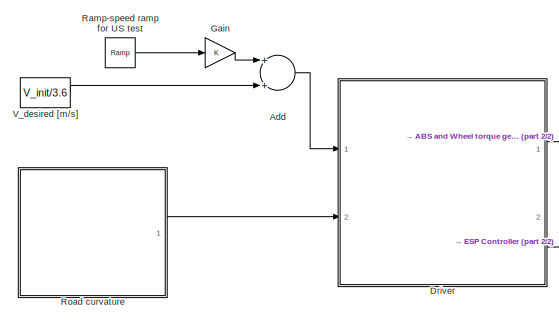
[diagram: root canvas - part 1/2, middle left region]
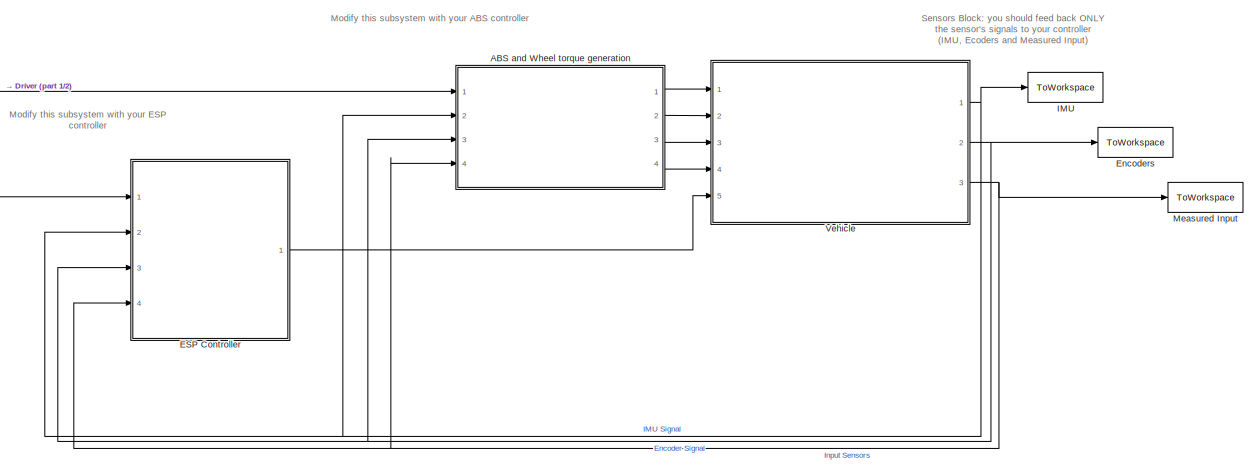
[diagram: root canvas - part 2/2, center side, full height]
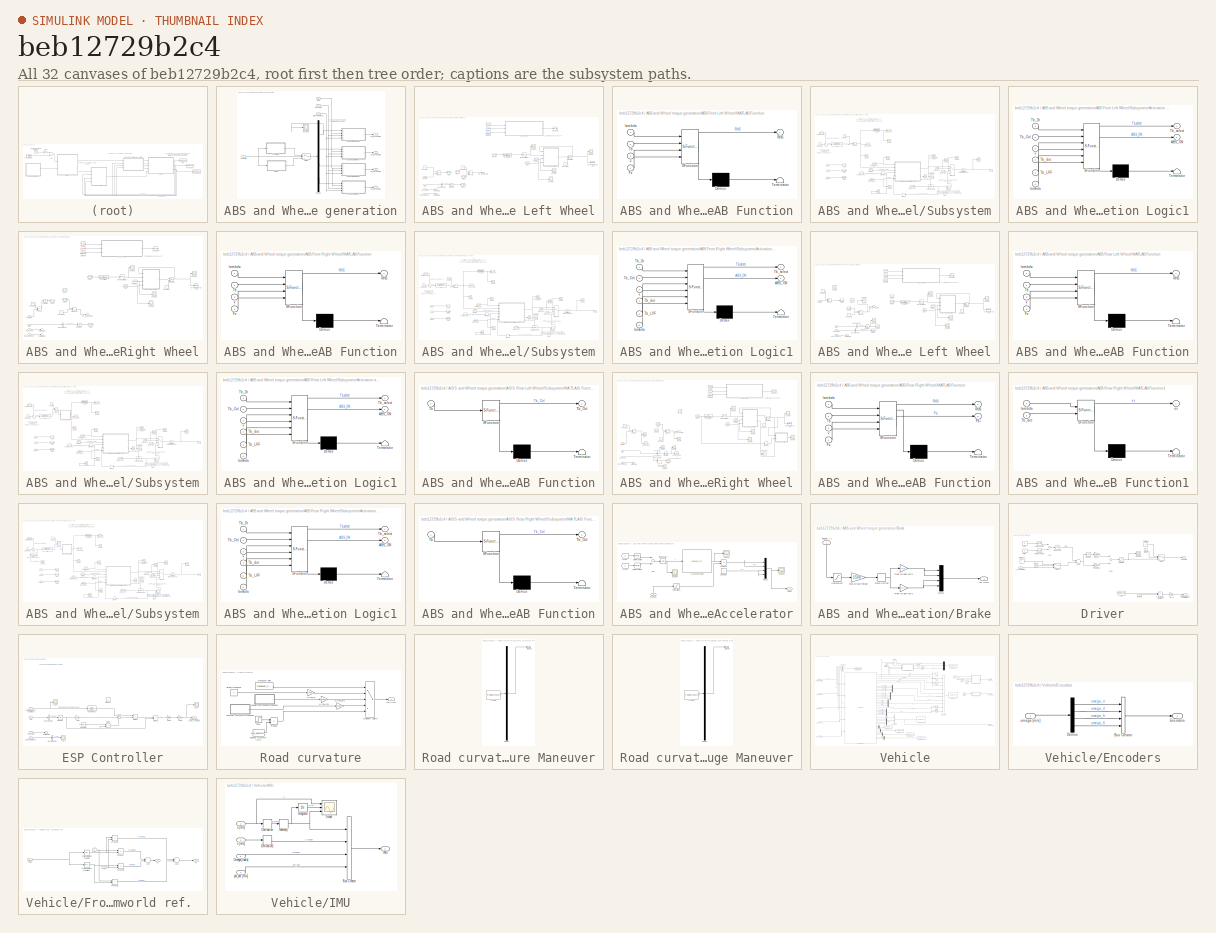
[diagram: thumbnail index - all 32 canvases of the model, root first then tree order]
MODEL slx_beb12729b2c4
KIND model
CONFIG AbsTol = auto
CONFIG EnableMultiTasking = off
CONFIG FixedStep = auto
CONFIG MaxStep = 0.1
CONFIG MinStep = auto
CONFIG RelTol = 1e-3
CONFIG SampleTimeConstraint = Unconstrained
CONFIG Solver = ode23s
CONFIG SolverName = ode23s
CONFIG StartTime = 0.0
CONFIG StopTime = t_f
BLOCK [SubSystem] ABS and Wheel torque generation
  Ports = [4, 4]
  RequestExecContextInheritance = off
BLOCK [SubSystem] ABS and Wheel torque generation/ABS Front Left Wheel
  Ports = [4, 1]
  RequestExecContextInheritance = off
BLOCK [BusSelector] ABS and Wheel torque generation/ABS Front Left Wheel/Bus Selector
  OutputAsBus = off
  OutputSignals = signal1
  Ports = [1, 1]
BLOCK [Constant] ABS and Wheel torque generation/ABS Front Left Wheel/Constant
  Value = -1
BLOCK [Constant] ABS and Wheel torque generation/ABS Front Left Wheel/Constant1
  Value = -1
BLOCK [Constant] ABS and Wheel torque generation/ABS Front Left Wheel/Constant2
  Value = 0
BLOCK [Inport] ABS and Wheel torque generation/ABS Front Left Wheel/Encoders
  IconDisplay = Port number
  Port = 3
BLOCK [From] ABS and Wheel torque generation/ABS Front Left Wheel/From
  GotoTag = Tw_Ctrl
BLOCK [From] ABS and Wheel torque generation/ABS Front Left Wheel/From IMU1
  GotoTag = V_long
BLOCK [From] ABS and Wheel torque generation/ABS Front Left Wheel/From1
  GotoTag = Tw_Ctrl
BLOCK [From] ABS and Wheel torque generation/ABS Front Left Wheel/From2
  GotoTag = Tb_Dr
BLOCK [Constant] ABS and Wheel torque generation/ABS Front Left Wheel/Fz
  Value = parametri_ABS.Fzf0
BLOCK [Goto] ABS and Wheel torque generation/ABS Front Left Wheel/GOTO OUT
  GotoTag = Tw_Ctrl
BLOCK [TransferFcn] ABS and Wheel torque generation/ABS Front Left Wheel/G_caliper
  Denominator = [1/parametri_ABS.omega_act 1]
BLOCK [Goto] ABS and Wheel torque generation/ABS Front Left Wheel/GoTo FEEBACK ABS 
  GotoTag = lambda
BLOCK [Goto] ABS and Wheel torque generation/ABS Front Left Wheel/Goto
  GotoTag = Tb_Dr
BLOCK [Goto] ABS and Wheel torque generation/ABS Front Left Wheel/Goto1
  GotoTag = V_long
BLOCK [Inport] ABS and Wheel torque generation/ABS Front Left Wheel/IMU
  IconDisplay = Port number
  Port = 2
BLOCK [Integrator] ABS and Wheel torque generation/ABS Front Left Wheel/Integrator
  InitialCondition = V_init
  Ports = [1, 1]
BLOCK [Integrator] ABS and Wheel torque generation/ABS Front Left Wheel/Integrator1
  InitialConditionSource = external
  Ports = [2, 1]
BLOCK [From] ABS and Wheel torque generation/ABS Front Left Wheel/Lambda
  GotoTag = lambda
BLOCK [SubSystem] ABS and Wheel torque generation/ABS Front Left Wheel/MATLAB Function
  ErrorFcn = Stateflow.Translate.translate
  PermitHierarchicalResolution = ExplicitOnly
  Ports = [4, 1]
  RequestExecContextInheritance = off
  SFBlockType = MATLAB Function
  TreatAsAtomicUnit = on
BLOCK [Demux] ABS and Wheel torque generation/ABS Front Left Wheel/MATLAB Function/ Demux 
  Outputs = 1
  Ports = [1, 1]
BLOCK [S-Function] ABS and Wheel torque generation/ABS Front Left Wheel/MATLAB Function/ SFunction 
  EnableBusSupport = on
  FunctionName = sf_sfun
  Parameters = vehicle_data
  PortCounts = [4 2]
  Ports = [4, 2]
  SFcnIsStateOwnerBlock = off
  SFunctionDeploymentMode = off
  Tag = Stateflow S-Function FullVehicleModel_ABS_ESP 7
BLOCK [Terminator] ABS and Wheel torque generation/ABS Front Left Wheel/MATLAB Function/ Terminator 
BLOCK [Inport] ABS and Wheel torque generation/ABS Front Left Wheel/MATLAB Function/Fz
  IconDisplay = Port number
  Port = 4
BLOCK [Outport] ABS and Wheel torque generation/ABS Front Left Wheel/MATLAB Function/RHS
  IconDisplay = Port number
BLOCK [Inport] ABS and Wheel torque generation/ABS Front Left Wheel/MATLAB Function/Tb
  IconDisplay = Port number
  Port = 2
BLOCK [Inport] ABS and Wheel torque generation/ABS Front Left Wheel/MATLAB Function/lambda
  IconDisplay = Port number
BLOCK [Inport] ABS and Wheel torque generation/ABS Front Left Wheel/MATLAB Function/v
  IconDisplay = Port number
  Port = 3
BLOCK [Inport] ABS and Wheel torque generation/ABS Front Left Wheel/Measured Input
  IconDisplay = Port number
  Port = 4
BLOCK [Product] ABS and Wheel torque generation/ABS Front Left Wheel/Product
  InputSameDT = off
  OutDataTypeStr = Inherit: Inherit via internal rule
  Ports = [2, 1]
  RndMeth = Floor
  SaturateOnIntegerOverflow = off
BLOCK [Product] ABS and Wheel torque generation/ABS Front Left Wheel/Product1
  InputSameDT = off
  OutDataTypeStr = Inherit: Inherit via internal rule
  Ports = [2, 1]
  RndMeth = Floor
  SaturateOnIntegerOverflow = off
BLOCK [Scope] ABS and Wheel torque generation/ABS Front Left Wheel/Scope2
  Floating = off
  NumInputPorts = 1
  Ports = [1]
  ScopeSpecificationString = Simulink.scopes.TimeScopeBlockCfg('CurrentConfiguration', extmgr.ConfigurationSet(extmgr.Configuration('Core','General UI',true),extmgr.Configuration('Core','Source UI',true),extmgr.Configuration('Sources','WiredSimulink',true,'DataLoggingVariableName','ScopeData1'),extmgr.Configuration('Visuals','Time Domain',true,'SerializedDisplays',{struct('MinYLimReal','-4.32219','MaxYLimReal','31.34444','YLa...<+1399ch>
BLOCK [Scope] ABS and Wheel torque generation/ABS Front Left Wheel/Scope5
  Floating = off
  NumInputPorts = 1
  Ports = [1]
  ScopeSpecificationString = Simulink.scopes.TimeScopeBlockCfg('CurrentConfiguration', extmgr.ConfigurationSet(extmgr.Configuration('Core','General UI',true),extmgr.Configuration('Core','Source UI',true),extmgr.Configuration('Sources','WiredSimulink',true,'DataLoggingVariableName','ScopeData2'),extmgr.Configuration('Visuals','Time Domain',true,'SerializedDisplays',{struct('MinYLimReal','348.875','MaxYLimReal','2348.875','YLab...<+1389ch>
BLOCK [Scope] ABS and Wheel torque generation/ABS Front Left Wheel/Scope6
  Floating = off
  NumInputPorts = 1
  Ports = [1]
  ScopeSpecificationString = Simulink.scopes.TimeScopeBlockCfg('CurrentConfiguration', extmgr.ConfigurationSet(extmgr.Configuration('Core','General UI',true),extmgr.Configuration('Core','Source UI',true),extmgr.Configuration('Sources','WiredSimulink',true,'DataLoggingVariableName','ScopeData3'),extmgr.Configuration('Visuals','Time Domain',true,'SerializedDisplays',{struct('MinYLimReal','-131.24992','MaxYLimReal','1181.24924',...<+1418ch>
BLOCK [Scope] ABS and Wheel torque generation/ABS Front Left Wheel/Scope7
  Floating = off
  NumInputPorts = 1
  Ports = [1]
  ScopeSpecificationString = Simulink.scopes.TimeScopeBlockCfg('CurrentConfiguration', extmgr.ConfigurationSet(extmgr.Configuration('Core','General UI',true),extmgr.Configuration('Core','Source UI',true),extmgr.Configuration('Sources','WiredSimulink',true,'DataLoggingVariableName','ScopeData4'),extmgr.Configuration('Visuals','Time Domain',true,'SerializedDisplays',{struct('MinYLimReal','-0.0106','MaxYLimReal','0.09537','YLabe...<+1394ch>
BLOCK [SubSystem] ABS and Wheel torque generation/ABS Front Left Wheel/Subsystem
  Ports = [3, 1]
  RequestExecContextInheritance = off
BLOCK [Scope] ABS and Wheel torque generation/ABS Front Left Wheel/Subsystem/ABS_ON_CHECK
  Floating = off
  NumInputPorts = 1
  Ports = [1]
  ScopeSpecificationString = Simulink.scopes.TimeScopeBlockCfg('CurrentConfiguration', extmgr.ConfigurationSet(extmgr.Configuration('Core','General UI',true),extmgr.Configuration('Core','Source UI',true),extmgr.Configuration('Sources','WiredSimulink',true,'DataLoggingVariableName','ScopeData1'),extmgr.Configuration('Visuals','Time Domain',true,'SerializedDisplays',{struct('MinYLimReal','-0.125','MaxYLimReal','1.125','YLabelRe...<+1414ch>  <repeated x3 — deduplicated; at blocks: ABS_ON_CHECK>
BLOCK [Scope] ABS and Wheel torque generation/ABS Front Left Wheel/Subsystem/ABS_Selection_Number 
  Floating = off
  NumInputPorts = 1
  Ports = [1]
  ScopeSpecificationString = Simulink.scopes.TimeScopeBlockCfg('CurrentConfiguration', extmgr.ConfigurationSet(extmgr.Configuration('Core','General UI',true),extmgr.Configuration('Core','Source UI',true),extmgr.Configuration('Sources','WiredSimulink',true,'DataLoggingVariableName','ScopeData2'),extmgr.Configuration('Visuals','Time Domain',true,'SerializedDisplays',{struct('MinYLimReal','0.875','MaxYLimReal','2.125','YLabelRea...<+1439ch>
BLOCK [SubSystem] ABS and Wheel torque generation/ABS Front Left Wheel/Subsystem/Activation and Deactivation Logic1
  ErrorFcn = Stateflow.Translate.translate
  PermitHierarchicalResolution = ExplicitOnly
  Ports = [6, 2]
  RequestExecContextInheritance = off
  SFBlockType = Chart
  TreatAsAtomicUnit = on
BLOCK [Demux] ABS and Wheel torque generation/ABS Front Left Wheel/Subsystem/Activation and Deactivation Logic1/ Demux 
  Outputs = 1
  Ports = [1, 1]
BLOCK [S-Function] ABS and Wheel torque generation/ABS Front Left Wheel/Subsystem/Activation and Deactivation Logic1/ SFunction 
  EnableBusSupport = on
  FunctionName = sf_sfun
  Parameters = Tb_dot_max,hv,lambda1_th,lambda2_th,rho_off,rho_on,v_on,v_stop
  PortCounts = [6 3]
  Ports = [6, 3]
  SFcnIsStateOwnerBlock = off
  SFunctionDeploymentMode = off
  Tag = Stateflow S-Function FullVehicleModel_ABS_ESP 8
BLOCK [Terminator] ABS and Wheel torque generation/ABS Front Left Wheel/Subsystem/Activation and Deactivation Logic1/ Terminator 
BLOCK [Outport] ABS and Wheel torque generation/ABS Front Left Wheel/Subsystem/Activation and Deactivation Logic1/ABS_ON
  IconDisplay = Port number
  Port = 2
BLOCK [Inport] ABS and Wheel torque generation/ABS Front Left Wheel/Subsystem/Activation and Deactivation Logic1/Tb_Ctrl
  IconDisplay = Port number
  Port = 2
BLOCK [Inport] ABS and Wheel torque generation/ABS Front Left Wheel/Subsystem/Activation and Deactivation Logic1/Tb_Dr
  IconDisplay = Port number
BLOCK [Inport] ABS and Wheel torque generation/ABS Front Left Wheel/Subsystem/Activation and Deactivation Logic1/Tb_LPF
  IconDisplay = Port number
  Port = 5
BLOCK [Inport] ABS and Wheel torque generation/ABS Front Left Wheel/Subsystem/Activation and Deactivation Logic1/Tb_dot
  IconDisplay = Port number
  Port = 4
BLOCK [Outport] ABS and Wheel torque generation/ABS Front Left Wheel/Subsystem/Activation and Deactivation Logic1/Tb_select
  IconDisplay = Port number
BLOCK [Inport] ABS and Wheel torque generation/ABS Front Left Wheel/Subsystem/Activation and Deactivation Logic1/lambda
  IconDisplay = Port number
  Port = 6
BLOCK [Inport] ABS and Wheel torque generation/ABS Front Left Wheel/Subsystem/Activation and Deactivation Logic1/v
  IconDisplay = Port number
  Port = 3
BLOCK [Reference] ABS and Wheel torque generation/ABS Front Left Wheel/Subsystem/Compare To Constant  REF=simulink/Logic and Bit
Operations/Compare
To Constant
  Ports = [1, 1]
  SourceBlock = simulink/Logic and Bit\nOperations/Compare\nTo Constant
  SourceProductBaseCode = SL
  SourceProductName = Simulink
  SourceType = Compare To Constant
BLOCK [Constant] ABS and Wheel torque generation/ABS Front Left Wheel/Subsystem/Constant
  Value = 1.2
BLOCK [Derivative] ABS and Wheel torque generation/ABS Front Left Wheel/Subsystem/Derivative1
BLOCK [From] ABS and Wheel torque generation/ABS Front Left Wheel/Subsystem/From IMU
  GotoTag = V_long
BLOCK [From] ABS and Wheel torque generation/ABS Front Left Wheel/Subsystem/From INPUT Tw_rr
  GotoTag = Tb_Dr
BLOCK [From] ABS and Wheel torque generation/ABS Front Left Wheel/Subsystem/From INPUT Tw_rr1
  GotoTag = Tb_Dr
BLOCK [From] ABS and Wheel torque generation/ABS Front Left Wheel/Subsystem/From Lambda
  GotoTag = lambda
BLOCK [From] ABS and Wheel torque generation/ABS Front Left Wheel/Subsystem/From Tb_Ctrl
  GotoTag = Tb_Ctrl
BLOCK [From] ABS and Wheel torque generation/ABS Front Left Wheel/Subsystem/From Tb_Dr
  GotoTag = Tb_Dr
BLOCK [From] ABS and Wheel torque generation/ABS Front Left Wheel/Subsystem/From Tb_LPF
  GotoTag = Tb_LPF
BLOCK [From] ABS and Wheel torque generation/ABS Front Left Wheel/Subsystem/From lambdaDyn
  GotoTag = lambda
BLOCK [Goto] ABS and Wheel torque generation/ABS Front Left Wheel/Subsystem/Go To TB_Ctrl
  GotoTag = Tb_Ctrl
BLOCK [Goto] ABS and Wheel torque generation/ABS Front Left Wheel/Subsystem/Go toTb_LPF
  GotoTag = Tb_LPF
BLOCK [Goto] ABS and Wheel torque generation/ABS Front Left Wheel/Subsystem/Goto
  GotoTag = Tb_Dr
BLOCK [Goto] ABS and Wheel torque generation/ABS Front Left Wheel/Subsystem/Goto1
  GotoTag = V_long
BLOCK [Goto] ABS and Wheel torque generation/ABS Front Left Wheel/Subsystem/Goto2
  GotoTag = lambda
BLOCK [TransferFcn] ABS and Wheel torque generation/ABS Front Left Wheel/Subsystem/LPF
  Denominator = [1 parametri_ABS.omega_LPF]
  Numerator = [parametri_ABS.omega_LPF]
BLOCK [Inport] ABS and Wheel torque generation/ABS Front Left Wheel/Subsystem/Lambda
  IconDisplay = Port number
  Port = 3
BLOCK [Constant] ABS and Wheel torque generation/ABS Front Left Wheel/Subsystem/Lambda REF
  Value = 0.05
BLOCK [Memory] ABS and Wheel torque generation/ABS Front Left Wheel/Subsystem/Memory
BLOCK [TransferFcn] ABS and Wheel torque generation/ABS Front Left Wheel/Subsystem/PID
  Denominator = [1/500 1 0]
  Numerator = 4000*[1/400 1/10  1]
BLOCK [Product] ABS and Wheel torque generation/ABS Front Left Wheel/Subsystem/Product
  InputSameDT = off
  OutDataTypeStr = Inherit: Inherit via internal rule
  Ports = [2, 1]
  RndMeth = Floor
  SaturateOnIntegerOverflow = off
BLOCK [Product] ABS and Wheel torque generation/ABS Front Left Wheel/Subsystem/Product1
  InputSameDT = off
  OutDataTypeStr = Inherit: Inherit via internal rule
  Ports = [2, 1]
  RndMeth = Floor
  SaturateOnIntegerOverflow = off
BLOCK [Reference] ABS and Wheel torque generation/ABS Front Left Wheel/Subsystem/Sample and Hold  REF=dspsigops/Sample
and Hold
  Ports = [1, 1, 0, 1]
  SourceBlock = dspsigops/Sample\nand Hold
  SourceProductBaseCode = DS
  SourceProductName = DSP System Toolbox
  SourceType = Sample and Hold
BLOCK [Saturate] ABS and Wheel torque generation/ABS Front Left Wheel/Subsystem/Saturation of Braking Torque Tb
  InputPortMap = u0
  LowerLimit = 0
  Ports = [1, 1]
  UpperLimit = 1500
BLOCK [Scope] ABS and Wheel torque generation/ABS Front Left Wheel/Subsystem/Scope
  Floating = off
  NumInputPorts = 1
  Ports = [1]
  ScopeSpecificationString = Simulink.scopes.TimeScopeBlockCfg('CurrentConfiguration', extmgr.ConfigurationSet(extmgr.Configuration('Core','General UI',true),extmgr.Configuration('Core','Source UI',true),extmgr.Configuration('Sources','WiredSimulink',true,'DataLoggingVariableName','ScopeData2'),extmgr.Configuration('Visuals','Time Domain',true,'SerializedDisplays',{struct('MinYLimReal','-56.25','MaxYLimReal','506.25','YLabelR...<+1382ch>
BLOCK [Scope] ABS and Wheel torque generation/ABS Front Left Wheel/Subsystem/Scope1
  Floating = off
  NumInputPorts = 1
  Ports = [1]
  ScopeSpecificationString = Simulink.scopes.TimeScopeBlockCfg('CurrentConfiguration', extmgr.ConfigurationSet(extmgr.Configuration('Core','General UI',true),extmgr.Configuration('Core','Source UI',true),extmgr.Configuration('Sources','WiredSimulink',true,'DataLoggingVariableName','ScopeData3'),extmgr.Configuration('Visuals','Time Domain',true,'SerializedDisplays',{struct('MinYLimReal','0','MaxYLimReal','1','YLabelReal','','M...<+1591ch>
BLOCK [Scope] ABS and Wheel torque generation/ABS Front Left Wheel/Subsystem/Scope2
  Floating = off
  NumInputPorts = 1
  Ports = [1]
  ScopeSpecificationString = Simulink.scopes.TimeScopeBlockCfg('CurrentConfiguration', extmgr.ConfigurationSet(extmgr.Configuration('Core','General UI',true),extmgr.Configuration('Core','Source UI',true),extmgr.Configuration('Sources','WiredSimulink',true,'DataLoggingVariableName','ScopeData8'),extmgr.Configuration('Visuals','Time Domain',true,'SerializedDisplays',{struct('MinYLimReal','-56.25','MaxYLimReal','506.25','YLabelR...<+1382ch>
BLOCK [Scope] ABS and Wheel torque generation/ABS Front Left Wheel/Subsystem/Scope3
  Floating = off
  NumInputPorts = 1
  Ports = [1]
  ScopeSpecificationString = Simulink.scopes.TimeScopeBlockCfg('CurrentConfiguration', extmgr.ConfigurationSet(extmgr.Configuration('Core','General UI',true),extmgr.Configuration('Core','Source UI',true),extmgr.Configuration('Sources','WiredSimulink',true,'DataLoggingVariableName','ScopeData9'),extmgr.Configuration('Visuals','Time Domain',true,'SerializedDisplays',{struct('MinYLimReal','-87.01342','MaxYLimReal','1127.60769','...<+1412ch>
BLOCK [Scope] ABS and Wheel torque generation/ABS Front Left Wheel/Subsystem/Scope4
  Floating = off
  NumInputPorts = 1
  Ports = [1]
  ScopeSpecificationString = Simulink.scopes.TimeScopeBlockCfg('CurrentConfiguration', extmgr.ConfigurationSet(extmgr.Configuration('Core','General UI',true),extmgr.Configuration('Core','Source UI',true),extmgr.Configuration('Sources','WiredSimulink',true,'DataLoggingVariableName','ScopeData10'),extmgr.Configuration('Visuals','Time Domain',true,'SerializedDisplays',{struct('MinYLimReal','-91.45883','MaxYLimReal','823.12945','...<+1482ch>
BLOCK [Scope] ABS and Wheel torque generation/ABS Front Left Wheel/Subsystem/Scope5
  Floating = off
  NumInputPorts = 1
  Ports = [1]
  ScopeSpecificationString = Simulink.scopes.TimeScopeBlockCfg('CurrentConfiguration', extmgr.ConfigurationSet(extmgr.Configuration('Core','General UI',true),extmgr.Configuration('Core','Source UI',true),extmgr.Configuration('Sources','WiredSimulink',true,'DataLoggingVariableName','ScopeData3'),extmgr.Configuration('Visuals','Time Domain',true,'SerializedDisplays',{struct('MinYLimReal','0','MaxYLimReal','10000','YLabelReal','...<+1575ch>  <repeated x4 — deduplicated; at blocks: Scope5>
BLOCK [Scope] ABS and Wheel torque generation/ABS Front Left Wheel/Subsystem/Scope6
  Floating = off
  NumInputPorts = 1
  Ports = [1]
  ScopeSpecificationString = Simulink.scopes.TimeScopeBlockCfg('CurrentConfiguration', extmgr.ConfigurationSet(extmgr.Configuration('Core','General UI',true),extmgr.Configuration('Core','Source UI',true),extmgr.Configuration('Sources','WiredSimulink',true,'DataLoggingVariableName','ScopeData4'),extmgr.Configuration('Visuals','Time Domain',true,'SerializedDisplays',{struct('MinYLimReal','-62.93084','MaxYLimReal','836.44571','Y...<+1431ch>
BLOCK [Scope] ABS and Wheel torque generation/ABS Front Left Wheel/Subsystem/Scope7
  Floating = off
  NumInputPorts = 1
  Ports = [1]
  ScopeSpecificationString = Simulink.scopes.TimeScopeBlockCfg('CurrentConfiguration', extmgr.ConfigurationSet(extmgr.Configuration('Core','General UI',true),extmgr.Configuration('Core','Source UI',true),extmgr.Configuration('Sources','WiredSimulink',true,'DataLoggingVariableName','ScopeData5'),extmgr.Configuration('Visuals','Time Domain',true,'SerializedDisplays',{struct('MinYLimReal','-125.06621','MaxYLimReal','1125.59587',...<+1406ch>
BLOCK [Sum] ABS and Wheel torque generation/ABS Front Left Wheel/Subsystem/Sum
  IconShape = round
  InputSameDT = off
  Inputs = -+|
  OutDataTypeStr = Inherit: Inherit via internal rule
  Ports = [2, 1]
  SaturateOnIntegerOverflow = off
BLOCK [MultiPortSwitch] ABS and Wheel torque generation/ABS Front Left Wheel/Subsystem/Switch of Tb
  InputSameDT = off
  Ports = [4, 1]
  SaturateOnIntegerOverflow = off
BLOCK [Inport] ABS and Wheel torque generation/ABS Front Left Wheel/Subsystem/Tb_dr
  IconDisplay = Port number
BLOCK [Outport] ABS and Wheel torque generation/ABS Front Left Wheel/Subsystem/Tw_Ctrl
  IconDisplay = Port number
BLOCK [Inport] ABS and Wheel torque generation/ABS Front Left Wheel/Subsystem/V_long 
  IconDisplay = Port number
  Port = 2
BLOCK [Constant] ABS and Wheel torque generation/ABS Front Left Wheel/Subsystem/rho
  Value = 0.97
BLOCK [From] ABS and Wheel torque generation/ABS Front Left Wheel/Tb_Dr
  GotoTag = Tb_Dr
BLOCK [Terminator] ABS and Wheel torque generation/ABS Front Left Wheel/Terminator1
BLOCK [Terminator] ABS and Wheel torque generation/ABS Front Left Wheel/Terminator2
BLOCK [TransportDelay] ABS and Wheel torque generation/ABS Front Left Wheel/Transport Delay
  BufferSize = 10000
  DelayTime = parametri_ABS.tau_delay
  Ports = [1, 1]
BLOCK [Inport] ABS and Wheel torque generation/ABS Front Left Wheel/Tw_fl [Nm]
  IconDisplay = Port number
BLOCK [Outport] ABS and Wheel torque generation/ABS Front Left Wheel/Tw_rr_CTRL [Nm]
  IconDisplay = Port number
BLOCK [From] ABS and Wheel torque generation/ABS Front Left Wheel/V_long
  GotoTag = V_long
BLOCK [SubSystem] ABS and Wheel torque generation/ABS Front Right Wheel
  Ports = [4, 1]
  RequestExecContextInheritance = off
BLOCK [BusSelector] ABS and Wheel torque generation/ABS Front Right Wheel/Bus Selector
  OutputAsBus = off
  OutputSignals = signal1
  Ports = [1, 1]
BLOCK [Constant] ABS and Wheel torque generation/ABS Front Right Wheel/Constant
  Value = 0
BLOCK [Constant] ABS and Wheel torque generation/ABS Front Right Wheel/Constant1
  Value = -1
BLOCK [Constant] ABS and Wheel torque generation/ABS Front Right Wheel/Constant2
  Value = -1
BLOCK [Inport] ABS and Wheel torque generation/ABS Front Right Wheel/Encoders
  IconDisplay = Port number
  Port = 3
BLOCK [From] ABS and Wheel torque generation/ABS Front Right Wheel/From
  GotoTag = Tw_Ctrl
BLOCK [From] ABS and Wheel torque generation/ABS Front Right Wheel/From IMU1
  GotoTag = V_long
BLOCK [From] ABS and Wheel torque generation/ABS Front Right Wheel/From1
  GotoTag = Tw_Ctrl
BLOCK [From] ABS and Wheel torque generation/ABS Front Right Wheel/From2
  GotoTag = Tb_Dr
BLOCK [Constant] ABS and Wheel torque generation/ABS Front Right Wheel/Fz
  Value = parametri_ABS.Fzf0
BLOCK [Goto] ABS and Wheel torque generation/ABS Front Right Wheel/GOTO OUT
  GotoTag = Tw_Ctrl
BLOCK [TransferFcn] ABS and Wheel torque generation/ABS Front Right Wheel/G_caliper
  Denominator = [1/parametri_ABS.omega_act 1]
BLOCK [Goto] ABS and Wheel torque generation/ABS Front Right Wheel/GoTo FEEBACK ABS 
  GotoTag = lambda
BLOCK [Goto] ABS and Wheel torque generation/ABS Front Right Wheel/Goto
  GotoTag = V_long
BLOCK [Goto] ABS and Wheel torque generation/ABS Front Right Wheel/Goto1
  GotoTag = Tb_Dr
BLOCK [Inport] ABS and Wheel torque generation/ABS Front Right Wheel/IMU
  IconDisplay = Port number
  Port = 2
BLOCK [Integrator] ABS and Wheel torque generation/ABS Front Right Wheel/Integrator
  InitialCondition = V_init/3.6
  Ports = [1, 1]
BLOCK [Integrator] ABS and Wheel torque generation/ABS Front Right Wheel/Integrator1
  InitialConditionSource = external
  Ports = [2, 1]
BLOCK [From] ABS and Wheel torque generation/ABS Front Right Wheel/Lambda
  GotoTag = lambda
BLOCK [SubSystem] ABS and Wheel torque generation/ABS Front Right Wheel/MATLAB Function
  ErrorFcn = Stateflow.Translate.translate
  PermitHierarchicalResolution = ExplicitOnly
  Ports = [4, 1]
  RequestExecContextInheritance = off
  SFBlockType = MATLAB Function
  TreatAsAtomicUnit = on
BLOCK [Demux] ABS and Wheel torque generation/ABS Front Right Wheel/MATLAB Function/ Demux 
  Outputs = 1
  Ports = [1, 1]
BLOCK [S-Function] ABS and Wheel torque generation/ABS Front Right Wheel/MATLAB Function/ SFunction 
  EnableBusSupport = on
  FunctionName = sf_sfun
  Parameters = vehicle_data
  PortCounts = [4 2]
  Ports = [4, 2]
  SFcnIsStateOwnerBlock = off
  SFunctionDeploymentMode = off
  Tag = Stateflow S-Function FullVehicleModel_ABS_ESP 4
BLOCK [Terminator] ABS and Wheel torque generation/ABS Front Right Wheel/MATLAB Function/ Terminator 
BLOCK [Inport] ABS and Wheel torque generation/ABS Front Right Wheel/MATLAB Function/Fz
  IconDisplay = Port number
  Port = 4
BLOCK [Outport] ABS and Wheel torque generation/ABS Front Right Wheel/MATLAB Function/RHS
  IconDisplay = Port number
BLOCK [Inport] ABS and Wheel torque generation/ABS Front Right Wheel/MATLAB Function/Tb
  IconDisplay = Port number
  Port = 2
BLOCK [Inport] ABS and Wheel torque generation/ABS Front Right Wheel/MATLAB Function/lambda
  IconDisplay = Port number
BLOCK [Inport] ABS and Wheel torque generation/ABS Front Right Wheel/MATLAB Function/v
  IconDisplay = Port number
  Port = 3
BLOCK [Inport] ABS and Wheel torque generation/ABS Front Right Wheel/Measured Input
  IconDisplay = Port number
  Port = 4
BLOCK [Product] ABS and Wheel torque generation/ABS Front Right Wheel/Product
  InputSameDT = off
  OutDataTypeStr = Inherit: Inherit via internal rule
  Ports = [2, 1]
  RndMeth = Floor
  SaturateOnIntegerOverflow = off
BLOCK [Product] ABS and Wheel torque generation/ABS Front Right Wheel/Product1
  InputSameDT = off
  OutDataTypeStr = Inherit: Inherit via internal rule
  Ports = [2, 1]
  RndMeth = Floor
  SaturateOnIntegerOverflow = off
BLOCK [Saturate] ABS and Wheel torque generation/ABS Front Right Wheel/Saturation
  InputPortMap = u0
  LowerLimit = 0
  Ports = [1, 1]
  UpperLimit = 1500
BLOCK [Scope] ABS and Wheel torque generation/ABS Front Right Wheel/Scope2
  Floating = off
  NumInputPorts = 1
  Ports = [1]
  ScopeSpecificationString = Simulink.scopes.TimeScopeBlockCfg('CurrentConfiguration', extmgr.ConfigurationSet(extmgr.Configuration('Core','General UI',true),extmgr.Configuration('Core','Source UI',true),extmgr.Configuration('Sources','WiredSimulink',true,'DataLoggingVariableName','ScopeData5'),extmgr.Configuration('Visuals','Time Domain',true,'SerializedDisplays',{struct('MinYLimReal','-4.32219','MaxYLimReal','31.34444','YLa...<+1399ch>
BLOCK [Scope] ABS and Wheel torque generation/ABS Front Right Wheel/Scope5
  Floating = off
  NumInputPorts = 1
  Ports = [1]
  ScopeSpecificationString = Simulink.scopes.TimeScopeBlockCfg('CurrentConfiguration', extmgr.ConfigurationSet(extmgr.Configuration('Core','General UI',true),extmgr.Configuration('Core','Source UI',true),extmgr.Configuration('Sources','WiredSimulink',true,'DataLoggingVariableName','ScopeData6'),extmgr.Configuration('Visuals','Time Domain',true,'SerializedDisplays',{struct('MinYLimReal','348.875','MaxYLimReal','2348.875','YLab...<+1389ch>
BLOCK [Scope] ABS and Wheel torque generation/ABS Front Right Wheel/Scope6
  Floating = off
  NumInputPorts = 1
  Ports = [1]
  ScopeSpecificationString = Simulink.scopes.TimeScopeBlockCfg('CurrentConfiguration', extmgr.ConfigurationSet(extmgr.Configuration('Core','General UI',true),extmgr.Configuration('Core','Source UI',true),extmgr.Configuration('Sources','WiredSimulink',true,'DataLoggingVariableName','ScopeData7'),extmgr.Configuration('Visuals','Time Domain',true,'SerializedDisplays',{struct('MinYLimReal','-131.24992','MaxYLimReal','1181.24924',...<+1418ch>
BLOCK [Scope] ABS and Wheel torque generation/ABS Front Right Wheel/Scope7
  Floating = off
  NumInputPorts = 1
  Ports = [1]
  ScopeSpecificationString = Simulink.scopes.TimeScopeBlockCfg('CurrentConfiguration', extmgr.ConfigurationSet(extmgr.Configuration('Core','General UI',true),extmgr.Configuration('Core','Source UI',true),extmgr.Configuration('Sources','WiredSimulink',true,'DataLoggingVariableName','ScopeData8'),extmgr.Configuration('Visuals','Time Domain',true,'SerializedDisplays',{struct('MinYLimReal','-0.01058','MaxYLimReal','0.09518','YLab...<+1396ch>
BLOCK [SubSystem] ABS and Wheel torque generation/ABS Front Right Wheel/Subsystem
  Ports = [3, 1]
  RequestExecContextInheritance = off
BLOCK [Scope] ABS and Wheel torque generation/ABS Front Right Wheel/Subsystem/ABS_ON_CHECK
  Floating = off
  NumInputPorts = 1
  Ports = [1]
BLOCK [Scope] ABS and Wheel torque generation/ABS Front Right Wheel/Subsystem/ABS_Selection_Number 
  Floating = off
  NumInputPorts = 1
  Ports = [1]
  ScopeSpecificationString = Simulink.scopes.TimeScopeBlockCfg('CurrentConfiguration', extmgr.ConfigurationSet(extmgr.Configuration('Core','General UI',true),extmgr.Configuration('Core','Source UI',true),extmgr.Configuration('Sources','WiredSimulink',true,'DataLoggingVariableName','ScopeData2'),extmgr.Configuration('Visuals','Time Domain',true,'SerializedDisplays',{struct('MinYLimReal','0.75','MaxYLimReal','3.25','YLabelReal'...<+1432ch>
BLOCK [SubSystem] ABS and Wheel torque generation/ABS Front Right Wheel/Subsystem/Activation and Deactivation Logic1
  ErrorFcn = Stateflow.Translate.translate
  PermitHierarchicalResolution = ExplicitOnly
  Ports = [6, 2]
  RequestExecContextInheritance = off
  SFBlockType = Chart
  TreatAsAtomicUnit = on
BLOCK [Demux] ABS and Wheel torque generation/ABS Front Right Wheel/Subsystem/Activation and Deactivation Logic1/ Demux 
  Outputs = 1
  Ports = [1, 1]
BLOCK [S-Function] ABS and Wheel torque generation/ABS Front Right Wheel/Subsystem/Activation and Deactivation Logic1/ SFunction 
  EnableBusSupport = on
  FunctionName = sf_sfun
  Parameters = Tb_dot_max,hv,lambda1_th,lambda2_th,rho_off,rho_on,v_on,v_stop
  PortCounts = [6 3]
  Ports = [6, 3]
  SFcnIsStateOwnerBlock = off
  SFunctionDeploymentMode = off
  Tag = Stateflow S-Function FullVehicleModel_ABS_ESP 5
BLOCK [Terminator] ABS and Wheel torque generation/ABS Front Right Wheel/Subsystem/Activation and Deactivation Logic1/ Terminator 
BLOCK [Outport] ABS and Wheel torque generation/ABS Front Right Wheel/Subsystem/Activation and Deactivation Logic1/ABS_ON
  IconDisplay = Port number
  Port = 2
BLOCK [Inport] ABS and Wheel torque generation/ABS Front Right Wheel/Subsystem/Activation and Deactivation Logic1/Tb_Ctrl
  IconDisplay = Port number
  Port = 2
BLOCK [Inport] ABS and Wheel torque generation/ABS Front Right Wheel/Subsystem/Activation and Deactivation Logic1/Tb_Dr
  IconDisplay = Port number
BLOCK [Inport] ABS and Wheel torque generation/ABS Front Right Wheel/Subsystem/Activation and Deactivation Logic1/Tb_LPF
  IconDisplay = Port number
  Port = 5
BLOCK [Inport] ABS and Wheel torque generation/ABS Front Right Wheel/Subsystem/Activation and Deactivation Logic1/Tb_dot
  IconDisplay = Port number
  Port = 4
BLOCK [Outport] ABS and Wheel torque generation/ABS Front Right Wheel/Subsystem/Activation and Deactivation Logic1/Tb_select
  IconDisplay = Port number
BLOCK [Inport] ABS and Wheel torque generation/ABS Front Right Wheel/Subsystem/Activation and Deactivation Logic1/lambda
  IconDisplay = Port number
  Port = 6
BLOCK [Inport] ABS and Wheel torque generation/ABS Front Right Wheel/Subsystem/Activation and Deactivation Logic1/v
  IconDisplay = Port number
  Port = 3
BLOCK [Reference] ABS and Wheel torque generation/ABS Front Right Wheel/Subsystem/Compare To Constant  REF=simulink/Logic and Bit
Operations/Compare
To Constant
  Ports = [1, 1]
  SourceBlock = simulink/Logic and Bit\nOperations/Compare\nTo Constant
  SourceProductBaseCode = SL
  SourceProductName = Simulink
  SourceType = Compare To Constant
BLOCK [Constant] ABS and Wheel torque generation/ABS Front Right Wheel/Subsystem/Constant
  Value = 1.2
BLOCK [Derivative] ABS and Wheel torque generation/ABS Front Right Wheel/Subsystem/Derivative1
BLOCK [From] ABS and Wheel torque generation/ABS Front Right Wheel/Subsystem/From IMU
  GotoTag = V_long
BLOCK [From] ABS and Wheel torque generation/ABS Front Right Wheel/Subsystem/From INPUT Tw_rr
  GotoTag = Tb_Dr
BLOCK [From] ABS and Wheel torque generation/ABS Front Right Wheel/Subsystem/From INPUT Tw_rr1
  GotoTag = Tb_Dr
BLOCK [From] ABS and Wheel torque generation/ABS Front Right Wheel/Subsystem/From Lambda
  GotoTag = lambda
BLOCK [From] ABS and Wheel torque generation/ABS Front Right Wheel/Subsystem/From Tb_Ctrl
  GotoTag = Tb_Ctrl
BLOCK [From] ABS and Wheel torque generation/ABS Front Right Wheel/Subsystem/From Tb_Dr
  GotoTag = Tb_Dr
BLOCK [From] ABS and Wheel torque generation/ABS Front Right Wheel/Subsystem/From Tb_LPF
  GotoTag = Tb_LPF
BLOCK [From] ABS and Wheel torque generation/ABS Front Right Wheel/Subsystem/From lambdaDyn
  GotoTag = lambda
BLOCK [Goto] ABS and Wheel torque generation/ABS Front Right Wheel/Subsystem/Go To TB_Ctrl
  GotoTag = Tb_Ctrl
BLOCK [Goto] ABS and Wheel torque generation/ABS Front Right Wheel/Subsystem/Go toTb_LPF
  GotoTag = Tb_LPF
BLOCK [Goto] ABS and Wheel torque generation/ABS Front Right Wheel/Subsystem/Goto
  GotoTag = Tb_Dr
BLOCK [Goto] ABS and Wheel torque generation/ABS Front Right Wheel/Subsystem/Goto1
  GotoTag = V_long
BLOCK [Goto] ABS and Wheel torque generation/ABS Front Right Wheel/Subsystem/Goto2
  GotoTag = lambda
BLOCK [TransferFcn] ABS and Wheel torque generation/ABS Front Right Wheel/Subsystem/LPF
  Denominator = [1 parametri_ABS.omega_LPF]
  Numerator = [parametri_ABS.omega_LPF]
BLOCK [Inport] ABS and Wheel torque generation/ABS Front Right Wheel/Subsystem/Lambda
  IconDisplay = Port number
  Port = 3
BLOCK [Constant] ABS and Wheel torque generation/ABS Front Right Wheel/Subsystem/Lambda REF
  Value = 0.05
BLOCK [Memory] ABS and Wheel torque generation/ABS Front Right Wheel/Subsystem/Memory
BLOCK [TransferFcn] ABS and Wheel torque generation/ABS Front Right Wheel/Subsystem/PID
  Denominator = [1/500 1 0]
  Numerator = 4000*[1/400 1/10  1]
BLOCK [Product] ABS and Wheel torque generation/ABS Front Right Wheel/Subsystem/Product
  InputSameDT = off
  OutDataTypeStr = Inherit: Inherit via internal rule
  Ports = [2, 1]
  RndMeth = Floor
  SaturateOnIntegerOverflow = off
BLOCK [Product] ABS and Wheel torque generation/ABS Front Right Wheel/Subsystem/Product1
  InputSameDT = off
  OutDataTypeStr = Inherit: Inherit via internal rule
  Ports = [2, 1]
  RndMeth = Floor
  SaturateOnIntegerOverflow = off
BLOCK [Reference] ABS and Wheel torque generation/ABS Front Right Wheel/Subsystem/Sample and Hold  REF=dspsigops/Sample
and Hold
  Ports = [1, 1, 0, 1]
  SourceBlock = dspsigops/Sample\nand Hold
  SourceProductBaseCode = DS
  SourceProductName = DSP System Toolbox
  SourceType = Sample and Hold
BLOCK [Saturate] ABS and Wheel torque generation/ABS Front Right Wheel/Subsystem/Saturation of Braking Torque Tb
  InputPortMap = u0
  LowerLimit = 0
  Ports = [1, 1]
  UpperLimit = 1500
BLOCK [Scope] ABS and Wheel torque generation/ABS Front Right Wheel/Subsystem/Scope
  Floating = off
  NumInputPorts = 1
  Ports = [1]
  ScopeSpecificationString = Simulink.scopes.TimeScopeBlockCfg('CurrentConfiguration', extmgr.ConfigurationSet(extmgr.Configuration('Core','General UI',true),extmgr.Configuration('Core','Source UI',true),extmgr.Configuration('Sources','WiredSimulink',true,'DataLoggingVariableName','ScopeData2'),extmgr.Configuration('Visuals','Time Domain',true,'SerializedDisplays',{struct('MinYLimReal','-131.25','MaxYLimReal','1181.25','YLabe...<+1390ch>
BLOCK [Scope] ABS and Wheel torque generation/ABS Front Right Wheel/Subsystem/Scope1
  Floating = off
  NumInputPorts = 1
  Ports = [1]
  ScopeSpecificationString = Simulink.scopes.TimeScopeBlockCfg('CurrentConfiguration', extmgr.ConfigurationSet(extmgr.Configuration('Core','General UI',true),extmgr.Configuration('Core','Source UI',true),extmgr.Configuration('Sources','WiredSimulink',true,'DataLoggingVariableName','ScopeData3'),extmgr.Configuration('Visuals','Time Domain',true,'SerializedDisplays',{struct('MinYLimReal','0','MaxYLimReal','1','YLabelReal','','M...<+1591ch>
BLOCK [Scope] ABS and Wheel torque generation/ABS Front Right Wheel/Subsystem/Scope2
  Floating = off
  NumInputPorts = 1
  Ports = [1]
  ScopeSpecificationString = Simulink.scopes.TimeScopeBlockCfg('CurrentConfiguration', extmgr.ConfigurationSet(extmgr.Configuration('Core','General UI',true),extmgr.Configuration('Core','Source UI',true),extmgr.Configuration('Sources','WiredSimulink',true,'DataLoggingVariableName','ScopeData8'),extmgr.Configuration('Visuals','Time Domain',true,'SerializedDisplays',{struct('MinYLimReal','-56.25','MaxYLimReal','506.25','YLabelR...<+1382ch>
BLOCK [Scope] ABS and Wheel torque generation/ABS Front Right Wheel/Subsystem/Scope3
  Floating = off
  NumInputPorts = 1
  Ports = [1]
  ScopeSpecificationString = Simulink.scopes.TimeScopeBlockCfg('CurrentConfiguration', extmgr.ConfigurationSet(extmgr.Configuration('Core','General UI',true),extmgr.Configuration('Core','Source UI',true),extmgr.Configuration('Sources','WiredSimulink',true,'DataLoggingVariableName','ScopeData9'),extmgr.Configuration('Visuals','Time Domain',true,'SerializedDisplays',{struct('MinYLimReal','-62.90732','MaxYLimReal','836.23408','Y...<+1403ch>
BLOCK [Scope] ABS and Wheel torque generation/ABS Front Right Wheel/Subsystem/Scope4
  Floating = off
  NumInputPorts = 1
  Ports = [1]
  ScopeSpecificationString = Simulink.scopes.TimeScopeBlockCfg('CurrentConfiguration', extmgr.ConfigurationSet(extmgr.Configuration('Core','General UI',true),extmgr.Configuration('Core','Source UI',true),extmgr.Configuration('Sources','WiredSimulink',true,'DataLoggingVariableName','ScopeData10'),extmgr.Configuration('Visuals','Time Domain',true,'SerializedDisplays',{struct('MinYLimReal','-131.25','MaxYLimReal','1181.25','YLab...<+1472ch>
BLOCK [Scope] ABS and Wheel torque generation/ABS Front Right Wheel/Subsystem/Scope5
  Floating = off
  NumInputPorts = 1
  Ports = [1]
BLOCK [Scope] ABS and Wheel torque generation/ABS Front Right Wheel/Subsystem/Scope6
  Floating = off
  NumInputPorts = 1
  Ports = [1]
  ScopeSpecificationString = Simulink.scopes.TimeScopeBlockCfg('CurrentConfiguration', extmgr.ConfigurationSet(extmgr.Configuration('Core','General UI',true),extmgr.Configuration('Core','Source UI',true),extmgr.Configuration('Sources','WiredSimulink',true,'DataLoggingVariableName','ScopeData4'),extmgr.Configuration('Visuals','Time Domain',true,'SerializedDisplays',{struct('MinYLimReal','-62.90732','MaxYLimReal','836.23408','Y...<+1457ch>
BLOCK [Scope] ABS and Wheel torque generation/ABS Front Right Wheel/Subsystem/Scope7
  Floating = off
  NumInputPorts = 1
  Ports = [1]
  ScopeSpecificationString = Simulink.scopes.TimeScopeBlockCfg('CurrentConfiguration', extmgr.ConfigurationSet(extmgr.Configuration('Core','General UI',true),extmgr.Configuration('Core','Source UI',true),extmgr.Configuration('Sources','WiredSimulink',true,'DataLoggingVariableName','ScopeData5'),extmgr.Configuration('Visuals','Time Domain',true,'SerializedDisplays',{struct('MinYLimReal','-125.06621','MaxYLimReal','1125.59587',...<+1406ch>
BLOCK [Sum] ABS and Wheel torque generation/ABS Front Right Wheel/Subsystem/Sum
  IconShape = round
  InputSameDT = off
  Inputs = -+|
  OutDataTypeStr = Inherit: Inherit via internal rule
  Ports = [2, 1]
  SaturateOnIntegerOverflow = off
BLOCK [MultiPortSwitch] ABS and Wheel torque generation/ABS Front Right Wheel/Subsystem/Switch of Tb
  InputSameDT = off
  Ports = [4, 1]
  SaturateOnIntegerOverflow = off
BLOCK [Inport] ABS and Wheel torque generation/ABS Front Right Wheel/Subsystem/Tb_dr
  IconDisplay = Port number
BLOCK [Outport] ABS and Wheel torque generation/ABS Front Right Wheel/Subsystem/Tw_Ctrl
  IconDisplay = Port number
BLOCK [Inport] ABS and Wheel torque generation/ABS Front Right Wheel/Subsystem/V_long 
  IconDisplay = Port number
  Port = 2
BLOCK [Constant] ABS and Wheel torque generation/ABS Front Right Wheel/Subsystem/rho
  Value = 0.97
BLOCK [From] ABS and Wheel torque generation/ABS Front Right Wheel/Tb_Dr
  GotoTag = Tb_Dr
BLOCK [Terminator] ABS and Wheel torque generation/ABS Front Right Wheel/Terminator1
BLOCK [Terminator] ABS and Wheel torque generation/ABS Front Right Wheel/Terminator2
BLOCK [TransportDelay] ABS and Wheel torque generation/ABS Front Right Wheel/Transport Delay
  BufferSize = 10000
  DelayTime = parametri_ABS.tau_delay
  Ports = [1, 1]
BLOCK [Inport] ABS and Wheel torque generation/ABS Front Right Wheel/Tw_fr [Nm]
  IconDisplay = Port number
BLOCK [Outport] ABS and Wheel torque generation/ABS Front Right Wheel/Tw_rr_CTRL [Nm]
  IconDisplay = Port number
BLOCK [From] ABS and Wheel torque generation/ABS Front Right Wheel/V_long
  GotoTag = V_long
BLOCK [SubSystem] ABS and Wheel torque generation/ABS Rear Left Wheel
  Ports = [4, 1]
  RequestExecContextInheritance = off
BLOCK [BusSelector] ABS and Wheel torque generation/ABS Rear Left Wheel/Bus Selector
  OutputAsBus = off
  OutputSignals = signal1
  Ports = [1, 1]
BLOCK [BusSelector] ABS and Wheel torque generation/ABS Rear Left Wheel/Bus Selector1
  OutputAsBus = off
  OutputSignals = omega_rl
  Ports = [1, 1]
BLOCK [Constant] ABS and Wheel torque generation/ABS Rear Left Wheel/Constant
  Value = 0
BLOCK [Constant] ABS and Wheel torque generation/ABS Rear Left Wheel/Constant1
  Value = -1
BLOCK [Constant] ABS and Wheel torque generation/ABS Rear Left Wheel/Constant2
  Value = -1
BLOCK [Inport] ABS and Wheel torque generation/ABS Rear Left Wheel/Encoders
  IconDisplay = Port number
  Port = 3
BLOCK [From] ABS and Wheel torque generation/ABS Rear Left Wheel/From
  GotoTag = Tb_Dr
BLOCK [From] ABS and Wheel torque generation/ABS Rear Left Wheel/From IMU1
  GotoTag = V_long
BLOCK [From] ABS and Wheel torque generation/ABS Rear Left Wheel/From1
  GotoTag = Tw_Ctrl
BLOCK [From] ABS and Wheel torque generation/ABS Rear Left Wheel/From2
  GotoTag = Tb_Dr
BLOCK [Constant] ABS and Wheel torque generation/ABS Rear Left Wheel/Fz
  Value = parametri_ABS.Fzr0
BLOCK [Goto] ABS and Wheel torque generation/ABS Rear Left Wheel/GOTO OUT
  GotoTag = Tw_Ctrl
BLOCK [TransferFcn] ABS and Wheel torque generation/ABS Rear Left Wheel/G_caliper
  Denominator = [1/parametri_ABS.omega_act 1]
BLOCK [Goto] ABS and Wheel torque generation/ABS Rear Left Wheel/GoTo FEEBACK ABS 
  GotoTag = lambda
BLOCK [Goto] ABS and Wheel torque generation/ABS Rear Left Wheel/Goto
  GotoTag = Tb_Dr
BLOCK [Goto] ABS and Wheel torque generation/ABS Rear Left Wheel/Goto1
  GotoTag = V_long
BLOCK [Goto] ABS and Wheel torque generation/ABS Rear Left Wheel/Goto2
  GotoTag = omega_rl
BLOCK [Inport] ABS and Wheel torque generation/ABS Rear Left Wheel/IMU
  IconDisplay = Port number
  Port = 2
BLOCK [Integrator] ABS and Wheel torque generation/ABS Rear Left Wheel/Integrator
  InitialCondition = V_init/3.6
  Ports = [1, 1]
BLOCK [Integrator] ABS and Wheel torque generation/ABS Rear Left Wheel/Integrator1
  InitialConditionSource = external
  Ports = [2, 1]
BLOCK [From] ABS and Wheel torque generation/ABS Rear Left Wheel/Lambda
  GotoTag = lambda
BLOCK [SubSystem] ABS and Wheel torque generation/ABS Rear Left Wheel/MATLAB Function
  ErrorFcn = Stateflow.Translate.translate
  PermitHierarchicalResolution = ExplicitOnly
  Ports = [4, 1]
  RequestExecContextInheritance = off
  SFBlockType = MATLAB Function
  TreatAsAtomicUnit = on
BLOCK [Demux] ABS and Wheel torque generation/ABS Rear Left Wheel/MATLAB Function/ Demux 
  Outputs = 1
  Ports = [1, 1]
BLOCK [S-Function] ABS and Wheel torque generation/ABS Rear Left Wheel/MATLAB Function/ SFunction 
  EnableBusSupport = on
  FunctionName = sf_sfun
  Parameters = vehicle_data
  PortCounts = [4 2]
  Ports = [4, 2]
  SFcnIsStateOwnerBlock = off
  SFunctionDeploymentMode = off
  Tag = Stateflow S-Function FullVehicleModel_ABS_ESP 1
BLOCK [Terminator] ABS and Wheel torque generation/ABS Rear Left Wheel/MATLAB Function/ Terminator 
BLOCK [Inport] ABS and Wheel torque generation/ABS Rear Left Wheel/MATLAB Function/Fz
  IconDisplay = Port number
  Port = 4
BLOCK [Outport] ABS and Wheel torque generation/ABS Rear Left Wheel/MATLAB Function/RHS
  IconDisplay = Port number
BLOCK [Inport] ABS and Wheel torque generation/ABS Rear Left Wheel/MATLAB Function/Tb
  IconDisplay = Port number
  Port = 2
BLOCK [Inport] ABS and Wheel torque generation/ABS Rear Left Wheel/MATLAB Function/lambda
  IconDisplay = Port number
BLOCK [Inport] ABS and Wheel torque generation/ABS Rear Left Wheel/MATLAB Function/v
  IconDisplay = Port number
  Port = 3
BLOCK [Inport] ABS and Wheel torque generation/ABS Rear Left Wheel/Measured Input
  IconDisplay = Port number
  Port = 4
BLOCK [Product] ABS and Wheel torque generation/ABS Rear Left Wheel/Product
  InputSameDT = off
  OutDataTypeStr = Inherit: Inherit via internal rule
  Ports = [2, 1]
  RndMeth = Floor
  SaturateOnIntegerOverflow = off
BLOCK [Product] ABS and Wheel torque generation/ABS Rear Left Wheel/Product1
  InputSameDT = off
  OutDataTypeStr = Inherit: Inherit via internal rule
  Ports = [2, 1]
  RndMeth = Floor
  SaturateOnIntegerOverflow = off
BLOCK [Scope] ABS and Wheel torque generation/ABS Rear Left Wheel/Scope1
  Floating = off
  NumInputPorts = 1
  Ports = [1]
  ScopeSpecificationString = Simulink.scopes.TimeScopeBlockCfg('CurrentConfiguration', extmgr.ConfigurationSet(extmgr.Configuration('Core','General UI',true),extmgr.Configuration('Core','Source UI',true),extmgr.Configuration('Sources','WiredSimulink',true,'DataLoggingVariableName','ScopeData5'),extmgr.Configuration('Visuals','Time Domain',true,'SerializedDisplays',{struct('MinYLimReal','-1198.37397','MaxYLimReal','285.36573',...<+1413ch>
BLOCK [Scope] ABS and Wheel torque generation/ABS Rear Left Wheel/Scope2
  Floating = off
  NumInputPorts = 1
  Ports = [1]
  ScopeSpecificationString = Simulink.scopes.TimeScopeBlockCfg('CurrentConfiguration', extmgr.ConfigurationSet(extmgr.Configuration('Core','General UI',true),extmgr.Configuration('Core','Source UI',true),extmgr.Configuration('Sources','WiredSimulink',true,'DataLoggingVariableName','ScopeData1'),extmgr.Configuration('Visuals','Time Domain',true,'SerializedDisplays',{struct('MinYLimReal','-4.32219','MaxYLimReal','31.34444','YLa...<+1399ch>
BLOCK [Scope] ABS and Wheel torque generation/ABS Rear Left Wheel/Scope3
  Floating = off
  NumInputPorts = 1
  Ports = [1]
  ScopeSpecificationString = Simulink.scopes.TimeScopeBlockCfg('CurrentConfiguration', extmgr.ConfigurationSet(extmgr.Configuration('Core','General UI',true),extmgr.Configuration('Core','Source UI',true),extmgr.Configuration('Sources','WiredSimulink',true,'DataLoggingVariableName','ScopeData6'),extmgr.Configuration('Visuals','Time Domain',true,'SerializedDisplays',{struct('MinYLimReal','-131.25','MaxYLimReal','1181.25','YLabe...<+1396ch>
BLOCK [Scope] ABS and Wheel torque generation/ABS Rear Left Wheel/Scope4
  Floating = off
  NumInputPorts = 1
  Ports = [1]
  ScopeSpecificationString = Simulink.scopes.TimeScopeBlockCfg('CurrentConfiguration', extmgr.ConfigurationSet(extmgr.Configuration('Core','General UI',true),extmgr.Configuration('Core','Source UI',true),extmgr.Configuration('Sources','WiredSimulink',true,'DataLoggingVariableName','ScopeData7'),extmgr.Configuration('Visuals','Time Domain',true,'SerializedDisplays',{struct('MinYLimReal','-52.29416','MaxYLimReal','36.8423','YLa...<+1399ch>
BLOCK [Scope] ABS and Wheel torque generation/ABS Rear Left Wheel/Scope5
  Floating = off
  NumInputPorts = 1
  Ports = [1]
  ScopeSpecificationString = Simulink.scopes.TimeScopeBlockCfg('CurrentConfiguration', extmgr.ConfigurationSet(extmgr.Configuration('Core','General UI',true),extmgr.Configuration('Core','Source UI',true),extmgr.Configuration('Sources','WiredSimulink',true,'DataLoggingVariableName','ScopeData2'),extmgr.Configuration('Visuals','Time Domain',true,'SerializedDisplays',{struct('MinYLimReal','1158.2','MaxYLimReal','3158.2','YLabelR...<+1377ch>
BLOCK [Scope] ABS and Wheel torque generation/ABS Rear Left Wheel/Scope6
  Floating = off
  NumInputPorts = 1
  Ports = [1]
  ScopeSpecificationString = Simulink.scopes.TimeScopeBlockCfg('CurrentConfiguration', extmgr.ConfigurationSet(extmgr.Configuration('Core','General UI',true),extmgr.Configuration('Core','Source UI',true),extmgr.Configuration('Sources','WiredSimulink',true,'DataLoggingVariableName','ScopeData3'),extmgr.Configuration('Visuals','Time Domain',true,'SerializedDisplays',{struct('MinYLimReal','-285.22662','MaxYLimReal','1198.35851',...<+1418ch>
BLOCK [Scope] ABS and Wheel torque generation/ABS Rear Left Wheel/Scope7
  Floating = off
  NumInputPorts = 1
  Ports = [1]
  ScopeSpecificationString = Simulink.scopes.TimeScopeBlockCfg('CurrentConfiguration', extmgr.ConfigurationSet(extmgr.Configuration('Core','General UI',true),extmgr.Configuration('Core','Source UI',true),extmgr.Configuration('Sources','WiredSimulink',true,'DataLoggingVariableName','ScopeData4'),extmgr.Configuration('Visuals','Time Domain',true,'SerializedDisplays',{struct('MinYLimReal','-0.01387','MaxYLimReal','0.06535','YLab...<+1396ch>
BLOCK [SubSystem] ABS and Wheel torque generation/ABS Rear Left Wheel/Subsystem
  Ports = [3, 1]
  RequestExecContextInheritance = off
BLOCK [Scope] ABS and Wheel torque generation/ABS Rear Left Wheel/Subsystem/ABS_ON_CHECK
  Floating = off
  NumInputPorts = 1
  Ports = [1]
BLOCK [Scope] ABS and Wheel torque generation/ABS Rear Left Wheel/Subsystem/ABS_Selection_Number 
  Floating = off
  NumInputPorts = 1
  Ports = [1]
  ScopeSpecificationString = Simulink.scopes.TimeScopeBlockCfg('CurrentConfiguration', extmgr.ConfigurationSet(extmgr.Configuration('Core','General UI',true),extmgr.Configuration('Core','Source UI',true),extmgr.Configuration('Sources','WiredSimulink',true,'DataLoggingVariableName','ScopeData2'),extmgr.Configuration('Visuals','Time Domain',true,'SerializedDisplays',{struct('MinYLimReal','0.9','MaxYLimReal','1.1','YLabelReal','...<+1424ch>
BLOCK [SubSystem] ABS and Wheel torque generation/ABS Rear Left Wheel/Subsystem/Activation and Deactivation Logic1
  ErrorFcn = Stateflow.Translate.translate
  PermitHierarchicalResolution = ExplicitOnly
  Ports = [6, 2]
  RequestExecContextInheritance = off
  SFBlockType = Chart
  TreatAsAtomicUnit = on
BLOCK [Demux] ABS and Wheel torque generation/ABS Rear Left Wheel/Subsystem/Activation and Deactivation Logic1/ Demux 
  Outputs = 1
  Ports = [1, 1]
BLOCK [S-Function] ABS and Wheel torque generation/ABS Rear Left Wheel/Subsystem/Activation and Deactivation Logic1/ SFunction 
  EnableBusSupport = on
  FunctionName = sf_sfun
  Parameters = Tb_dot_max,hv,lambda1_th,lambda2_th,rho_off,rho_on,v_on,v_stop
  PortCounts = [6 3]
  Ports = [6, 3]
  SFcnIsStateOwnerBlock = off
  SFunctionDeploymentMode = off
  Tag = Stateflow S-Function FullVehicleModel_ABS_ESP 3
BLOCK [Terminator] ABS and Wheel torque generation/ABS Rear Left Wheel/Subsystem/Activation and Deactivation Logic1/ Terminator 
BLOCK [Outport] ABS and Wheel torque generation/ABS Rear Left Wheel/Subsystem/Activation and Deactivation Logic1/ABS_ON
  IconDisplay = Port number
  Port = 2
BLOCK [Inport] ABS and Wheel torque generation/ABS Rear Left Wheel/Subsystem/Activation and Deactivation Logic1/Tb_Ctrl
  IconDisplay = Port number
  Port = 2
BLOCK [Inport] ABS and Wheel torque generation/ABS Rear Left Wheel/Subsystem/Activation and Deactivation Logic1/Tb_Dr
  IconDisplay = Port number
BLOCK [Inport] ABS and Wheel torque generation/ABS Rear Left Wheel/Subsystem/Activation and Deactivation Logic1/Tb_LPF
  IconDisplay = Port number
  Port = 5
BLOCK [Inport] ABS and Wheel torque generation/ABS Rear Left Wheel/Subsystem/Activation and Deactivation Logic1/Tb_dot
  IconDisplay = Port number
  Port = 4
BLOCK [Outport] ABS and Wheel torque generation/ABS Rear Left Wheel/Subsystem/Activation and Deactivation Logic1/Tb_select
  IconDisplay = Port number
BLOCK [Inport] ABS and Wheel torque generation/ABS Rear Left Wheel/Subsystem/Activation and Deactivation Logic1/lambda
  IconDisplay = Port number
  Port = 6
BLOCK [Inport] ABS and Wheel torque generation/ABS Rear Left Wheel/Subsystem/Activation and Deactivation Logic1/v
  IconDisplay = Port number
  Port = 3
BLOCK [Reference] ABS and Wheel torque generation/ABS Rear Left Wheel/Subsystem/Compare To Constant  REF=simulink/Logic and Bit
Operations/Compare
To Constant
  Ports = [1, 1]
  SourceBlock = simulink/Logic and Bit\nOperations/Compare\nTo Constant
  SourceProductBaseCode = SL
  SourceProductName = Simulink
  SourceType = Compare To Constant
BLOCK [Constant] ABS and Wheel torque generation/ABS Rear Left Wheel/Subsystem/Constant
  Value = 1.3
BLOCK [Derivative] ABS and Wheel torque generation/ABS Rear Left Wheel/Subsystem/Derivative1
BLOCK [From] ABS and Wheel torque generation/ABS Rear Left Wheel/Subsystem/From IMU
  GotoTag = V_long
BLOCK [From] ABS and Wheel torque generation/ABS Rear Left Wheel/Subsystem/From INPUT Tw_rr
  GotoTag = Tb_Dr
BLOCK [From] ABS and Wheel torque generation/ABS Rear Left Wheel/Subsystem/From INPUT Tw_rr1
  GotoTag = Tb_Dr
BLOCK [From] ABS and Wheel torque generation/ABS Rear Left Wheel/Subsystem/From Lambda
  GotoTag = lambda
BLOCK [From] ABS and Wheel torque generation/ABS Rear Left Wheel/Subsystem/From Tb_Ctrl
  GotoTag = Tb_Ctrl
BLOCK [From] ABS and Wheel torque generation/ABS Rear Left Wheel/Subsystem/From Tb_Dr
  GotoTag = Tb_Dr
BLOCK [From] ABS and Wheel torque generation/ABS Rear Left Wheel/Subsystem/From Tb_LPF
  GotoTag = Tb_LPF
BLOCK [From] ABS and Wheel torque generation/ABS Rear Left Wheel/Subsystem/From lambdaDyn
  GotoTag = lambda
BLOCK [Goto] ABS and Wheel torque generation/ABS Rear Left Wheel/Subsystem/Go To TB_Ctrl
  GotoTag = Tb_Ctrl
BLOCK [Goto] ABS and Wheel torque generation/ABS Rear Left Wheel/Subsystem/Go toTb_LPF
  GotoTag = Tb_LPF
BLOCK [Goto] ABS and Wheel torque generation/ABS Rear Left Wheel/Subsystem/Goto
  GotoTag = Tb_Dr
BLOCK [Goto] ABS and Wheel torque generation/ABS Rear Left Wheel/Subsystem/Goto1
  GotoTag = V_long
BLOCK [Goto] ABS and Wheel torque generation/ABS Rear Left Wheel/Subsystem/Goto2
  GotoTag = lambda
BLOCK [TransferFcn] ABS and Wheel torque generation/ABS Rear Left Wheel/Subsystem/LPF
  Denominator = [1 parametri_ABS.omega_LPF]
  Numerator = [parametri_ABS.omega_LPF]
BLOCK [Inport] ABS and Wheel torque generation/ABS Rear Left Wheel/Subsystem/Lambda
  IconDisplay = Port number
  Port = 3
BLOCK [Constant] ABS and Wheel torque generation/ABS Rear Left Wheel/Subsystem/Lambda REF
  Value = 0.05
BLOCK [SubSystem] ABS and Wheel torque generation/ABS Rear Left Wheel/Subsystem/MATLAB Function
  ErrorFcn = Stateflow.Translate.translate
  PermitHierarchicalResolution = ExplicitOnly
  Ports = [1, 1]
  RequestExecContextInheritance = off
  SFBlockType = MATLAB Function
  TreatAsAtomicUnit = on
BLOCK [Demux] ABS and Wheel torque generation/ABS Rear Left Wheel/Subsystem/MATLAB Function/ Demux 
  Outputs = 1
  Ports = [1, 1]
BLOCK [S-Function] ABS and Wheel torque generation/ABS Rear Left Wheel/Subsystem/MATLAB Function/ SFunction 
  EnableBusSupport = on
  FunctionName = sf_sfun
  Parameters = t_brake
  PortCounts = [1 2]
  Ports = [1, 2]
  SFcnIsStateOwnerBlock = off
  SFunctionDeploymentMode = off
  Tag = Stateflow S-Function FullVehicleModel_ABS_ESP 9
BLOCK [Terminator] ABS and Wheel torque generation/ABS Rear Left Wheel/Subsystem/MATLAB Function/ Terminator 
BLOCK [Inport] ABS and Wheel torque generation/ABS Rear Left Wheel/Subsystem/MATLAB Function/Tb
  IconDisplay = Port number
BLOCK [Outport] ABS and Wheel torque generation/ABS Rear Left Wheel/Subsystem/MATLAB Function/Tb_Ctrl
  IconDisplay = Port number
BLOCK [Memory] ABS and Wheel torque generation/ABS Rear Left Wheel/Subsystem/Memory
BLOCK [TransferFcn] ABS and Wheel torque generation/ABS Rear Left Wheel/Subsystem/PID
  Denominator = [1/500 1 0]
  Numerator = 4000*[1/400 1/10  1]
BLOCK [Product] ABS and Wheel torque generation/ABS Rear Left Wheel/Subsystem/Product
  InputSameDT = off
  OutDataTypeStr = Inherit: Inherit via internal rule
  Ports = [2, 1]
  RndMeth = Floor
  SaturateOnIntegerOverflow = off
BLOCK [Product] ABS and Wheel torque generation/ABS Rear Left Wheel/Subsystem/Product1
  InputSameDT = off
  OutDataTypeStr = Inherit: Inherit via internal rule
  Ports = [2, 1]
  RndMeth = Floor
  SaturateOnIntegerOverflow = off
BLOCK [Reference] ABS and Wheel torque generation/ABS Rear Left Wheel/Subsystem/Sample and Hold  REF=dspsigops/Sample
and Hold
  Ports = [1, 1, 0, 1]
  SourceBlock = dspsigops/Sample\nand Hold
  SourceProductBaseCode = DS
  SourceProductName = DSP System Toolbox
  SourceType = Sample and Hold
BLOCK [Saturate] ABS and Wheel torque generation/ABS Rear Left Wheel/Subsystem/Saturation of Braking Torque Tb
  InputPortMap = u0
  LowerLimit = -10000
  Ports = [1, 1]
  UpperLimit = 1500
BLOCK [Scope] ABS and Wheel torque generation/ABS Rear Left Wheel/Subsystem/Scope
  Floating = off
  NumInputPorts = 1
  Ports = [1]
  ScopeSpecificationString = Simulink.scopes.TimeScopeBlockCfg('CurrentConfiguration', extmgr.ConfigurationSet(extmgr.Configuration('Core','General UI',true),extmgr.Configuration('Core','Source UI',true),extmgr.Configuration('Sources','WiredSimulink',true,'DataLoggingVariableName','ScopeData2'),extmgr.Configuration('Visuals','Time Domain',true,'SerializedDisplays',{struct('MinYLimReal','-131.25','MaxYLimReal','1181.25','YLabe...<+1390ch>
BLOCK [Scope] ABS and Wheel torque generation/ABS Rear Left Wheel/Subsystem/Scope1
  Floating = off
  NumInputPorts = 1
  Ports = [1]
  ScopeSpecificationString = Simulink.scopes.TimeScopeBlockCfg('CurrentConfiguration', extmgr.ConfigurationSet(extmgr.Configuration('Core','General UI',true),extmgr.Configuration('Core','Source UI',true),extmgr.Configuration('Sources','WiredSimulink',true,'DataLoggingVariableName','ScopeData3'),extmgr.Configuration('Visuals','Time Domain',true,'SerializedDisplays',{struct('MinYLimReal','-0.00201','MaxYLimReal','0.06823','YLab...<+1616ch>
BLOCK [Scope] ABS and Wheel torque generation/ABS Rear Left Wheel/Subsystem/Scope2
  Floating = off
  NumInputPorts = 1
  Ports = [1]
  ScopeSpecificationString = Simulink.scopes.TimeScopeBlockCfg('CurrentConfiguration', extmgr.ConfigurationSet(extmgr.Configuration('Core','General UI',true),extmgr.Configuration('Core','Source UI',true),extmgr.Configuration('Sources','WiredSimulink',true,'DataLoggingVariableName','ScopeData8'),extmgr.Configuration('Visuals','Time Domain',true,'SerializedDisplays',{struct('MinYLimReal','-131.25','MaxYLimReal','1181.25','YLabe...<+1390ch>
BLOCK [Scope] ABS and Wheel torque generation/ABS Rear Left Wheel/Subsystem/Scope3
  Floating = off
  NumInputPorts = 1
  Ports = [1]
  ScopeSpecificationString = Simulink.scopes.TimeScopeBlockCfg('CurrentConfiguration', extmgr.ConfigurationSet(extmgr.Configuration('Core','General UI',true),extmgr.Configuration('Core','Source UI',true),extmgr.Configuration('Sources','WiredSimulink',true,'DataLoggingVariableName','ScopeData9'),extmgr.Configuration('Visuals','Time Domain',true,'SerializedDisplays',{struct('MinYLimReal','-89.9802','MaxYLimReal','986.09572','YL...<+1401ch>
BLOCK [Scope] ABS and Wheel torque generation/ABS Rear Left Wheel/Subsystem/Scope4
  Floating = off
  NumInputPorts = 1
  Ports = [1]
  ScopeSpecificationString = Simulink.scopes.TimeScopeBlockCfg('CurrentConfiguration', extmgr.ConfigurationSet(extmgr.Configuration('Core','General UI',true),extmgr.Configuration('Core','Source UI',true),extmgr.Configuration('Sources','WiredSimulink',true,'DataLoggingVariableName','ScopeData10'),extmgr.Configuration('Visuals','Time Domain',true,'SerializedDisplays',{struct('MinYLimReal','-96.08556','MaxYLimReal','510.67617','...<+1455ch>
BLOCK [Scope] ABS and Wheel torque generation/ABS Rear Left Wheel/Subsystem/Scope5
  Floating = off
  NumInputPorts = 1
  Ports = [1]
BLOCK [Scope] ABS and Wheel torque generation/ABS Rear Left Wheel/Subsystem/Scope6
  Floating = off
  NumInputPorts = 1
  Ports = [1]
  ScopeSpecificationString = Simulink.scopes.TimeScopeBlockCfg('CurrentConfiguration', extmgr.ConfigurationSet(extmgr.Configuration('Core','General UI',true),extmgr.Configuration('Core','Source UI',true),extmgr.Configuration('Sources','WiredSimulink',true,'DataLoggingVariableName','ScopeData4'),extmgr.Configuration('Visuals','Time Domain',true,'SerializedDisplays',{struct('MinYLimReal','-122.86288','MaxYLimReal','1398.34213',...<+1447ch>
BLOCK [Scope] ABS and Wheel torque generation/ABS Rear Left Wheel/Subsystem/Scope7
  Floating = off
  NumInputPorts = 1
  Ports = [1]
  ScopeSpecificationString = Simulink.scopes.TimeScopeBlockCfg('CurrentConfiguration', extmgr.ConfigurationSet(extmgr.Configuration('Core','General UI',true),extmgr.Configuration('Core','Source UI',true),extmgr.Configuration('Sources','WiredSimulink',true,'DataLoggingVariableName','ScopeData5'),extmgr.Configuration('Visuals','Time Domain',true,'SerializedDisplays',{struct('MinYLimReal','-83.35718','MaxYLimReal','750.21466','Y...<+1398ch>
BLOCK [Sum] ABS and Wheel torque generation/ABS Rear Left Wheel/Subsystem/Sum
  IconShape = round
  InputSameDT = off
  Inputs = -+|
  OutDataTypeStr = Inherit: Inherit via internal rule
  Ports = [2, 1]
  SaturateOnIntegerOverflow = off
BLOCK [MultiPortSwitch] ABS and Wheel torque generation/ABS Rear Left Wheel/Subsystem/Switch of Tb
  InputSameDT = off
  Ports = [4, 1]
  SaturateOnIntegerOverflow = off
BLOCK [Inport] ABS and Wheel torque generation/ABS Rear Left Wheel/Subsystem/Tb_dr
  IconDisplay = Port number
BLOCK [Outport] ABS and Wheel torque generation/ABS Rear Left Wheel/Subsystem/Tw_Ctrl
  IconDisplay = Port number
BLOCK [Inport] ABS and Wheel torque generation/ABS Rear Left Wheel/Subsystem/V_long 
  IconDisplay = Port number
  Port = 2
BLOCK [Constant] ABS and Wheel torque generation/ABS Rear Left Wheel/Subsystem/rho
  Value = 0.97
BLOCK [From] ABS and Wheel torque generation/ABS Rear Left Wheel/Tb_Dr
  GotoTag = Tb_Dr
BLOCK [Terminator] ABS and Wheel torque generation/ABS Rear Left Wheel/Terminator2
BLOCK [TransportDelay] ABS and Wheel torque generation/ABS Rear Left Wheel/Transport Delay
  BufferSize = 10000
  DelayTime = parametri_ABS.tau_delay
  Ports = [1, 1]
BLOCK [From] ABS and Wheel torque generation/ABS Rear Left Wheel/Tw_Ctrl
  GotoTag = Tw_Ctrl
BLOCK [Inport] ABS and Wheel torque generation/ABS Rear Left Wheel/Tw_rl [Nm]
  IconDisplay = Port number
BLOCK [Outport] ABS and Wheel torque generation/ABS Rear Left Wheel/Tw_rl_CTRL [Nm]
  IconDisplay = Port number
BLOCK [From] ABS and Wheel torque generation/ABS Rear Left Wheel/V_long
  GotoTag = V_long
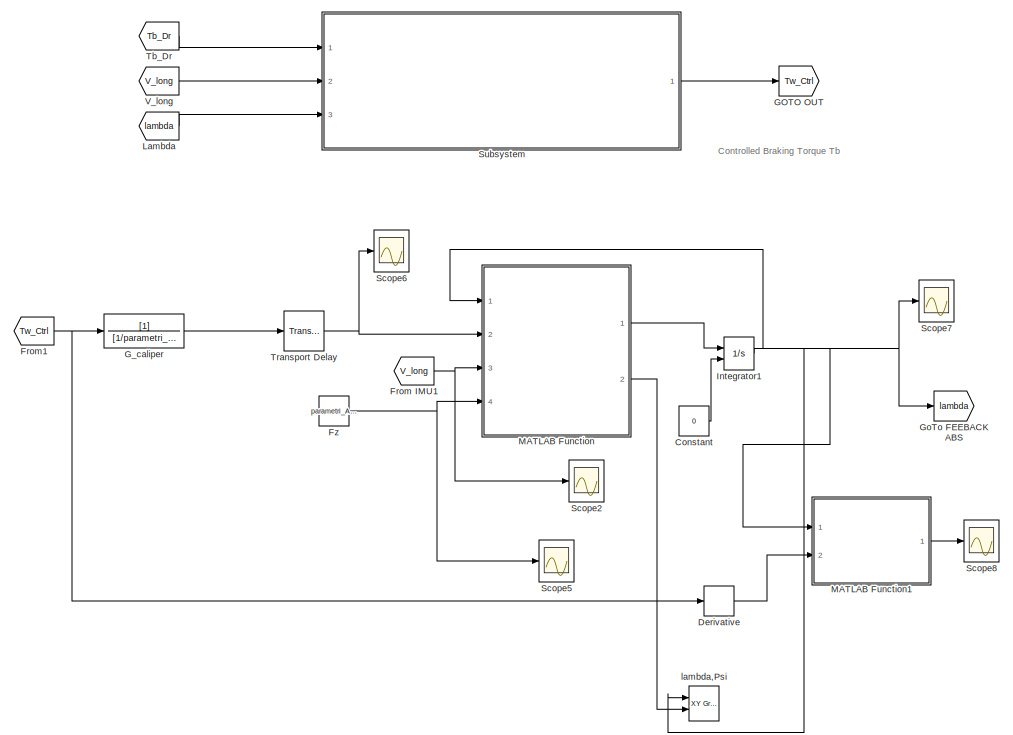
[diagram: ABS and Wheel torque generation/ABS Rear Right Wheel - part 1/2, right side, full height]
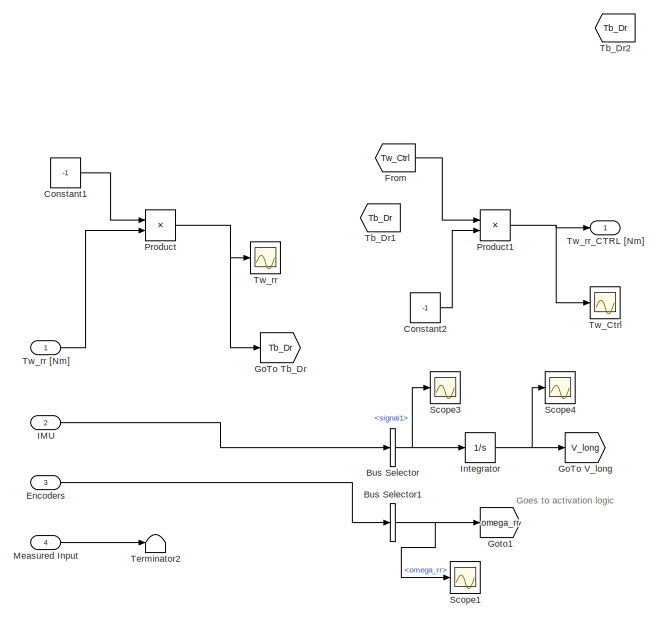
[diagram: ABS and Wheel torque generation/ABS Rear Right Wheel - part 2/2, middle left region]
BLOCK [SubSystem] ABS and Wheel torque generation/ABS Rear Right Wheel
  Ports = [4, 1]
  RequestExecContextInheritance = off
BLOCK [BusSelector] ABS and Wheel torque generation/ABS Rear Right Wheel/Bus Selector
  OutputAsBus = off
  OutputSignals = signal1
  Ports = [1, 1]
BLOCK [BusSelector] ABS and Wheel torque generation/ABS Rear Right Wheel/Bus Selector1
  OutputAsBus = off
  OutputSignals = omega_rr
  Ports = [1, 1]
BLOCK [Constant] ABS and Wheel torque generation/ABS Rear Right Wheel/Constant
  Value = 0
BLOCK [Constant] ABS and Wheel torque generation/ABS Rear Right Wheel/Constant1
  Value = -1
BLOCK [Constant] ABS and Wheel torque generation/ABS Rear Right Wheel/Constant2
  Value = -1
BLOCK [Derivative] ABS and Wheel torque generation/ABS Rear Right Wheel/Derivative
BLOCK [Inport] ABS and Wheel torque generation/ABS Rear Right Wheel/Encoders
  IconDisplay = Port number
  Port = 3
BLOCK [From] ABS and Wheel torque generation/ABS Rear Right Wheel/From
  GotoTag = Tw_Ctrl
BLOCK [From] ABS and Wheel torque generation/ABS Rear Right Wheel/From IMU1
  GotoTag = V_long
BLOCK [From] ABS and Wheel torque generation/ABS Rear Right Wheel/From1
  GotoTag = Tw_Ctrl
BLOCK [Constant] ABS and Wheel torque generation/ABS Rear Right Wheel/Fz
  Value = parametri_ABS.Fzr0
BLOCK [Goto] ABS and Wheel torque generation/ABS Rear Right Wheel/GOTO OUT
  GotoTag = Tw_Ctrl
BLOCK [TransferFcn] ABS and Wheel torque generation/ABS Rear Right Wheel/G_caliper
  Denominator = [1/parametri_ABS.omega_act 1]
BLOCK [Goto] ABS and Wheel torque generation/ABS Rear Right Wheel/GoTo FEEBACK ABS 
  GotoTag = lambda
BLOCK [Goto] ABS and Wheel torque generation/ABS Rear Right Wheel/GoTo Tb_Dr
  GotoTag = Tb_Dr
BLOCK [Goto] ABS and Wheel torque generation/ABS Rear Right Wheel/GoTo V_long 
  GotoTag = V_long
BLOCK [Goto] ABS and Wheel torque generation/ABS Rear Right Wheel/Goto1
  GotoTag = omega_rr
BLOCK [Inport] ABS and Wheel torque generation/ABS Rear Right Wheel/IMU
  IconDisplay = Port number
  Port = 2
BLOCK [Integrator] ABS and Wheel torque generation/ABS Rear Right Wheel/Integrator
  InitialCondition = V_init/3.6
  Ports = [1, 1]
BLOCK [Integrator] ABS and Wheel torque generation/ABS Rear Right Wheel/Integrator1
  InitialConditionSource = external
  Ports = [2, 1]
BLOCK [From] ABS and Wheel torque generation/ABS Rear Right Wheel/Lambda
  GotoTag = lambda
BLOCK [SubSystem] ABS and Wheel torque generation/ABS Rear Right Wheel/MATLAB Function
  ErrorFcn = Stateflow.Translate.translate
  PermitHierarchicalResolution = ExplicitOnly
  Ports = [4, 2]
  RequestExecContextInheritance = off
  SFBlockType = MATLAB Function
  TreatAsAtomicUnit = on
BLOCK [Demux] ABS and Wheel torque generation/ABS Rear Right Wheel/MATLAB Function/ Demux 
  Outputs = 1
  Ports = [1, 1]
BLOCK [S-Function] ABS and Wheel torque generation/ABS Rear Right Wheel/MATLAB Function/ SFunction 
  EnableBusSupport = on
  FunctionName = sf_sfun
  Parameters = vehicle_data
  PortCounts = [4 3]
  Ports = [4, 3]
  SFcnIsStateOwnerBlock = off
  SFunctionDeploymentMode = off
  Tag = Stateflow S-Function FullVehicleModel_ABS_ESP 2
BLOCK [Terminator] ABS and Wheel torque generation/ABS Rear Right Wheel/MATLAB Function/ Terminator 
BLOCK [Inport] ABS and Wheel torque generation/ABS Rear Right Wheel/MATLAB Function/Fz
  IconDisplay = Port number
  Port = 4
BLOCK [Outport] ABS and Wheel torque generation/ABS Rear Right Wheel/MATLAB Function/Psi
  IconDisplay = Port number
  Port = 2
BLOCK [Outport] ABS and Wheel torque generation/ABS Rear Right Wheel/MATLAB Function/RHS
  IconDisplay = Port number
BLOCK [Inport] ABS and Wheel torque generation/ABS Rear Right Wheel/MATLAB Function/Tb
  IconDisplay = Port number
  Port = 2
BLOCK [Inport] ABS and Wheel torque generation/ABS Rear Right Wheel/MATLAB Function/lambda
  IconDisplay = Port number
BLOCK [Inport] ABS and Wheel torque generation/ABS Rear Right Wheel/MATLAB Function/v
  IconDisplay = Port number
  Port = 3
BLOCK [SubSystem] ABS and Wheel torque generation/ABS Rear Right Wheel/MATLAB Function1
  ErrorFcn = Stateflow.Translate.translate
  PermitHierarchicalResolution = ExplicitOnly
  Ports = [2, 1]
  RequestExecContextInheritance = off
  SFBlockType = MATLAB Function
  TreatAsAtomicUnit = on
BLOCK [Demux] ABS and Wheel torque generation/ABS Rear Right Wheel/MATLAB Function1/ Demux 
  Outputs = 1
  Ports = [1, 1]
BLOCK [S-Function] ABS and Wheel torque generation/ABS Rear Right Wheel/MATLAB Function1/ SFunction 
  EnableBusSupport = on
  FunctionName = sf_sfun
  Parameters = parametri_ABS
  PortCounts = [2 2]
  Ports = [2, 2]
  SFcnIsStateOwnerBlock = off
  SFunctionDeploymentMode = off
  Tag = Stateflow S-Function FullVehicleModel_ABS_ESP 10
BLOCK [Terminator] ABS and Wheel torque generation/ABS Rear Right Wheel/MATLAB Function1/ Terminator 
BLOCK [Inport] ABS and Wheel torque generation/ABS Rear Right Wheel/MATLAB Function1/Tb_dot
  IconDisplay = Port number
  Port = 2
BLOCK [Outport] ABS and Wheel torque generation/ABS Rear Right Wheel/MATLAB Function1/ex
  IconDisplay = Port number
BLOCK [Inport] ABS and Wheel torque generation/ABS Rear Right Wheel/MATLAB Function1/lambda
  IconDisplay = Port number
BLOCK [Inport] ABS and Wheel torque generation/ABS Rear Right Wheel/Measured Input
  IconDisplay = Port number
  Port = 4
BLOCK [Product] ABS and Wheel torque generation/ABS Rear Right Wheel/Product
  InputSameDT = off
  OutDataTypeStr = Inherit: Inherit via internal rule
  Ports = [2, 1]
  RndMeth = Floor
  SaturateOnIntegerOverflow = off
BLOCK [Product] ABS and Wheel torque generation/ABS Rear Right Wheel/Product1
  InputSameDT = off
  OutDataTypeStr = Inherit: Inherit via internal rule
  Ports = [2, 1]
  RndMeth = Floor
  SaturateOnIntegerOverflow = off
BLOCK [Scope] ABS and Wheel torque generation/ABS Rear Right Wheel/Scope1
  Floating = off
  NumInputPorts = 1
  Ports = [1]
  ScopeSpecificationString = Simulink.scopes.TimeScopeBlockCfg('CurrentConfiguration', extmgr.ConfigurationSet(extmgr.Configuration('Core','General UI',true),extmgr.Configuration('Core','Source UI',true),extmgr.Configuration('Sources','WiredSimulink',true,'DataLoggingVariableName','ScopeData7'),extmgr.Configuration('Visuals','Time Domain',true,'SerializedDisplays',{struct('MinYLimReal','-11.00724','MaxYLimReal','95.32119','YL...<+1401ch>
BLOCK [Scope] ABS and Wheel torque generation/ABS Rear Right Wheel/Scope2
  Floating = off
  NumInputPorts = 1
  Ports = [1]
  ScopeSpecificationString = Simulink.scopes.TimeScopeBlockCfg('CurrentConfiguration', extmgr.ConfigurationSet(extmgr.Configuration('Core','General UI',true),extmgr.Configuration('Core','Source UI',true),extmgr.Configuration('Sources','WiredSimulink',true,'DataLoggingVariableName','ScopeData4'),extmgr.Configuration('Visuals','Time Domain',true,'SerializedDisplays',{struct('MinYLimReal','-4.22706','MaxYLimReal','31.33387','YLa...<+1399ch>
BLOCK [Scope] ABS and Wheel torque generation/ABS Rear Right Wheel/Scope3
  Floating = off
  NumInputPorts = 1
  Ports = [1]
  ScopeSpecificationString = Simulink.scopes.TimeScopeBlockCfg('CurrentConfiguration', extmgr.ConfigurationSet(extmgr.Configuration('Core','General UI',true),extmgr.Configuration('Core','Source UI',true),extmgr.Configuration('Sources','WiredSimulink',true,'DataLoggingVariableName','ScopeData5'),extmgr.Configuration('Visuals','Time Domain',true,'SerializedDisplays',{struct('MinYLimReal','-23.96142','MaxYLimReal','16.38804','YL...<+1400ch>
BLOCK [Scope] ABS and Wheel torque generation/ABS Rear Right Wheel/Scope4
  Floating = off
  NumInputPorts = 1
  Ports = [1]
  ScopeSpecificationString = Simulink.scopes.TimeScopeBlockCfg('CurrentConfiguration', extmgr.ConfigurationSet(extmgr.Configuration('Core','General UI',true),extmgr.Configuration('Core','Source UI',true),extmgr.Configuration('Sources','WiredSimulink',true,'DataLoggingVariableName','ScopeData6'),extmgr.Configuration('Visuals','Time Domain',true,'SerializedDisplays',{struct('MinYLimReal','-52.29416','MaxYLimReal','36.8423','YLa...<+1399ch>
BLOCK [Scope] ABS and Wheel torque generation/ABS Rear Right Wheel/Scope5
  Floating = off
  NumInputPorts = 1
  Ports = [1]
  ScopeSpecificationString = Simulink.scopes.TimeScopeBlockCfg('CurrentConfiguration', extmgr.ConfigurationSet(extmgr.Configuration('Core','General UI',true),extmgr.Configuration('Core','Source UI',true),extmgr.Configuration('Sources','WiredSimulink',true,'DataLoggingVariableName','ScopeData11'),extmgr.Configuration('Visuals','Time Domain',true,'SerializedDisplays',{struct('MinYLimReal','1158.2','MaxYLimReal','3158.2','YLabel...<+1378ch>
BLOCK [Scope] ABS and Wheel torque generation/ABS Rear Right Wheel/Scope6
  Floating = off
  NumInputPorts = 1
  Ports = [1]
  ScopeSpecificationString = Simulink.scopes.TimeScopeBlockCfg('CurrentConfiguration', extmgr.ConfigurationSet(extmgr.Configuration('Core','General UI',true),extmgr.Configuration('Core','Source UI',true),extmgr.Configuration('Sources','WiredSimulink',true,'DataLoggingVariableName','ScopeData1'),extmgr.Configuration('Visuals','Time Domain',true,'SerializedDisplays',{struct('MinYLimReal','-285.22662','MaxYLimReal','1198.35851',...<+1447ch>
BLOCK [Scope] ABS and Wheel torque generation/ABS Rear Right Wheel/Scope7
  Floating = off
  NumInputPorts = 1
  Ports = [1]
  ScopeSpecificationString = Simulink.scopes.TimeScopeBlockCfg('CurrentConfiguration', extmgr.ConfigurationSet(extmgr.Configuration('Core','General UI',true),extmgr.Configuration('Core','Source UI',true),extmgr.Configuration('Sources','WiredSimulink',true,'DataLoggingVariableName','ScopeData2'),extmgr.Configuration('Visuals','Time Domain',true,'SerializedDisplays',{struct('MinYLimReal','-0.00553','MaxYLimReal','0.03354','YLab...<+1396ch>
BLOCK [Scope] ABS and Wheel torque generation/ABS Rear Right Wheel/Scope8
  Floating = off
  NumInputPorts = 1
  Ports = [1]
  ScopeSpecificationString = Simulink.scopes.TimeScopeBlockCfg('CurrentConfiguration', extmgr.ConfigurationSet(extmgr.Configuration('Core','General UI',true),extmgr.Configuration('Core','Source UI',true),extmgr.Configuration('Sources','WiredSimulink',true,'DataLoggingVariableName','ScopeData3'),extmgr.Configuration('Visuals','Time Domain',true,'SerializedDisplays',{struct('MinYLimReal','-0.125','MaxYLimReal','1.125','YLabelRe...<+1389ch>
BLOCK [SubSystem] ABS and Wheel torque generation/ABS Rear Right Wheel/Subsystem
  Ports = [3, 1]
  RequestExecContextInheritance = off
BLOCK [Scope] ABS and Wheel torque generation/ABS Rear Right Wheel/Subsystem/ABS_ON_CHECK
  Floating = off
  NumInputPorts = 1
  Ports = [1]
  ScopeSpecificationString = Simulink.scopes.TimeScopeBlockCfg('CurrentConfiguration', extmgr.ConfigurationSet(extmgr.Configuration('Core','General UI',true),extmgr.Configuration('Core','Source UI',true),extmgr.Configuration('Sources','WiredSimulink',true,'DataLoggingVariableName','ScopeData1'),extmgr.Configuration('Visuals','Time Domain',true,'SerializedDisplays',{struct('MinYLimReal','-1.00000','MaxYLimReal','1.00000','YLab...<+1426ch>
BLOCK [Scope] ABS and Wheel torque generation/ABS Rear Right Wheel/Subsystem/ABS_Selection_Number 
  Floating = off
  NumInputPorts = 1
  Ports = [1]
  ScopeSpecificationString = Simulink.scopes.TimeScopeBlockCfg('CurrentConfiguration', extmgr.ConfigurationSet(extmgr.Configuration('Core','General UI',true),extmgr.Configuration('Core','Source UI',true),extmgr.Configuration('Sources','WiredSimulink',true,'DataLoggingVariableName','ScopeData2'),extmgr.Configuration('Visuals','Time Domain',true,'SerializedDisplays',{struct('MinYLimReal','0.75','MaxYLimReal','3.25','YLabelReal'...<+1481ch>
BLOCK [SubSystem] ABS and Wheel torque generation/ABS Rear Right Wheel/Subsystem/Activation and Deactivation Logic1
  ErrorFcn = Stateflow.Translate.translate
  PermitHierarchicalResolution = ExplicitOnly
  Ports = [6, 2]
  RequestExecContextInheritance = off
  SFBlockType = Chart
  TreatAsAtomicUnit = on
BLOCK [Demux] ABS and Wheel torque generation/ABS Rear Right Wheel/Subsystem/Activation and Deactivation Logic1/ Demux 
  Outputs = 1
  Ports = [1, 1]
BLOCK [S-Function] ABS and Wheel torque generation/ABS Rear Right Wheel/Subsystem/Activation and Deactivation Logic1/ SFunction 
  EnableBusSupport = on
  FunctionName = sf_sfun
  Parameters = Tb_dot_max,hv,lambda1_th,lambda2_th,rho_off,rho_on,v_on,v_stop
  PortCounts = [6 3]
  Ports = [6, 3]
  SFcnIsStateOwnerBlock = off
  SFunctionDeploymentMode = off
  Tag = Stateflow S-Function FullVehicleModel_ABS_ESP 6
BLOCK [Terminator] ABS and Wheel torque generation/ABS Rear Right Wheel/Subsystem/Activation and Deactivation Logic1/ Terminator 
BLOCK [Outport] ABS and Wheel torque generation/ABS Rear Right Wheel/Subsystem/Activation and Deactivation Logic1/ABS_ON
  IconDisplay = Port number
  Port = 2
BLOCK [Inport] ABS and Wheel torque generation/ABS Rear Right Wheel/Subsystem/Activation and Deactivation Logic1/Tb_Ctrl
  IconDisplay = Port number
  Port = 2
BLOCK [Inport] ABS and Wheel torque generation/ABS Rear Right Wheel/Subsystem/Activation and Deactivation Logic1/Tb_Dr
  IconDisplay = Port number
BLOCK [Inport] ABS and Wheel torque generation/ABS Rear Right Wheel/Subsystem/Activation and Deactivation Logic1/Tb_LPF
  IconDisplay = Port number
  Port = 5
BLOCK [Inport] ABS and Wheel torque generation/ABS Rear Right Wheel/Subsystem/Activation and Deactivation Logic1/Tb_dot
  IconDisplay = Port number
  Port = 4
BLOCK [Outport] ABS and Wheel torque generation/ABS Rear Right Wheel/Subsystem/Activation and Deactivation Logic1/Tb_select
  IconDisplay = Port number
BLOCK [Inport] ABS and Wheel torque generation/ABS Rear Right Wheel/Subsystem/Activation and Deactivation Logic1/lambda
  IconDisplay = Port number
  Port = 6
BLOCK [Inport] ABS and Wheel torque generation/ABS Rear Right Wheel/Subsystem/Activation and Deactivation Logic1/v
  IconDisplay = Port number
  Port = 3
BLOCK [Reference] ABS and Wheel torque generation/ABS Rear Right Wheel/Subsystem/Compare To Constant  REF=simulink/Logic and Bit
Operations/Compare
To Constant
  Ports = [1, 1]
  SourceBlock = simulink/Logic and Bit\nOperations/Compare\nTo Constant
  SourceProductBaseCode = SL
  SourceProductName = Simulink
  SourceType = Compare To Constant
BLOCK [Constant] ABS and Wheel torque generation/ABS Rear Right Wheel/Subsystem/Constant
  Value = 1.3
BLOCK [Derivative] ABS and Wheel torque generation/ABS Rear Right Wheel/Subsystem/Derivative1
BLOCK [From] ABS and Wheel torque generation/ABS Rear Right Wheel/Subsystem/From IMU
  GotoTag = V_long
BLOCK [From] ABS and Wheel torque generation/ABS Rear Right Wheel/Subsystem/From INPUT Tw_rr
  GotoTag = Tb_Dr
BLOCK [From] ABS and Wheel torque generation/ABS Rear Right Wheel/Subsystem/From INPUT Tw_rr1
  GotoTag = Tb_Dr
BLOCK [From] ABS and Wheel torque generation/ABS Rear Right Wheel/Subsystem/From Lambda
  GotoTag = lambda
BLOCK [From] ABS and Wheel torque generation/ABS Rear Right Wheel/Subsystem/From Tb_Ctrl
  GotoTag = Tb_Ctrl
BLOCK [From] ABS and Wheel torque generation/ABS Rear Right Wheel/Subsystem/From Tb_Dr
  GotoTag = Tb_Dr
BLOCK [From] ABS and Wheel torque generation/ABS Rear Right Wheel/Subsystem/From Tb_LPF
  GotoTag = Tb_LPF
BLOCK [From] ABS and Wheel torque generation/ABS Rear Right Wheel/Subsystem/From lambdaDyn
  GotoTag = lambda
BLOCK [Goto] ABS and Wheel torque generation/ABS Rear Right Wheel/Subsystem/Go To TB_Ctrl
  GotoTag = Tb_Ctrl
BLOCK [Goto] ABS and Wheel torque generation/ABS Rear Right Wheel/Subsystem/Go toTb_LPF
  GotoTag = Tb_LPF
BLOCK [Goto] ABS and Wheel torque generation/ABS Rear Right Wheel/Subsystem/Goto
  GotoTag = Tb_Dr
BLOCK [Goto] ABS and Wheel torque generation/ABS Rear Right Wheel/Subsystem/Goto1
  GotoTag = V_long
BLOCK [Goto] ABS and Wheel torque generation/ABS Rear Right Wheel/Subsystem/Goto2
  GotoTag = lambda
BLOCK [TransferFcn] ABS and Wheel torque generation/ABS Rear Right Wheel/Subsystem/LPF
  Denominator = [1 parametri_ABS.omega_LPF]
  Numerator = [parametri_ABS.omega_LPF]
BLOCK [Inport] ABS and Wheel torque generation/ABS Rear Right Wheel/Subsystem/Lambda
  IconDisplay = Port number
  Port = 3
BLOCK [Constant] ABS and Wheel torque generation/ABS Rear Right Wheel/Subsystem/Lambda REF
  Value = 0.05
BLOCK [SubSystem] ABS and Wheel torque generation/ABS Rear Right Wheel/Subsystem/MATLAB Function
  ErrorFcn = Stateflow.Translate.translate
  PermitHierarchicalResolution = ExplicitOnly
  Ports = [1, 1]
  RequestExecContextInheritance = off
  SFBlockType = MATLAB Function
  TreatAsAtomicUnit = on
BLOCK [Demux] ABS and Wheel torque generation/ABS Rear Right Wheel/Subsystem/MATLAB Function/ Demux 
  Outputs = 1
  Ports = [1, 1]
BLOCK [S-Function] ABS and Wheel torque generation/ABS Rear Right Wheel/Subsystem/MATLAB Function/ SFunction 
  EnableBusSupport = on
  FunctionName = sf_sfun
  Parameters = t_brake
  PortCounts = [1 2]
  Ports = [1, 2]
  SFcnIsStateOwnerBlock = off
  SFunctionDeploymentMode = off
  Tag = Stateflow S-Function FullVehicleModel_ABS_ESP 11
BLOCK [Terminator] ABS and Wheel torque generation/ABS Rear Right Wheel/Subsystem/MATLAB Function/ Terminator 
BLOCK [Inport] ABS and Wheel torque generation/ABS Rear Right Wheel/Subsystem/MATLAB Function/Tb
  IconDisplay = Port number
BLOCK [Outport] ABS and Wheel torque generation/ABS Rear Right Wheel/Subsystem/MATLAB Function/Tb_Ctrl
  IconDisplay = Port number
BLOCK [Memory] ABS and Wheel torque generation/ABS Rear Right Wheel/Subsystem/Memory
BLOCK [TransferFcn] ABS and Wheel torque generation/ABS Rear Right Wheel/Subsystem/PID1
  Denominator = [1/500 1 0]
  Numerator = 2500*[1/400 1/10  1]
BLOCK [Product] ABS and Wheel torque generation/ABS Rear Right Wheel/Subsystem/Product
  InputSameDT = off
  OutDataTypeStr = Inherit: Inherit via internal rule
  Ports = [2, 1]
  RndMeth = Floor
  SaturateOnIntegerOverflow = off
BLOCK [Product] ABS and Wheel torque generation/ABS Rear Right Wheel/Subsystem/Product1
  InputSameDT = off
  OutDataTypeStr = Inherit: Inherit via internal rule
  Ports = [2, 1]
  RndMeth = Floor
  SaturateOnIntegerOverflow = off
BLOCK [Reference] ABS and Wheel torque generation/ABS Rear Right Wheel/Subsystem/Sample and Hold  REF=dspsigops/Sample
and Hold
  Ports = [1, 1, 0, 1]
  SourceBlock = dspsigops/Sample\nand Hold
  SourceProductBaseCode = DS
  SourceProductName = DSP System Toolbox
  SourceType = Sample and Hold
BLOCK [Saturate] ABS and Wheel torque generation/ABS Rear Right Wheel/Subsystem/Saturation of Braking Torque Tb
  InputPortMap = u0
  LowerLimit = -10000
  Ports = [1, 1]
  UpperLimit = 1500
BLOCK [Scope] ABS and Wheel torque generation/ABS Rear Right Wheel/Subsystem/Scope
  Floating = off
  NumInputPorts = 1
  Ports = [1]
  ScopeSpecificationString = Simulink.scopes.TimeScopeBlockCfg('CurrentConfiguration', extmgr.ConfigurationSet(extmgr.Configuration('Core','General UI',true),extmgr.Configuration('Core','Source UI',true),extmgr.Configuration('Sources','WiredSimulink',true,'DataLoggingVariableName','ScopeData2'),extmgr.Configuration('Visuals','Time Domain',true,'SerializedDisplays',{struct('MinYLimReal','-603.96048','MaxYLimReal','1233.77339',...<+1408ch>
BLOCK [Scope] ABS and Wheel torque generation/ABS Rear Right Wheel/Subsystem/Scope1
  Floating = off
  NumInputPorts = 1
  Ports = [1]
  ScopeSpecificationString = Simulink.scopes.TimeScopeBlockCfg('CurrentConfiguration', extmgr.ConfigurationSet(extmgr.Configuration('Core','General UI',true),extmgr.Configuration('Core','Source UI',true),extmgr.Configuration('Sources','WiredSimulink',true,'DataLoggingVariableName','ScopeData3'),extmgr.Configuration('Visuals','Time Domain',true,'SerializedDisplays',{struct('MinYLimReal','-0.00201','MaxYLimReal','0.06823','YLab...<+1436ch>
BLOCK [Scope] ABS and Wheel torque generation/ABS Rear Right Wheel/Subsystem/Scope2
  Floating = off
  NumInputPorts = 1
  Ports = [1]
  ScopeSpecificationString = Simulink.scopes.TimeScopeBlockCfg('CurrentConfiguration', extmgr.ConfigurationSet(extmgr.Configuration('Core','General UI',true),extmgr.Configuration('Core','Source UI',true),extmgr.Configuration('Sources','WiredSimulink',true,'DataLoggingVariableName','ScopeData8'),extmgr.Configuration('Visuals','Time Domain',true,'SerializedDisplays',{struct('MinYLimReal','-285.36573','MaxYLimReal','1198.37397',...<+1408ch>
BLOCK [Scope] ABS and Wheel torque generation/ABS Rear Right Wheel/Subsystem/Scope3
  Floating = off
  NumInputPorts = 1
  Ports = [1]
  ScopeSpecificationString = Simulink.scopes.TimeScopeBlockCfg('CurrentConfiguration', extmgr.ConfigurationSet(extmgr.Configuration('Core','General UI',true),extmgr.Configuration('Core','Source UI',true),extmgr.Configuration('Sources','WiredSimulink',true,'DataLoggingVariableName','ScopeData9'),extmgr.Configuration('Visuals','Time Domain',true,'SerializedDisplays',{struct('MinYLimReal','-58.27493','MaxYLimReal','749.50097','Y...<+1404ch>
BLOCK [Scope] ABS and Wheel torque generation/ABS Rear Right Wheel/Subsystem/Scope4
  Floating = off
  NumInputPorts = 1
  Ports = [1]
  ScopeSpecificationString = Simulink.scopes.TimeScopeBlockCfg('CurrentConfiguration', extmgr.ConfigurationSet(extmgr.Configuration('Core','General UI',true),extmgr.Configuration('Core','Source UI',true),extmgr.Configuration('Sources','WiredSimulink',true,'DataLoggingVariableName','ScopeData10'),extmgr.Configuration('Visuals','Time Domain',true,'SerializedDisplays',{struct('MinYLimReal','-96.08556','MaxYLimReal','510.67617','...<+1456ch>
BLOCK [Scope] ABS and Wheel torque generation/ABS Rear Right Wheel/Subsystem/Scope5
  Floating = off
  NumInputPorts = 1
  Ports = [1]
BLOCK [Scope] ABS and Wheel torque generation/ABS Rear Right Wheel/Subsystem/Scope6
  Floating = off
  NumInputPorts = 1
  Ports = [1]
  ScopeSpecificationString = Simulink.scopes.TimeScopeBlockCfg('CurrentConfiguration', extmgr.ConfigurationSet(extmgr.Configuration('Core','General UI',true),extmgr.Configuration('Core','Source UI',true),extmgr.Configuration('Sources','WiredSimulink',true,'DataLoggingVariableName','ScopeData4'),extmgr.Configuration('Visuals','Time Domain',true,'SerializedDisplays',{struct('MinYLimReal','-2000.00000','MaxYLimReal','1810.71006'...<+1497ch>
BLOCK [Scope] ABS and Wheel torque generation/ABS Rear Right Wheel/Subsystem/Scope7
  Floating = off
  NumInputPorts = 1
  Ports = [1]
  ScopeSpecificationString = Simulink.scopes.TimeScopeBlockCfg('CurrentConfiguration', extmgr.ConfigurationSet(extmgr.Configuration('Core','General UI',true),extmgr.Configuration('Core','Source UI',true),extmgr.Configuration('Sources','WiredSimulink',true,'DataLoggingVariableName','ScopeData5'),extmgr.Configuration('Visuals','Time Domain',true,'SerializedDisplays',{struct('MinYLimReal','-97.27828','MaxYLimReal','875.50452','Y...<+1398ch>
BLOCK [Scope] ABS and Wheel torque generation/ABS Rear Right Wheel/Subsystem/Scope8
  Floating = off
  NumInputPorts = 1
  Ports = [1]
  ScopeSpecificationString = Simulink.scopes.TimeScopeBlockCfg('CurrentConfiguration', extmgr.ConfigurationSet(extmgr.Configuration('Core','General UI',true),extmgr.Configuration('Core','Source UI',true),extmgr.Configuration('Sources','WiredSimulink',true,'DataLoggingVariableName','ScopeData1'),extmgr.Configuration('Visuals','Time Domain',true,'SerializedDisplays',{struct('MinYLimReal','-1.00000','MaxYLimReal','1.00000','YLab...<+1467ch>
BLOCK [Sum] ABS and Wheel torque generation/ABS Rear Right Wheel/Subsystem/Sum
  IconShape = round
  InputSameDT = off
  Inputs = -+|
  OutDataTypeStr = Inherit: Inherit via internal rule
  Ports = [2, 1]
  SaturateOnIntegerOverflow = off
BLOCK [MultiPortSwitch] ABS and Wheel torque generation/ABS Rear Right Wheel/Subsystem/Switch of Tb
  InputSameDT = off
  Ports = [4, 1]
  SaturateOnIntegerOverflow = off
BLOCK [Inport] ABS and Wheel torque generation/ABS Rear Right Wheel/Subsystem/Tb_dr
  IconDisplay = Port number
BLOCK [Outport] ABS and Wheel torque generation/ABS Rear Right Wheel/Subsystem/Tw_Ctrl
  IconDisplay = Port number
BLOCK [Inport] ABS and Wheel torque generation/ABS Rear Right Wheel/Subsystem/V_long 
  IconDisplay = Port number
  Port = 2
BLOCK [Constant] ABS and Wheel torque generation/ABS Rear Right Wheel/Subsystem/rho
  Value = 0.97
BLOCK [From] ABS and Wheel torque generation/ABS Rear Right Wheel/Tb_Dr
  GotoTag = Tb_Dr
BLOCK [From] ABS and Wheel torque generation/ABS Rear Right Wheel/Tb_Dr1
  GotoTag = Tb_Dr
BLOCK [From] ABS and Wheel torque generation/ABS Rear Right Wheel/Tb_Dr2
  GotoTag = Tb_Dr
BLOCK [Terminator] ABS and Wheel torque generation/ABS Rear Right Wheel/Terminator2
BLOCK [TransportDelay] ABS and Wheel torque generation/ABS Rear Right Wheel/Transport Delay
  BufferSize = 10000
  DelayTime = parametri_ABS.tau_delay
  Ports = [1, 1]
BLOCK [Scope] ABS and Wheel torque generation/ABS Rear Right Wheel/Tw_Ctrl 
  Floating = off
  NumInputPorts = 1
  Ports = [1]
  ScopeSpecificationString = Simulink.scopes.TimeScopeBlockCfg('CurrentConfiguration', extmgr.ConfigurationSet(extmgr.Configuration('Core','General UI',true),extmgr.Configuration('Core','Source UI',true),extmgr.Configuration('Sources','WiredSimulink',true,'DataLoggingVariableName','ScopeData1'),extmgr.Configuration('Visuals','Time Domain',true,'SerializedDisplays',{struct('MinYLimReal','-1198.37397','MaxYLimReal','285.36573',...<+1413ch>
BLOCK [Scope] ABS and Wheel torque generation/ABS Rear Right Wheel/Tw_rr
  Floating = off
  NumInputPorts = 1
  Ports = [1]
  ScopeSpecificationString = Simulink.scopes.TimeScopeBlockCfg('CurrentConfiguration', extmgr.ConfigurationSet(extmgr.Configuration('Core','General UI',true),extmgr.Configuration('Core','Source UI',true),extmgr.Configuration('Sources','WiredSimulink',true,'DataLoggingVariableName','ScopeData1'),extmgr.Configuration('Visuals','Time Domain',true,'SerializedDisplays',{struct('MinYLimReal','-285.36573','MaxYLimReal','1198.37397',...<+1410ch>
BLOCK [Inport] ABS and Wheel torque generation/ABS Rear Right Wheel/Tw_rr [Nm]
  IconDisplay = Port number
BLOCK [Outport] ABS and Wheel torque generation/ABS Rear Right Wheel/Tw_rr_CTRL [Nm]
  IconDisplay = Port number
BLOCK [From] ABS and Wheel torque generation/ABS Rear Right Wheel/V_long
  GotoTag = V_long
BLOCK [Reference] ABS and Wheel torque generation/ABS Rear Right Wheel/lambda,Psi  REF=simulink/Sinks/XY Graph
  Ports = [2]
  SourceBlock = simulink/Sinks/XY Graph
  SourceProductBaseCode = SL
  SourceProductName = Simulink
  SourceType = XY scope.
BLOCK [SubSystem] ABS and Wheel torque generation/Accelerator
  Ports = [1, 1]
  RequestExecContextInheritance = off
BLOCK [Lookup_n-D] ABS and Wheel torque generation/Accelerator/1-D Lookup Table
  BreakpointsForDimension1 = linspace(0,250/3.6,31)
  InternalRulePriority = Speed
  NumberOfTableDimensions = 1
  Ports = [1, 1]
  RndMeth = Simplest
  Table = 500*[0.442662657646371\n0.537281800718283\n0.631900943790195\n0.726520086862107\n0.821139229934018\n0.859929256634989\n0.897666213627126\n0.918905078514199\n0.939980602614386\n0.959177707665377\n0.977316148834879\n0.987691054873465\n0.996795820900055\n1\n0.995733117962017\n0.989286574404060\n0.982840030846103\n0.974205033220170\n0.965525373266320\n0.956088102993640\n0.944254781591915\n0.930421573540466\n0.9134749195078...<+131ch>
BLOCK [Sum] ABS and Wheel torque generation/Accelerator/Add
  InputSameDT = off
  OutDataTypeStr = Inherit: Inherit via internal rule
  Ports = [2, 1]
  SaturateOnIntegerOverflow = off
BLOCK [Constant] ABS and Wheel torque generation/Accelerator/Constant
  Value = 0
BLOCK [Inport] ABS and Wheel torque generation/Accelerator/Fpedal [-]
  IconDisplay = Port number
BLOCK [From] ABS and Wheel torque generation/Accelerator/From
  GotoTag = u
  TagVisibility = global
BLOCK [From] ABS and Wheel torque generation/Accelerator/From1
  GotoTag = v
  TagVisibility = global
BLOCK [Math] ABS and Wheel torque generation/Accelerator/Math Function
  Operator = magnitude^2
  Ports = [1, 1]
BLOCK [Math] ABS and Wheel torque generation/Accelerator/Math Function1
  Operator = magnitude^2
  Ports = [1, 1]
BLOCK [Mux] ABS and Wheel torque generation/Accelerator/Mux10
  DisplayOption = bar
  Ports = [4, 1]
BLOCK [Product] ABS and Wheel torque generation/Accelerator/Product
  InputSameDT = off
  OutDataTypeStr = Inherit: Inherit via internal rule
  Ports = [2, 1]
  RndMeth = Floor
  SaturateOnIntegerOverflow = off
BLOCK [Saturate] ABS and Wheel torque generation/Accelerator/Saturation1
  InputPortMap = u0
  LowerLimit = 0
  Ports = [1, 1]
  UpperLimit = 1
BLOCK [Scope] ABS and Wheel torque generation/Accelerator/Scope3
  Floating = off
  NumInputPorts = 1
  Ports = [1]
  ScopeSpecificationString = Simulink.scopes.TimeScopeBlockCfg('CurrentConfiguration', extmgr.ConfigurationSet(extmgr.Configuration('Core','General UI',true),extmgr.Configuration('Core','Source UI',true),extmgr.Configuration('Sources','WiredSimulink',true,'DataLoggingVariableName','ScopeData6'),extmgr.Configuration('Visuals','Time Domain',true,'SerializedDisplays',{struct('MinYLimReal','-5.87431','MaxYLimReal','52.86875','YLa...<+1414ch>
BLOCK [Scope] ABS and Wheel torque generation/Accelerator/Scope4
  Floating = off
  NumInputPorts = 1
  Ports = [1]
  ScopeSpecificationString = Simulink.scopes.TimeScopeBlockCfg('CurrentConfiguration', extmgr.ConfigurationSet(extmgr.Configuration('Core','General UI',true),extmgr.Configuration('Core','Source UI',true),extmgr.Configuration('Sources','WiredSimulink',true,'DataLoggingVariableName','ScopeData7'),extmgr.Configuration('Visuals','Time Domain',true,'SerializedDisplays',{struct('MinYLimReal','-1.72452','MaxYLimReal','24.08352','YLa...<+1390ch>
BLOCK [Scope] ABS and Wheel torque generation/Accelerator/Scope5
  Floating = off
  NumInputPorts = 1
  Ports = [1]
  ScopeSpecificationString = Simulink.scopes.TimeScopeBlockCfg('CurrentConfiguration', extmgr.ConfigurationSet(extmgr.Configuration('Core','General UI',true),extmgr.Configuration('Core','Source UI',true),extmgr.Configuration('Sources','WiredSimulink',true,'DataLoggingVariableName','ScopeData8'),extmgr.Configuration('Visuals','Time Domain',true,'SerializedDisplays',{struct('MinYLimReal','254.13013','MaxYLimReal','454.13013','Y...<+1415ch>
BLOCK [Sqrt] ABS and Wheel torque generation/Accelerator/Signed Sqrt
BLOCK [Outport] ABS and Wheel torque generation/Accelerator/Tw [Nm]
  IconDisplay = Port number
BLOCK [SubSystem] ABS and Wheel torque generation/Brake
  Ports = [1, 1]
  RequestExecContextInheritance = off
BLOCK [Inport] ABS and Wheel torque generation/Brake/Fpedal [-]
  IconDisplay = Port number
BLOCK [Gain] ABS and Wheel torque generation/Brake/Front Brake ratio
  Gain = 0.7
  OutDataTypeStr = Inherit: Inherit via internal rule
  ParamDataTypeStr = Inherit: Inherit via internal rule
  SaturateOnIntegerOverflow = off
BLOCK [Gain] ABS and Wheel torque generation/Brake/Max Brake Torque
  Gain = 1500
  OutDataTypeStr = Inherit: Inherit via internal rule
  ParamDataTypeStr = Inherit: Inherit via internal rule
  SaturateOnIntegerOverflow = off
BLOCK [Mux] ABS and Wheel torque generation/Brake/Mux11
  DisplayOption = bar
  Ports = [4, 1]
BLOCK [RateLimiter] ABS and Wheel torque generation/Brake/Rate Limiter
  FallingSlewLimit = -10000
  RisingSlewLimit = 1e5
  SampleTimeMode = inherited
BLOCK [Gain] ABS and Wheel torque generation/Brake/Rear Brake ratio
  Gain = 0.3
  OutDataTypeStr = Inherit: Inherit via internal rule
  ParamDataTypeStr = Inherit: Inherit via internal rule
  SaturateOnIntegerOverflow = off
BLOCK [Saturate] ABS and Wheel torque generation/Brake/Saturation
  InputPortMap = u0
  LowerLimit = -1
  Ports = [1, 1]
  UpperLimit = 0
BLOCK [Outport] ABS and Wheel torque generation/Brake/Tw [Nm]
  IconDisplay = Port number
BLOCK [Demux] ABS and Wheel torque generation/Demux
  DisplayOption = bar
  Ports = [1, 4]
BLOCK [Inport] ABS and Wheel torque generation/Encoders
  IconDisplay = Port number
  Port = 3
BLOCK [Inport] ABS and Wheel torque generation/Fpedal [-]
  IconDisplay = Port number
BLOCK [Inport] ABS and Wheel torque generation/IMU
  IconDisplay = Port number
  Port = 2
BLOCK [Inport] ABS and Wheel torque generation/Measured Input
  IconDisplay = Port number
  Port = 4
BLOCK [Scope] ABS and Wheel torque generation/Scope6
  Floating = off
  NumInputPorts = 1
  Ports = [1]
  ScopeSpecificationString = Simulink.scopes.TimeScopeBlockCfg('CurrentConfiguration', extmgr.ConfigurationSet(extmgr.Configuration('Core','General UI',true),extmgr.Configuration('Core','Source UI',true),extmgr.Configuration('Sources','WiredSimulink',true,'DataLoggingVariableName','ScopeData6'),extmgr.Configuration('Visuals','Time Domain',true,'SerializedDisplays',{struct('MinYLimReal','-1233.77339','MaxYLimReal','603.96048',...<+1412ch>
BLOCK [Switch] ABS and Wheel torque generation/Switch
  InputSameDT = off
  SaturateOnIntegerOverflow = off
BLOCK [Outport] ABS and Wheel torque generation/Tw_fl_CTRL [Nm]
  IconDisplay = Port number
  Port = 4
BLOCK [Outport] ABS and Wheel torque generation/Tw_fr_CTRL [Nm]
  IconDisplay = Port number
  Port = 3
BLOCK [Outport] ABS and Wheel torque generation/Tw_rl_CTRL [Nm]
  IconDisplay = Port number
  Port = 2
BLOCK [Outport] ABS and Wheel torque generation/Tw_rr_CTRL [Nm]
  IconDisplay = Port number
BLOCK [Sum] Add
  InputSameDT = off
  OutDataTypeStr = Inherit: Inherit via internal rule
  Ports = [2, 1]
  SaturateOnIntegerOverflow = off
BLOCK [SubSystem] Driver
  Ports = [2, 2]
  RequestExecContextInheritance = off
BLOCK [Product] Driver/Ackermann steering
  InputSameDT = off
  Inputs = **
  OutDataTypeStr = Inherit: Inherit via internal rule
  Ports = [2, 1]
  RndMeth = Floor
  SaturateOnIntegerOverflow = off
BLOCK [Sum] Driver/Add
  InputSameDT = off
  OutDataTypeStr = Inherit: Inherit via internal rule
  Ports = [2, 1]
  SaturateOnIntegerOverflow = off
BLOCK [Sum] Driver/Add1
  InputSameDT = off
  Inputs = -+
  OutDataTypeStr = Inherit: Inherit via internal rule
  Ports = [2, 1]
  SaturateOnIntegerOverflow = off
BLOCK [Sum] Driver/Add2
  InputSameDT = off
  OutDataTypeStr = Inherit: Inherit via internal rule
  Ports = [2, 1]
  SaturateOnIntegerOverflow = off
BLOCK [Clock] Driver/Clock
BLOCK [Clock] Driver/Clock1
BLOCK [Outport] Driver/Fpedal [-]
  IconDisplay = Port number
BLOCK [Constant] Driver/Full Brake
  Value = -1
BLOCK [Constant] Driver/Full Brake1
  Value = 0
BLOCK [Gain] Driver/Integral
  Gain = 3.6/50
  OutDataTypeStr = Inherit: Inherit via internal rule
  ParamDataTypeStr = Inherit: Inherit via internal rule
  SaturateOnIntegerOverflow = off
BLOCK [Integrator] Driver/Integrator
  Ports = [1, 1]
BLOCK [Constant] Driver/L [m]
  Value = vehicle_data.vehicle.L
BLOCK [Math] Driver/Math Function
  Operator = magnitude^2
  Ports = [1, 1]
BLOCK [Math] Driver/Math Function1
  Operator = magnitude^2
  Ports = [1, 1]
BLOCK [Gain] Driver/Proportional
  Gain = 3.6/50
  OutDataTypeStr = Inherit: Inherit via internal rule
  ParamDataTypeStr = Inherit: Inherit via internal rule
  SaturateOnIntegerOverflow = off
BLOCK [Saturate] Driver/Saturation
  InputPortMap = u0
  LowerLimit = -1
  Ports = [1, 1]
  UpperLimit = 1
BLOCK [Scope] Driver/Scope4
  Floating = off
  NumInputPorts = 1
  Ports = [1]
  ScopeSpecificationString = Simulink.scopes.TimeScopeBlockCfg('CurrentConfiguration', extmgr.ConfigurationSet(extmgr.Configuration('Core','General UI',true),extmgr.Configuration('Core','Source UI',true),extmgr.Configuration('Sources','WiredSimulink',true,'DataLoggingVariableName','ScopeData9'),extmgr.Configuration('Visuals','Time Domain',true,'SerializedDisplays',{struct('MinYLimReal','-1.25','MaxYLimReal','1.25','YLabelReal...<+1395ch>
BLOCK [Sqrt] Driver/Signed Sqrt
BLOCK [Switch] Driver/Switch
  InputSameDT = off
  SaturateOnIntegerOverflow = off
  Threshold = t_brake
BLOCK [Switch] Driver/Switch1
  InputSameDT = off
  SaturateOnIntegerOverflow = off
  Threshold = t_brake
BLOCK [Inport] Driver/V_desired [m//s]
  IconDisplay = Port number
BLOCK [Inport] Driver/rho [1//m]
  IconDisplay = Port number
  Port = 2
BLOCK [Outport] Driver/steeringWheel_angle [rad]
  IconDisplay = Port number
  Port = 2
BLOCK [Gain] Driver/tau_D
  Gain = vehicle_data.steering_system.tau_D
  OutDataTypeStr = Inherit: Inherit via internal rule
  ParamDataTypeStr = Inherit: Inherit via internal rule
  SaturateOnIntegerOverflow = off
BLOCK [From] Driver/u [m//s]
  GotoTag = u
  TagVisibility = global
BLOCK [From] Driver/v [m//s]
  GotoTag = v
  TagVisibility = global
BLOCK [SubSystem] ESP Controller
  Ports = [4, 1]
  RequestExecContextInheritance = off
BLOCK [BusSelector] ESP Controller/Bus Selector
  OutputAsBus = off
  OutputSignals = signal1
  Ports = [1, 1]
BLOCK [BusSelector] ESP Controller/Bus Selector1
  OutputAsBus = off
  OutputSignals = delta
  Ports = [1, 1]
BLOCK [Constant] ESP Controller/Constant
  Value = vehicle_data.vehicle.L
BLOCK [Product] ESP Controller/Divide
  InputSameDT = off
  Inputs = */
  OutDataTypeStr = Inherit: Inherit via internal rule
  Ports = [2, 1]
  RndMeth = Floor
  SaturateOnIntegerOverflow = off
BLOCK [Product] ESP Controller/Divide1
  InputSameDT = off
  Inputs = */
  OutDataTypeStr = Inherit: Inherit via internal rule
  Ports = [2, 1]
  RndMeth = Floor
  SaturateOnIntegerOverflow = off
BLOCK [Product] ESP Controller/Divide2
  InputSameDT = off
  Inputs = */
  OutDataTypeStr = Inherit: Inherit via internal rule
  Ports = [2, 1]
  RndMeth = Floor
  SaturateOnIntegerOverflow = off
BLOCK [Inport] ESP Controller/Encoders
  IconDisplay = Port number
  Port = 3
BLOCK [Gain] ESP Controller/Gain
  Gain = 0.00202531645
  OutDataTypeStr = Inherit: Inherit via internal rule
  ParamDataTypeStr = Inherit: Inherit via internal rule
  SaturateOnIntegerOverflow = off
BLOCK [Gain] ESP Controller/Gain1
  Gain = vehicle_data.vehicle.L
  OutDataTypeStr = Inherit: Inherit via internal rule
  ParamDataTypeStr = Inherit: Inherit via internal rule
  SaturateOnIntegerOverflow = off
BLOCK [Gain] ESP Controller/Gain2
  Gain = 1.12
  OutDataTypeStr = Inherit: Inherit via internal rule
  ParamDataTypeStr = Inherit: Inherit via internal rule
  SaturateOnIntegerOverflow = off
BLOCK [Inport] ESP Controller/IMU
  IconDisplay = Port number
  Port = 2
BLOCK [Integrator] ESP Controller/Integrator
  InitialCondition = V_init/3.6
  Ports = [1, 1]
BLOCK [Inport] ESP Controller/Measured Input
  IconDisplay = Port number
  Port = 4
BLOCK [Product] ESP Controller/Product
  InputSameDT = off
  OutDataTypeStr = Inherit: Inherit via internal rule
  Ports = [2, 1]
  RndMeth = Floor
  SaturateOnIntegerOverflow = off
BLOCK [Sum] ESP Controller/Sum
  IconShape = round
  InputSameDT = off
  Inputs = |++
  OutDataTypeStr = Inherit: Inherit via internal rule
  Ports = [2, 1]
  SaturateOnIntegerOverflow = off
BLOCK [Terminator] ESP Controller/Terminator1
BLOCK [TransferFcn] ESP Controller/Transfer Fcn1
  Denominator = [1 10]
  Numerator = [10]
BLOCK [Scope] ESP Controller/U1
  Floating = off
  NumInputPorts = 1
  Ports = [1]
  ScopeSpecificationString = Simulink.scopes.TimeScopeBlockCfg('CurrentConfiguration', extmgr.ConfigurationSet(extmgr.Configuration('Core','General UI',true),extmgr.Configuration('Core','Source UI',true),extmgr.Configuration('Sources','WiredSimulink',true,'DataLoggingVariableName','ScopeData1'),extmgr.Configuration('Visuals','Time Domain',true,'SerializedDisplays',{struct('MinYLimReal','-1.55524','MaxYLimReal','1.74137','YLab...<+1422ch>
BLOCK [Scope] ESP Controller/U2
  Floating = off
  NumInputPorts = 1
  Ports = [1]
  ScopeSpecificationString = Simulink.scopes.TimeScopeBlockCfg('CurrentConfiguration', extmgr.ConfigurationSet(extmgr.Configuration('Core','General UI',true),extmgr.Configuration('Core','Source UI',true),extmgr.Configuration('Sources','WiredSimulink',true,'DataLoggingVariableName','ScopeData2'),extmgr.Configuration('Visuals','Time Domain',true,'SerializedDisplays',{struct('MinYLimReal','-1.95251','MaxYLimReal','1.94295','YLab...<+1439ch>
BLOCK [Scope] ESP Controller/U3
  Floating = off
  NumInputPorts = 1
  Ports = [1]
  ScopeSpecificationString = Simulink.scopes.TimeScopeBlockCfg('CurrentConfiguration', extmgr.ConfigurationSet(extmgr.Configuration('Core','General UI',true),extmgr.Configuration('Core','Source UI',true),extmgr.Configuration('Sources','WiredSimulink',true,'DataLoggingVariableName','ScopeData6'),extmgr.Configuration('Visuals','Time Domain',true,'SerializedDisplays',{struct('MinYLimReal','-1.96404','MaxYLimReal','1.95156','YLab...<+1409ch>
BLOCK [Inport] ESP Controller/steeringWheel_angle [rad]
  IconDisplay = Port number
BLOCK [Outport] ESP Controller/steeringWheel_angle_CTRL [rad]
  IconDisplay = Port number
BLOCK [ToWorkspace] Encoders
  FixptAsFi = on
  MaxDataPoints = inf
  Ports = [1]
  SampleTime = -1
  SaveFormat = Timeseries
  VariableName = Encoders
BLOCK [Gain] Gain
  OutDataTypeStr = Inherit: Inherit via internal rule
  ParamDataTypeStr = Inherit: Inherit via internal rule
  SaturateOnIntegerOverflow = off
BLOCK [ToWorkspace] IMU
  FixptAsFi = on
  MaxDataPoints = inf
  Ports = [1]
  SampleTime = -1
  SaveFormat = Timeseries
  VariableName = IMU
BLOCK [ToWorkspace] Measured Input
  FixptAsFi = on
  MaxDataPoints = inf
  Ports = [1]
  SampleTime = -1
  SaveFormat = Timeseries
  VariableName = MeasuredInput
BLOCK [Reference] Ramp-speed ramp for US test  REF=simulink/Sources/Ramp
  Ports = [0, 1]
  SourceBlock = simulink/Sources/Ramp
  SourceProductBaseCode = SL
  SourceProductName = Simulink
  SourceType = Ramp
BLOCK [SubSystem] Road curvature
  Ports = [0, 1]
  RequestExecContextInheritance = off
BLOCK [Gain] Road curvature/1//(tau_D)
  Gain = 1/(vehicle_data.steering_system.tau_D)
  OutDataTypeStr = Inherit: Inherit via internal rule
  ParamDataTypeStr = Inherit: Inherit via internal rule
  SaturateOnIntegerOverflow = off
BLOCK [Gain] Road curvature/1//(tau_D)1
  Gain = 1/(vehicle_data.steering_system.tau_D)
  OutDataTypeStr = Inherit: Inherit via internal rule
  ParamDataTypeStr = Inherit: Inherit via internal rule
  SaturateOnIntegerOverflow = off
BLOCK [Gain] Road curvature/1//(tau_D)2
  Gain = 1/(vehicle_data.steering_system.tau_D)
  OutDataTypeStr = Inherit: Inherit via internal rule
  ParamDataTypeStr = Inherit: Inherit via internal rule
  SaturateOnIntegerOverflow = off
BLOCK [Constant] Road curvature/Brake Maneuver
  Value = 0
BLOCK [SubSystem] Road curvature/Constant curvature Maneuver
  ClipboardFcn = sigbuilder_block('clipboard');
  CloseFcn = sigbuilder_block('close');
  ContinueFcn = sigbuilder_block('continue');
  CopyFcn = sigbuilder_block('copy');
  DeleteFcn = sigbuilder_block('delete');
  LoadFcn = sigbuilder_block('load');
  MaskHideContents = on
  ModelCloseFcn = sigbuilder_block('modelClose');
  NameChangeFcn = sigbuilder_block('namechange');
  OpenFcn = sigbuilder_block('open',[0 0 1319 754 ]);
  PauseFcn = sigbuilder_block('pause');
  Ports = [0, 1]
  PreSaveFcn = sigbuilder_block('preSave');
  RequestExecContextInheritance = off
  StartFcn = sigbuilder_block('start');
  StopFcn = sigbuilder_block('stop');
  Tag = STV Subsys
BLOCK [Demux] Road curvature/Constant curvature Maneuver/Demux
  Outputs = 1
  Ports = [1, 1]
  Tag = STV Demux
BLOCK [FromWorkspace] Road curvature/Constant curvature Maneuver/FromWs
  SampleTime = 0
  Tag = STV FromWs
  VariableName = tuvar
  ZeroCross = on
BLOCK [Outport] Road curvature/Constant curvature Maneuver/Signal 1
  IconDisplay = Port number
  Tag = STV Outport
BLOCK [Constant] Road curvature/Desired curvature  [1//m]
  Value = curv_akermann
BLOCK [SubSystem] Road curvature/Double Lane Change Maneuver
  ClipboardFcn = sigbuilder_block('clipboard');
  CloseFcn = sigbuilder_block('close');
  ContinueFcn = sigbuilder_block('continue');
  CopyFcn = sigbuilder_block('copy');
  DeleteFcn = sigbuilder_block('delete');
  LoadFcn = sigbuilder_block('load');
  MaskHideContents = on
  ModelCloseFcn = sigbuilder_block('modelClose');
  NameChangeFcn = sigbuilder_block('namechange');
  OpenFcn = sigbuilder_block('open',[0 0 1280 649 ]);
  PauseFcn = sigbuilder_block('pause');
  Ports = [0, 1]
  PreSaveFcn = sigbuilder_block('preSave');
  RequestExecContextInheritance = off
  StartFcn = sigbuilder_block('start');
  StopFcn = sigbuilder_block('stop');
  Tag = STV Subsys
BLOCK [Demux] Road curvature/Double Lane Change Maneuver/Demux
  Outputs = 1
  Ports = [1, 1]
  Tag = STV Demux
BLOCK [FromWorkspace] Road curvature/Double Lane Change Maneuver/FromWs
  SampleTime = 0
  Tag = STV FromWs
  VariableName = tuvar
  ZeroCross = on
BLOCK [Outport] Road curvature/Double Lane Change Maneuver/Signal 1
  IconDisplay = Port number
  Tag = STV Outport
BLOCK [Constant] Road curvature/Maneuver Flag
  Value = maneuver_flag
BLOCK [MultiPortSwitch] Road curvature/Multiport Switch
  InputSameDT = off
  Inputs = 4
  Ports = [5, 1]
  SaturateOnIntegerOverflow = off
BLOCK [Product] Road curvature/Product
  InputSameDT = off
  OutDataTypeStr = Inherit: Inherit via internal rule
  Ports = [2, 1]
  RndMeth = Floor
  SaturateOnIntegerOverflow = off
BLOCK [Step] Road curvature/Step
  SampleTime = 0
BLOCK [Outport] Road curvature/rho [1//m]
  IconDisplay = Port number
BLOCK [Constant] V_desired [m//s]
  Value = V_init/3.6
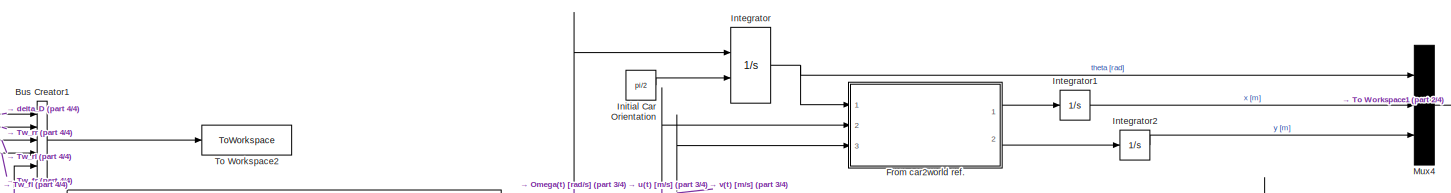
[diagram: Vehicle - part 1/4, top center region]
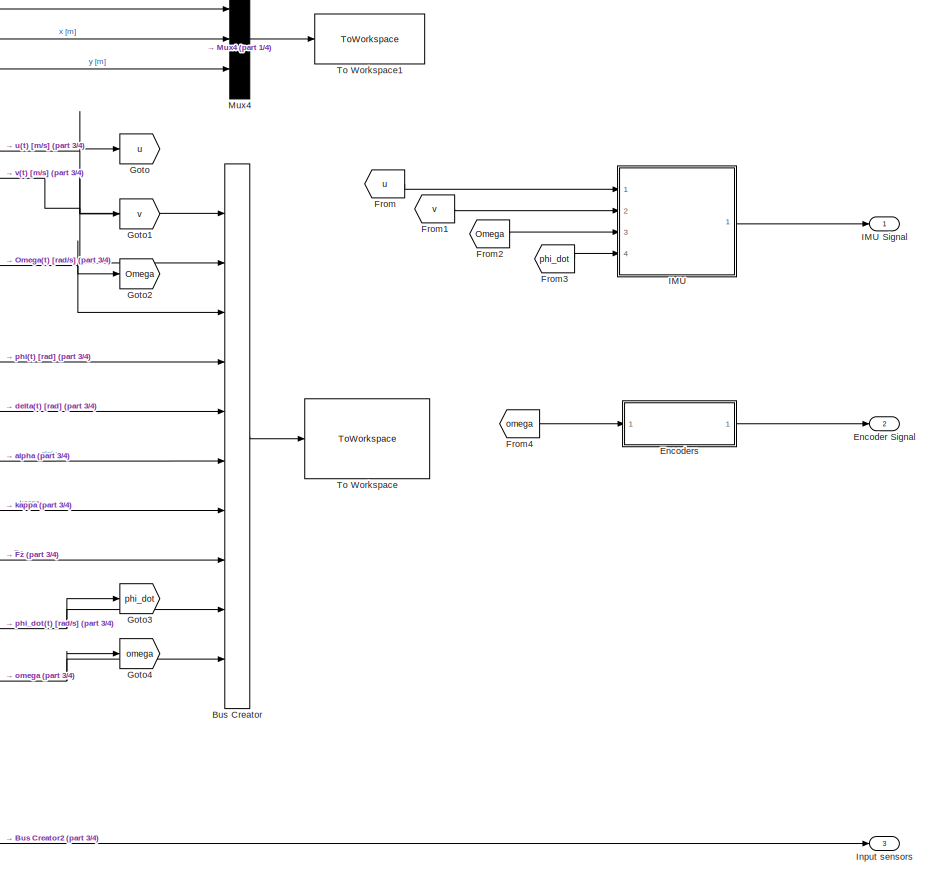
[diagram: Vehicle - part 2/4, middle right region]
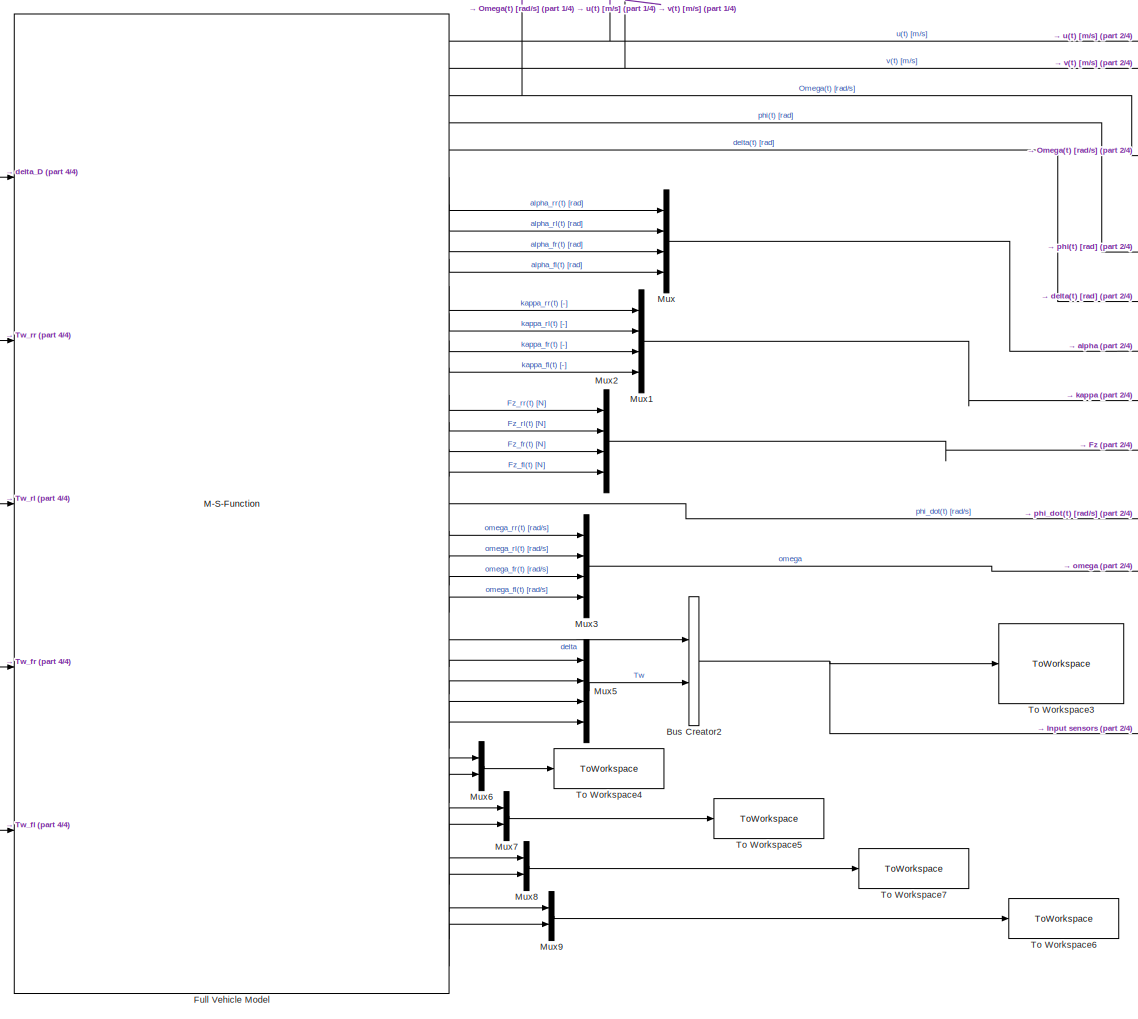
[diagram: Vehicle - part 3/4, center side, full height]
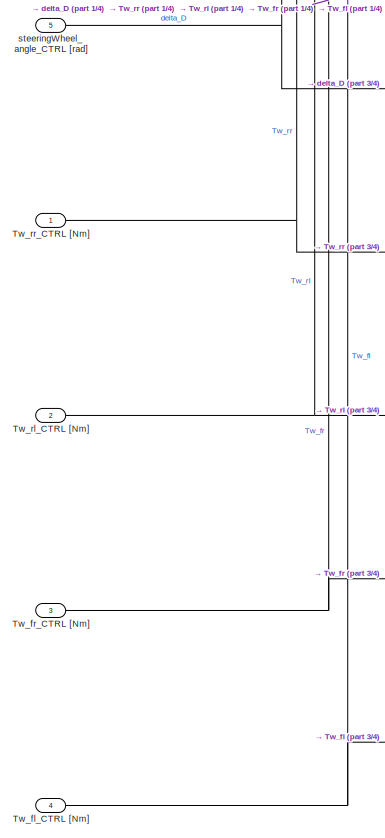
[diagram: Vehicle - part 4/4, middle left region]
BLOCK [SubSystem] Vehicle
  Ports = [5, 3]
  RequestExecContextInheritance = off
BLOCK [BusCreator] Vehicle/Bus Creator
  DisplayOption = bar
  InheritFromInputs = on
  Inputs = 10
  Ports = [10, 1]
BLOCK [BusCreator] Vehicle/Bus Creator1
  DisplayOption = bar
  InheritFromInputs = on
  Inputs = 5
  Ports = [5, 1]
BLOCK [BusCreator] Vehicle/Bus Creator2
  DisplayOption = bar
  InheritFromInputs = on
  Inputs = 2
  Ports = [2, 1]
BLOCK [Outport] Vehicle/Encoder Signal
  IconDisplay = Port number
  Port = 2
BLOCK [SubSystem] Vehicle/Encoders
  Ports = [1, 1]
  RequestExecContextInheritance = off
BLOCK [BusCreator] Vehicle/Encoders/Bus Creator
  DisplayOption = bar
  InheritFromInputs = on
  Inputs = 4
  Ports = [4, 1]
BLOCK [Demux] Vehicle/Encoders/Demux
  DisplayOption = bar
  Ports = [1, 4]
BLOCK [Outport] Vehicle/Encoders/Encoders
  IconDisplay = Port number
BLOCK [Inport] Vehicle/Encoders/omega [m//s]
  IconDisplay = Port number
BLOCK [From] Vehicle/From
  GotoTag = u
  TagVisibility = global
BLOCK [SubSystem] Vehicle/From car2world ref. 
  Ports = [3, 2]
  RequestExecContextInheritance = off
BLOCK [Sum] Vehicle/From car2world ref. /Add
  InputSameDT = off
  Inputs = +-
  OutDataTypeStr = Inherit: Inherit via internal rule
  Ports = [2, 1]
  SaturateOnIntegerOverflow = off
BLOCK [Sum] Vehicle/From car2world ref. /Add1
  InputSameDT = off
  OutDataTypeStr = Inherit: Inherit via internal rule
  Ports = [2, 1]
  SaturateOnIntegerOverflow = off
BLOCK [Product] Vehicle/From car2world ref. /Product
  InputSameDT = off
  OutDataTypeStr = Inherit: Inherit via internal rule
  Ports = [2, 1]
  RndMeth = Floor
  SaturateOnIntegerOverflow = off
BLOCK [Product] Vehicle/From car2world ref. /Product1
  InputSameDT = off
  OutDataTypeStr = Inherit: Inherit via internal rule
  Ports = [2, 1]
  RndMeth = Floor
  SaturateOnIntegerOverflow = off
BLOCK [Product] Vehicle/From car2world ref. /Product2
  InputSameDT = off
  OutDataTypeStr = Inherit: Inherit via internal rule
  Ports = [2, 1]
  RndMeth = Floor
  SaturateOnIntegerOverflow = off
BLOCK [Product] Vehicle/From car2world ref. /Product3
  InputSameDT = off
  OutDataTypeStr = Inherit: Inherit via internal rule
  Ports = [2, 1]
  RndMeth = Floor
  SaturateOnIntegerOverflow = off
BLOCK [Trigonometry] Vehicle/From car2world ref. /Trigonometric Function
  Operator = cos
  Ports = [1, 1]
BLOCK [Trigonometry] Vehicle/From car2world ref. /Trigonometric Function1
  Ports = [1, 1]
BLOCK [Outport] Vehicle/From car2world ref. /Vx
  IconDisplay = Port number
BLOCK [Outport] Vehicle/From car2world ref. /Vy
  IconDisplay = Port number
  Port = 2
BLOCK [Inport] Vehicle/From car2world ref. /theta
  IconDisplay = Port number
BLOCK [Inport] Vehicle/From car2world ref. /u
  IconDisplay = Port number
  Port = 2
BLOCK [Inport] Vehicle/From car2world ref. /v
  IconDisplay = Port number
  Port = 3
BLOCK [From] Vehicle/From1
  GotoTag = v
  TagVisibility = global
BLOCK [From] Vehicle/From2
  GotoTag = Omega
  TagVisibility = global
BLOCK [From] Vehicle/From3
  GotoTag = phi_dot
  TagVisibility = global
BLOCK [From] Vehicle/From4
  GotoTag = omega
  TagVisibility = global
BLOCK [M-S-Function] Vehicle/Full Vehicle Model
  FunctionName = FullVehicleModel_V3_sfun
  Parameters = vehicle_data, init_conditions_data, auxiliary_data
  Ports = [5, 35]
BLOCK [Goto] Vehicle/Goto
  GotoTag = u
  TagVisibility = global
BLOCK [Goto] Vehicle/Goto1
  GotoTag = v
  TagVisibility = global
BLOCK [Goto] Vehicle/Goto2
  GotoTag = Omega
  TagVisibility = global
BLOCK [Goto] Vehicle/Goto3
  GotoTag = phi_dot
  TagVisibility = global
BLOCK [Goto] Vehicle/Goto4
  GotoTag = omega
  TagVisibility = global
BLOCK [SubSystem] Vehicle/IMU
  Ports = [4, 1]
  RequestExecContextInheritance = off
BLOCK [Outport] Vehicle/IMU Signal
  IconDisplay = Port number
BLOCK [BusCreator] Vehicle/IMU/Bus Creator
  DisplayOption = bar
  InheritFromInputs = on
  Inputs = 4
  Ports = [4, 1]
BLOCK [Derivative] Vehicle/IMU/Derivative
BLOCK [Derivative] Vehicle/IMU/Derivative1
BLOCK [Outport] Vehicle/IMU/IMU
  IconDisplay = Port number
BLOCK [Integrator] Vehicle/IMU/Integrator
  InitialCondition = V_init/3.6
  Ports = [1, 1]
BLOCK [Memory] Vehicle/IMU/Memory
BLOCK [Inport] Vehicle/IMU/Omega [rad//s]
  IconDisplay = Port number
  Port = 3
BLOCK [Scope] Vehicle/IMU/Scope
  Floating = off
  NumInputPorts = 3
  Ports = [3]
  ScopeSpecificationString = Simulink.scopes.TimeScopeBlockCfg('CurrentConfiguration', extmgr.ConfigurationSet(extmgr.Configuration('Core','General UI',true),extmgr.Configuration('Core','Source UI',true),extmgr.Configuration('Sources','WiredSimulink',true,'DataLoggingVariableName','ScopeData1'),extmgr.Configuration('Visuals','Time Domain',true,'SerializedDisplays',{struct('MinYLimReal','4.71076','MaxYLimReal','14.90868','YLab...<+2766ch>
BLOCK [Inport] Vehicle/IMU/phi_dot [m//s]
  IconDisplay = Port number
  Port = 4
BLOCK [Inport] Vehicle/IMU/u [m//s]
  IconDisplay = Port number
BLOCK [Inport] Vehicle/IMU/v [m//s]
  IconDisplay = Port number
  Port = 2
BLOCK [Constant] Vehicle/Initial Car Orientation
  Value = pi/2
BLOCK [Outport] Vehicle/Input sensors
  IconDisplay = Port number
  Port = 3
BLOCK [Integrator] Vehicle/Integrator
  InitialConditionSource = external
  Ports = [2, 1]
BLOCK [Integrator] Vehicle/Integrator1
  Ports = [1, 1]
BLOCK [Integrator] Vehicle/Integrator2
  Ports = [1, 1]
BLOCK [Mux] Vehicle/Mux
  DisplayOption = bar
  Ports = [4, 1]
BLOCK [Mux] Vehicle/Mux1
  DisplayOption = bar
  Ports = [4, 1]
BLOCK [Mux] Vehicle/Mux2
  DisplayOption = bar
  Ports = [4, 1]
BLOCK [Mux] Vehicle/Mux3
  DisplayOption = bar
  Ports = [4, 1]
BLOCK [Mux] Vehicle/Mux4
  DisplayOption = bar
  Inputs = 3
  Ports = [3, 1]
BLOCK [Mux] Vehicle/Mux5
  DisplayOption = bar
  Ports = [4, 1]
BLOCK [Mux] Vehicle/Mux6
  DisplayOption = bar
  Inputs = 2
  Ports = [2, 1]
BLOCK [Mux] Vehicle/Mux7
  DisplayOption = bar
  Inputs = 2
  Ports = [2, 1]
BLOCK [Mux] Vehicle/Mux8
  DisplayOption = bar
  Inputs = 2
  Ports = [2, 1]
BLOCK [Mux] Vehicle/Mux9
  DisplayOption = bar
  Inputs = 2
  Ports = [2, 1]
BLOCK [ToWorkspace] Vehicle/To Workspace
  FixptAsFi = on
  MaxDataPoints = inf
  Ports = [1]
  SampleTime = -1
  SaveFormat = Timeseries
  VariableName = vehicle
BLOCK [ToWorkspace] Vehicle/To Workspace1
  FixptAsFi = on
  MaxDataPoints = inf
  Ports = [1]
  SampleTime = -1
  SaveFormat = Timeseries
  VariableName = trajectory
BLOCK [ToWorkspace] Vehicle/To Workspace2
  FixptAsFi = on
  MaxDataPoints = inf
  Ports = [1]
  SampleTime = -1
  SaveFormat = Timeseries
  VariableName = input_sim
BLOCK [ToWorkspace] Vehicle/To Workspace3
  FixptAsFi = on
  MaxDataPoints = inf
  Ports = [1]
  SampleTime = -1
  SaveFormat = Timeseries
  VariableName = filtered_input
BLOCK [ToWorkspace] Vehicle/To Workspace4
  FixptAsFi = on
  MaxDataPoints = inf
  Ports = [1]
  SampleTime = -1
  SaveFormat = Timeseries
  VariableName = force_rr
BLOCK [ToWorkspace] Vehicle/To Workspace5
  FixptAsFi = on
  MaxDataPoints = inf
  Ports = [1]
  SampleTime = -1
  SaveFormat = Timeseries
  VariableName = force_rl
BLOCK [ToWorkspace] Vehicle/To Workspace6
  FixptAsFi = on
  MaxDataPoints = inf
  Ports = [1]
  SampleTime = -1
  SaveFormat = Timeseries
  VariableName = force_fl
BLOCK [ToWorkspace] Vehicle/To Workspace7
  FixptAsFi = on
  MaxDataPoints = inf
  Ports = [1]
  SampleTime = -1
  SaveFormat = Timeseries
  VariableName = force_fr
BLOCK [Inport] Vehicle/Tw_fl_CTRL [Nm]
  IconDisplay = Port number
  Port = 4
BLOCK [Inport] Vehicle/Tw_fr_CTRL [Nm]
  IconDisplay = Port number
  Port = 3
BLOCK [Inport] Vehicle/Tw_rl_CTRL [Nm]
  IconDisplay = Port number
  Port = 2
BLOCK [Inport] Vehicle/Tw_rr_CTRL [Nm]
  IconDisplay = Port number
BLOCK [Inport] Vehicle/steeringWheel_angle_CTRL [rad]
  IconDisplay = Port number
  Port = 5
ANNOTATION (root): Modify this subsystem with your ABS controller
ANNOTATION (root): Modify this subsystem with your ESP controller
ANNOTATION (root): Sensors Block: you should feed back ONLY the sensor's signals to your controller (IMU, Ecoders and Measured Input)
ANNOTATION ABS and Wheel torque generation: Insert your ABS design in the following Subsystems
ANNOTATION ABS and Wheel torque generation/ABS Front Left Wheel: Controlled Braking Torque Tb
ANNOTATION ABS and Wheel torque generation/ABS Front Left Wheel/Subsystem: Condition 3: -if at low speed the emergency brake is still going then the controller applies a LPF version of the last value of the braking torque Tb=Tb_lpf*rho with rho<1
ANNOTATION ABS and Wheel torque generation/ABS Front Left Wheel/Subsystem: LPF -Used to filter the noisy signals with a cutoff frequency of w_cut = 100 [rad/s] -Used also to allow the derivative part of the PID to be proper
ANNOTATION ABS and Wheel torque generation/ABS Front Left Wheel/Subsystem: PID REGULATOR -Asymptotic stability -Performance -Distrubance Rejection (LPF)
ANNOTATION ABS and Wheel torque generation/ABS Front Left Wheel/Subsystem: Switch to choose which Tb has to be passed through
ANNOTATION ABS and Wheel torque generation/ABS Front Right Wheel: Controlled Braking Torque Tb
ANNOTATION ABS and Wheel torque generation/ABS Front Right Wheel/Subsystem: Condition 3: -if at low speed the emergency brake is still going then the controller applies a LPF version of the last value of the braking torque Tb=Tb_lpf*rho with rho<1
ANNOTATION ABS and Wheel torque generation/ABS Front Right Wheel/Subsystem: LPF -Used to filter the noisy signals with a cutoff frequency of w_cut = 100 [rad/s] -Used also to allow the derivative part of the PID to be proper
ANNOTATION ABS and Wheel torque generation/ABS Front Right Wheel/Subsystem: PID REGULATOR -Asymptotic stability -Performance -Distrubance Rejection (LPF)
ANNOTATION ABS and Wheel torque generation/ABS Front Right Wheel/Subsystem: Switch to choose which Tb has to be passed through
ANNOTATION ABS and Wheel torque generation/ABS Rear Left Wheel: Controlled Braking Torque Tb
ANNOTATION ABS and Wheel torque generation/ABS Rear Left Wheel/Subsystem: Condition 3: -if at low speed the emergency brake is still going then the controller applies a LPF version of the last value of the braking torque Tb=Tb_lpf*rho with rho<1
ANNOTATION ABS and Wheel torque generation/ABS Rear Left Wheel/Subsystem: LPF -Used to filter the noisy signals with a cutoff frequency of w_cut = 100 [rad/s] -Used also to allow the derivative part of the PID to be proper
ANNOTATION ABS and Wheel torque generation/ABS Rear Left Wheel/Subsystem: PID REGULATOR -Asymptotic stability -Performance -Distrubance Rejection (LPF)
ANNOTATION ABS and Wheel torque generation/ABS Rear Left Wheel/Subsystem: Switch to choose which Tb has to be passed through
ANNOTATION ABS and Wheel torque generation/ABS Rear Right Wheel: Controlled Braking Torque Tb
ANNOTATION ABS and Wheel torque generation/ABS Rear Right Wheel: Goes to activation logic
ANNOTATION ABS and Wheel torque generation/ABS Rear Right Wheel/Subsystem: Condition 3: -if at low speed the emergency brake is still going then the controller applies a LPF version of the last value of the braking torque Tb=Tb_lpf*rho with rho<1
ANNOTATION ABS and Wheel torque generation/ABS Rear Right Wheel/Subsystem: LPF -Used to filter the noisy signals with a cutoff frequency of w_cut = 100 [rad/s] -Used also to allow the derivative part of the PID to be proper
ANNOTATION ABS and Wheel torque generation/ABS Rear Right Wheel/Subsystem: PID REGULATOR -Asymptotic stability -Performance -Distrubance Rejection (LPF)
ANNOTATION ABS and Wheel torque generation/ABS Rear Right Wheel/Subsystem: Switch to choose which Tb has to be passed through
ANNOTATION ESP Controller: RETROACTION WITH MODEL AND PID
LINE ABS and Wheel torque generation/ABS Front Left Wheel/Bus Selector:1 -> ABS and Wheel torque generation/ABS Front Left Wheel/Integrator:1
LINE ABS and Wheel torque generation/ABS Front Left Wheel/Constant1:1 -> ABS and Wheel torque generation/ABS Front Left Wheel/Product1:1
LINE ABS and Wheel torque generation/ABS Front Left Wheel/Constant2:1 -> ABS and Wheel torque generation/ABS Front Left Wheel/Integrator1:2
LINE ABS and Wheel torque generation/ABS Front Left Wheel/Constant:1 -> ABS and Wheel torque generation/ABS Front Left Wheel/Product:1
LINE ABS and Wheel torque generation/ABS Front Left Wheel/Encoders:1 -> ABS and Wheel torque generation/ABS Front Left Wheel/Terminator1:1
NET ABS and Wheel torque generation/ABS Front Left Wheel/From IMU1:1 -> ABS and Wheel torque generation/ABS Front Left Wheel/MATLAB Function:3, ABS and Wheel torque generation/ABS Front Left Wheel/Scope2:1
LINE ABS and Wheel torque generation/ABS Front Left Wheel/From1:1 -> ABS and Wheel torque generation/ABS Front Left Wheel/G_caliper:1
LINE ABS and Wheel torque generation/ABS Front Left Wheel/From:1 -> ABS and Wheel torque generation/ABS Front Left Wheel/Product1:2
NET ABS and Wheel torque generation/ABS Front Left Wheel/Fz:1 -> ABS and Wheel torque generation/ABS Front Left Wheel/MATLAB Function:4, ABS and Wheel torque generation/ABS Front Left Wheel/Scope5:1
LINE ABS and Wheel torque generation/ABS Front Left Wheel/G_caliper:1 -> ABS and Wheel torque generation/ABS Front Left Wheel/Transport Delay:1
LINE ABS and Wheel torque generation/ABS Front Left Wheel/IMU:1 -> ABS and Wheel torque generation/ABS Front Left Wheel/Bus Selector:1
NET ABS and Wheel torque generation/ABS Front Left Wheel/Integrator1:1 -> ABS and Wheel torque generation/ABS Front Left Wheel/GoTo FEEBACK ABS :1, ABS and Wheel torque generation/ABS Front Left Wheel/MATLAB Function:1, ABS and Wheel torque generation/ABS Front Left Wheel/Scope7:1
LINE ABS and Wheel torque generation/ABS Front Left Wheel/Integrator:1 -> ABS and Wheel torque generation/ABS Front Left Wheel/Goto1:1
LINE ABS and Wheel torque generation/ABS Front Left Wheel/Lambda:1 -> ABS and Wheel torque generation/ABS Front Left Wheel/Subsystem:3
LINE ABS and Wheel torque generation/ABS Front Left Wheel/MATLAB Function:1 -> ABS and Wheel torque generation/ABS Front Left Wheel/Integrator1:1
LINE ABS and Wheel torque generation/ABS Front Left Wheel/Measured Input:1 -> ABS and Wheel torque generation/ABS Front Left Wheel/Terminator2:1
LINE ABS and Wheel torque generation/ABS Front Left Wheel/Product1:1 -> ABS and Wheel torque generation/ABS Front Left Wheel/Tw_rr_CTRL [Nm]:1
LINE ABS and Wheel torque generation/ABS Front Left Wheel/Product:1 -> ABS and Wheel torque generation/ABS Front Left Wheel/Goto:1
NET ABS and Wheel torque generation/ABS Front Left Wheel/Subsystem/Activation and Deactivation Logic1:1 -> ABS and Wheel torque generation/ABS Front Left Wheel/Subsystem/ABS_Selection_Number :1, ABS and Wheel torque generation/ABS Front Left Wheel/Subsystem/Compare To Constant:1, ABS and Wheel torque generation/ABS Front Left Wheel/Subsystem/Switch of Tb:1
LINE ABS and Wheel torque generation/ABS Front Left Wheel/Subsystem/Activation and Deactivation Logic1:2 -> ABS and Wheel torque generation/ABS Front Left Wheel/Subsystem/ABS_ON_CHECK:1
LINE ABS and Wheel torque generation/ABS Front Left Wheel/Subsystem/Compare To Constant:1 -> ABS and Wheel torque generation/ABS Front Left Wheel/Subsystem/Sample and Hold:trigger
LINE ABS and Wheel torque generation/ABS Front Left Wheel/Subsystem/Constant:1 -> ABS and Wheel torque generation/ABS Front Left Wheel/Subsystem/Product1:1
NET ABS and Wheel torque generation/ABS Front Left Wheel/Subsystem/Derivative1:1 -> ABS and Wheel torque generation/ABS Front Left Wheel/Subsystem/Activation and Deactivation Logic1:4, ABS and Wheel torque generation/ABS Front Left Wheel/Subsystem/Scope5:1
LINE ABS and Wheel torque generation/ABS Front Left Wheel/Subsystem/From IMU:1 -> ABS and Wheel torque generation/ABS Front Left Wheel/Subsystem/Activation and Deactivation Logic1:3
NET ABS and Wheel torque generation/ABS Front Left Wheel/Subsystem/From INPUT Tw_rr1:1 -> ABS and Wheel torque generation/ABS Front Left Wheel/Subsystem/Activation and Deactivation Logic1:1, ABS and Wheel torque generation/ABS Front Left Wheel/Subsystem/Scope:1
LINE ABS and Wheel torque generation/ABS Front Left Wheel/Subsystem/From INPUT Tw_rr:1 -> ABS and Wheel torque generation/ABS Front Left Wheel/Subsystem/Derivative1:1
NET ABS and Wheel torque generation/ABS Front Left Wheel/Subsystem/From Lambda:1 -> ABS and Wheel torque generation/ABS Front Left Wheel/Subsystem/Activation and Deactivation Logic1:6, ABS and Wheel torque generation/ABS Front Left Wheel/Subsystem/Scope1:1
NET ABS and Wheel torque generation/ABS Front Left Wheel/Subsystem/From Tb_Ctrl:1 -> ABS and Wheel torque generation/ABS Front Left Wheel/Subsystem/Scope3:1, ABS and Wheel torque generation/ABS Front Left Wheel/Subsystem/Switch of Tb:3
NET ABS and Wheel torque generation/ABS Front Left Wheel/Subsystem/From Tb_Dr:1 -> ABS and Wheel torque generation/ABS Front Left Wheel/Subsystem/Scope2:1, ABS and Wheel torque generation/ABS Front Left Wheel/Subsystem/Switch of Tb:2
LINE ABS and Wheel torque generation/ABS Front Left Wheel/Subsystem/From Tb_LPF:1 -> ABS and Wheel torque generation/ABS Front Left Wheel/Subsystem/Sample and Hold:1
LINE ABS and Wheel torque generation/ABS Front Left Wheel/Subsystem/From lambdaDyn:1 -> ABS and Wheel torque generation/ABS Front Left Wheel/Subsystem/Sum:1
NET ABS and Wheel torque generation/ABS Front Left Wheel/Subsystem/LPF:1 -> ABS and Wheel torque generation/ABS Front Left Wheel/Subsystem/Go toTb_LPF:1, ABS and Wheel torque generation/ABS Front Left Wheel/Subsystem/Scope7:1
LINE ABS and Wheel torque generation/ABS Front Left Wheel/Subsystem/Lambda REF:1 -> ABS and Wheel torque generation/ABS Front Left Wheel/Subsystem/Sum:2
LINE ABS and Wheel torque generation/ABS Front Left Wheel/Subsystem/Lambda:1 -> ABS and Wheel torque generation/ABS Front Left Wheel/Subsystem/Goto2:1
LINE ABS and Wheel torque generation/ABS Front Left Wheel/Subsystem/Memory:1 -> ABS and Wheel torque generation/ABS Front Left Wheel/Subsystem/Activation and Deactivation Logic1:5
LINE ABS and Wheel torque generation/ABS Front Left Wheel/Subsystem/PID:1 -> ABS and Wheel torque generation/ABS Front Left Wheel/Subsystem/Product1:2
NET ABS and Wheel torque generation/ABS Front Left Wheel/Subsystem/Product1:1 -> ABS and Wheel torque generation/ABS Front Left Wheel/Subsystem/Activation and Deactivation Logic1:2, ABS and Wheel torque generation/ABS Front Left Wheel/Subsystem/Go To TB_Ctrl:1, ABS and Wheel torque generation/ABS Front Left Wheel/Subsystem/LPF:1, ABS and Wheel torque generation/ABS Front Left Wheel/Subsystem/Scope6:1
LINE ABS and Wheel torque generation/ABS Front Left Wheel/Subsystem/Product:1 -> ABS and Wheel torque generation/ABS Front Left Wheel/Subsystem/Switch of Tb:4
NET ABS and Wheel torque generation/ABS Front Left Wheel/Subsystem/Sample and Hold:1 -> ABS and Wheel torque generation/ABS Front Left Wheel/Subsystem/Memory:1, ABS and Wheel torque generation/ABS Front Left Wheel/Subsystem/Product:1
NET ABS and Wheel torque generation/ABS Front Left Wheel/Subsystem/Saturation of Braking Torque Tb:1 -> ABS and Wheel torque generation/ABS Front Left Wheel/Subsystem/Scope4:1, ABS and Wheel torque generation/ABS Front Left Wheel/Subsystem/Tw_Ctrl:1
LINE ABS and Wheel torque generation/ABS Front Left Wheel/Subsystem/Sum:1 -> ABS and Wheel torque generation/ABS Front Left Wheel/Subsystem/PID:1
LINE ABS and Wheel torque generation/ABS Front Left Wheel/Subsystem/Switch of Tb:1 -> ABS and Wheel torque generation/ABS Front Left Wheel/Subsystem/Saturation of Braking Torque Tb:1
LINE ABS and Wheel torque generation/ABS Front Left Wheel/Subsystem/Tb_dr:1 -> ABS and Wheel torque generation/ABS Front Left Wheel/Subsystem/Goto:1
LINE ABS and Wheel torque generation/ABS Front Left Wheel/Subsystem/V_long :1 -> ABS and Wheel torque generation/ABS Front Left Wheel/Subsystem/Goto1:1
LINE ABS and Wheel torque generation/ABS Front Left Wheel/Subsystem/rho:1 -> ABS and Wheel torque generation/ABS Front Left Wheel/Subsystem/Product:2
LINE ABS and Wheel torque generation/ABS Front Left Wheel/Subsystem:1 -> ABS and Wheel torque generation/ABS Front Left Wheel/GOTO OUT:1
LINE ABS and Wheel torque generation/ABS Front Left Wheel/Tb_Dr:1 -> ABS and Wheel torque generation/ABS Front Left Wheel/Subsystem:1
NET ABS and Wheel torque generation/ABS Front Left Wheel/Transport Delay:1 -> ABS and Wheel torque generation/ABS Front Left Wheel/MATLAB Function:2, ABS and Wheel torque generation/ABS Front Left Wheel/Scope6:1
LINE ABS and Wheel torque generation/ABS Front Left Wheel/Tw_fl [Nm]:1 -> ABS and Wheel torque generation/ABS Front Left Wheel/Product:2
LINE ABS and Wheel torque generation/ABS Front Left Wheel/V_long:1 -> ABS and Wheel torque generation/ABS Front Left Wheel/Subsystem:2
LINE ABS and Wheel torque generation/ABS Front Left Wheel:1 -> ABS and Wheel torque generation/Tw_fl_CTRL [Nm]:1
LINE ABS and Wheel torque generation/ABS Front Right Wheel/Bus Selector:1 -> ABS and Wheel torque generation/ABS Front Right Wheel/Integrator:1
LINE ABS and Wheel torque generation/ABS Front Right Wheel/Constant1:1 -> ABS and Wheel torque generation/ABS Front Right Wheel/Product:1
LINE ABS and Wheel torque generation/ABS Front Right Wheel/Constant2:1 -> ABS and Wheel torque generation/ABS Front Right Wheel/Product1:2
LINE ABS and Wheel torque generation/ABS Front Right Wheel/Constant:1 -> ABS and Wheel torque generation/ABS Front Right Wheel/Integrator1:2
LINE ABS and Wheel torque generation/ABS Front Right Wheel/Encoders:1 -> ABS and Wheel torque generation/ABS Front Right Wheel/Terminator1:1
NET ABS and Wheel torque generation/ABS Front Right Wheel/From IMU1:1 -> ABS and Wheel torque generation/ABS Front Right Wheel/MATLAB Function:3, ABS and Wheel torque generation/ABS Front Right Wheel/Scope2:1
LINE ABS and Wheel torque generation/ABS Front Right Wheel/From1:1 -> ABS and Wheel torque generation/ABS Front Right Wheel/G_caliper:1
LINE ABS and Wheel torque generation/ABS Front Right Wheel/From:1 -> ABS and Wheel torque generation/ABS Front Right Wheel/Product1:1
NET ABS and Wheel torque generation/ABS Front Right Wheel/Fz:1 -> ABS and Wheel torque generation/ABS Front Right Wheel/MATLAB Function:4, ABS and Wheel torque generation/ABS Front Right Wheel/Scope5:1
LINE ABS and Wheel torque generation/ABS Front Right Wheel/G_caliper:1 -> ABS and Wheel torque generation/ABS Front Right Wheel/Transport Delay:1
LINE ABS and Wheel torque generation/ABS Front Right Wheel/IMU:1 -> ABS and Wheel torque generation/ABS Front Right Wheel/Bus Selector:1
NET ABS and Wheel torque generation/ABS Front Right Wheel/Integrator1:1 -> ABS and Wheel torque generation/ABS Front Right Wheel/GoTo FEEBACK ABS :1, ABS and Wheel torque generation/ABS Front Right Wheel/MATLAB Function:1, ABS and Wheel torque generation/ABS Front Right Wheel/Scope7:1
LINE ABS and Wheel torque generation/ABS Front Right Wheel/Integrator:1 -> ABS and Wheel torque generation/ABS Front Right Wheel/Goto:1
LINE ABS and Wheel torque generation/ABS Front Right Wheel/Lambda:1 -> ABS and Wheel torque generation/ABS Front Right Wheel/Subsystem:3
LINE ABS and Wheel torque generation/ABS Front Right Wheel/MATLAB Function:1 -> ABS and Wheel torque generation/ABS Front Right Wheel/Integrator1:1
LINE ABS and Wheel torque generation/ABS Front Right Wheel/Measured Input:1 -> ABS and Wheel torque generation/ABS Front Right Wheel/Terminator2:1
LINE ABS and Wheel torque generation/ABS Front Right Wheel/Product1:1 -> ABS and Wheel torque generation/ABS Front Right Wheel/Tw_rr_CTRL [Nm]:1
LINE ABS and Wheel torque generation/ABS Front Right Wheel/Product:1 -> ABS and Wheel torque generation/ABS Front Right Wheel/Saturation:1
LINE ABS and Wheel torque generation/ABS Front Right Wheel/Saturation:1 -> ABS and Wheel torque generation/ABS Front Right Wheel/Goto1:1
NET ABS and Wheel torque generation/ABS Front Right Wheel/Subsystem/Activation and Deactivation Logic1:1 -> ABS and Wheel torque generation/ABS Front Right Wheel/Subsystem/ABS_Selection_Number :1, ABS and Wheel torque generation/ABS Front Right Wheel/Subsystem/Compare To Constant:1, ABS and Wheel torque generation/ABS Front Right Wheel/Subsystem/Switch of Tb:1
LINE ABS and Wheel torque generation/ABS Front Right Wheel/Subsystem/Activation and Deactivation Logic1:2 -> ABS and Wheel torque generation/ABS Front Right Wheel/Subsystem/ABS_ON_CHECK:1
LINE ABS and Wheel torque generation/ABS Front Right Wheel/Subsystem/Compare To Constant:1 -> ABS and Wheel torque generation/ABS Front Right Wheel/Subsystem/Sample and Hold:trigger
LINE ABS and Wheel torque generation/ABS Front Right Wheel/Subsystem/Constant:1 -> ABS and Wheel torque generation/ABS Front Right Wheel/Subsystem/Product1:1
NET ABS and Wheel torque generation/ABS Front Right Wheel/Subsystem/Derivative1:1 -> ABS and Wheel torque generation/ABS Front Right Wheel/Subsystem/Activation and Deactivation Logic1:4, ABS and Wheel torque generation/ABS Front Right Wheel/Subsystem/Scope5:1
LINE ABS and Wheel torque generation/ABS Front Right Wheel/Subsystem/From IMU:1 -> ABS and Wheel torque generation/ABS Front Right Wheel/Subsystem/Activation and Deactivation Logic1:3
NET ABS and Wheel torque generation/ABS Front Right Wheel/Subsystem/From INPUT Tw_rr1:1 -> ABS and Wheel torque generation/ABS Front Right Wheel/Subsystem/Activation and Deactivation Logic1:1, ABS and Wheel torque generation/ABS Front Right Wheel/Subsystem/Scope:1
LINE ABS and Wheel torque generation/ABS Front Right Wheel/Subsystem/From INPUT Tw_rr:1 -> ABS and Wheel torque generation/ABS Front Right Wheel/Subsystem/Derivative1:1
NET ABS and Wheel torque generation/ABS Front Right Wheel/Subsystem/From Lambda:1 -> ABS and Wheel torque generation/ABS Front Right Wheel/Subsystem/Activation and Deactivation Logic1:6, ABS and Wheel torque generation/ABS Front Right Wheel/Subsystem/Scope1:1
NET ABS and Wheel torque generation/ABS Front Right Wheel/Subsystem/From Tb_Ctrl:1 -> ABS and Wheel torque generation/ABS Front Right Wheel/Subsystem/Scope3:1, ABS and Wheel torque generation/ABS Front Right Wheel/Subsystem/Switch of Tb:3
NET ABS and Wheel torque generation/ABS Front Right Wheel/Subsystem/From Tb_Dr:1 -> ABS and Wheel torque generation/ABS Front Right Wheel/Subsystem/Scope2:1, ABS and Wheel torque generation/ABS Front Right Wheel/Subsystem/Switch of Tb:2
LINE ABS and Wheel torque generation/ABS Front Right Wheel/Subsystem/From Tb_LPF:1 -> ABS and Wheel torque generation/ABS Front Right Wheel/Subsystem/Sample and Hold:1
LINE ABS and Wheel torque generation/ABS Front Right Wheel/Subsystem/From lambdaDyn:1 -> ABS and Wheel torque generation/ABS Front Right Wheel/Subsystem/Sum:1
NET ABS and Wheel torque generation/ABS Front Right Wheel/Subsystem/LPF:1 -> ABS and Wheel torque generation/ABS Front Right Wheel/Subsystem/Go toTb_LPF:1, ABS and Wheel torque generation/ABS Front Right Wheel/Subsystem/Scope7:1
LINE ABS and Wheel torque generation/ABS Front Right Wheel/Subsystem/Lambda REF:1 -> ABS and Wheel torque generation/ABS Front Right Wheel/Subsystem/Sum:2
LINE ABS and Wheel torque generation/ABS Front Right Wheel/Subsystem/Lambda:1 -> ABS and Wheel torque generation/ABS Front Right Wheel/Subsystem/Goto2:1
LINE ABS and Wheel torque generation/ABS Front Right Wheel/Subsystem/Memory:1 -> ABS and Wheel torque generation/ABS Front Right Wheel/Subsystem/Activation and Deactivation Logic1:5
LINE ABS and Wheel torque generation/ABS Front Right Wheel/Subsystem/PID:1 -> ABS and Wheel torque generation/ABS Front Right Wheel/Subsystem/Product1:2
NET ABS and Wheel torque generation/ABS Front Right Wheel/Subsystem/Product1:1 -> ABS and Wheel torque generation/ABS Front Right Wheel/Subsystem/Activation and Deactivation Logic1:2, ABS and Wheel torque generation/ABS Front Right Wheel/Subsystem/Go To TB_Ctrl:1, ABS and Wheel torque generation/ABS Front Right Wheel/Subsystem/LPF:1, ABS and Wheel torque generation/ABS Front Right Wheel/Subsystem/Scope6:1
LINE ABS and Wheel torque generation/ABS Front Right Wheel/Subsystem/Product:1 -> ABS and Wheel torque generation/ABS Front Right Wheel/Subsystem/Switch of Tb:4
NET ABS and Wheel torque generation/ABS Front Right Wheel/Subsystem/Sample and Hold:1 -> ABS and Wheel torque generation/ABS Front Right Wheel/Subsystem/Memory:1, ABS and Wheel torque generation/ABS Front Right Wheel/Subsystem/Product:1
NET ABS and Wheel torque generation/ABS Front Right Wheel/Subsystem/Saturation of Braking Torque Tb:1 -> ABS and Wheel torque generation/ABS Front Right Wheel/Subsystem/Scope4:1, ABS and Wheel torque generation/ABS Front Right Wheel/Subsystem/Tw_Ctrl:1
LINE ABS and Wheel torque generation/ABS Front Right Wheel/Subsystem/Sum:1 -> ABS and Wheel torque generation/ABS Front Right Wheel/Subsystem/PID:1
LINE ABS and Wheel torque generation/ABS Front Right Wheel/Subsystem/Switch of Tb:1 -> ABS and Wheel torque generation/ABS Front Right Wheel/Subsystem/Saturation of Braking Torque Tb:1
LINE ABS and Wheel torque generation/ABS Front Right Wheel/Subsystem/Tb_dr:1 -> ABS and Wheel torque generation/ABS Front Right Wheel/Subsystem/Goto:1
LINE ABS and Wheel torque generation/ABS Front Right Wheel/Subsystem/V_long :1 -> ABS and Wheel torque generation/ABS Front Right Wheel/Subsystem/Goto1:1
LINE ABS and Wheel torque generation/ABS Front Right Wheel/Subsystem/rho:1 -> ABS and Wheel torque generation/ABS Front Right Wheel/Subsystem/Product:2
LINE ABS and Wheel torque generation/ABS Front Right Wheel/Subsystem:1 -> ABS and Wheel torque generation/ABS Front Right Wheel/GOTO OUT:1
LINE ABS and Wheel torque generation/ABS Front Right Wheel/Tb_Dr:1 -> ABS and Wheel torque generation/ABS Front Right Wheel/Subsystem:1
NET ABS and Wheel torque generation/ABS Front Right Wheel/Transport Delay:1 -> ABS and Wheel torque generation/ABS Front Right Wheel/MATLAB Function:2, ABS and Wheel torque generation/ABS Front Right Wheel/Scope6:1
LINE ABS and Wheel torque generation/ABS Front Right Wheel/Tw_fr [Nm]:1 -> ABS and Wheel torque generation/ABS Front Right Wheel/Product:2
LINE ABS and Wheel torque generation/ABS Front Right Wheel/V_long:1 -> ABS and Wheel torque generation/ABS Front Right Wheel/Subsystem:2
LINE ABS and Wheel torque generation/ABS Front Right Wheel:1 -> ABS and Wheel torque generation/Tw_fr_CTRL [Nm]:1
LINE ABS and Wheel torque generation/ABS Rear Left Wheel/Bus Selector1:1 -> ABS and Wheel torque generation/ABS Rear Left Wheel/Goto2:1
LINE ABS and Wheel torque generation/ABS Rear Left Wheel/Bus Selector:1 -> ABS and Wheel torque generation/ABS Rear Left Wheel/Integrator:1
LINE ABS and Wheel torque generation/ABS Rear Left Wheel/Constant1:1 -> ABS and Wheel torque generation/ABS Rear Left Wheel/Product:1
LINE ABS and Wheel torque generation/ABS Rear Left Wheel/Constant2:1 -> ABS and Wheel torque generation/ABS Rear Left Wheel/Product1:2
LINE ABS and Wheel torque generation/ABS Rear Left Wheel/Constant:1 -> ABS and Wheel torque generation/ABS Rear Left Wheel/Integrator1:2
LINE ABS and Wheel torque generation/ABS Rear Left Wheel/Encoders:1 -> ABS and Wheel torque generation/ABS Rear Left Wheel/Bus Selector1:1
NET ABS and Wheel torque generation/ABS Rear Left Wheel/From IMU1:1 -> ABS and Wheel torque generation/ABS Rear Left Wheel/MATLAB Function:3, ABS and Wheel torque generation/ABS Rear Left Wheel/Scope2:1
LINE ABS and Wheel torque generation/ABS Rear Left Wheel/From1:1 -> ABS and Wheel torque generation/ABS Rear Left Wheel/G_caliper:1
NET ABS and Wheel torque generation/ABS Rear Left Wheel/Fz:1 -> ABS and Wheel torque generation/ABS Rear Left Wheel/MATLAB Function:4, ABS and Wheel torque generation/ABS Rear Left Wheel/Scope5:1
LINE ABS and Wheel torque generation/ABS Rear Left Wheel/G_caliper:1 -> ABS and Wheel torque generation/ABS Rear Left Wheel/Transport Delay:1
LINE ABS and Wheel torque generation/ABS Rear Left Wheel/IMU:1 -> ABS and Wheel torque generation/ABS Rear Left Wheel/Bus Selector:1
NET ABS and Wheel torque generation/ABS Rear Left Wheel/Integrator1:1 -> ABS and Wheel torque generation/ABS Rear Left Wheel/GoTo FEEBACK ABS :1, ABS and Wheel torque generation/ABS Rear Left Wheel/MATLAB Function:1, ABS and Wheel torque generation/ABS Rear Left Wheel/Scope7:1
NET ABS and Wheel torque generation/ABS Rear Left Wheel/Integrator:1 -> ABS and Wheel torque generation/ABS Rear Left Wheel/Goto1:1, ABS and Wheel torque generation/ABS Rear Left Wheel/Scope4:1
LINE ABS and Wheel torque generation/ABS Rear Left Wheel/Lambda:1 -> ABS and Wheel torque generation/ABS Rear Left Wheel/Subsystem:3
LINE ABS and Wheel torque generation/ABS Rear Left Wheel/MATLAB Function:1 -> ABS and Wheel torque generation/ABS Rear Left Wheel/Integrator1:1
LINE ABS and Wheel torque generation/ABS Rear Left Wheel/Measured Input:1 -> ABS and Wheel torque generation/ABS Rear Left Wheel/Terminator2:1
NET ABS and Wheel torque generation/ABS Rear Left Wheel/Product1:1 -> ABS and Wheel torque generation/ABS Rear Left Wheel/Scope1:1, ABS and Wheel torque generation/ABS Rear Left Wheel/Tw_rl_CTRL [Nm]:1
LINE ABS and Wheel torque generation/ABS Rear Left Wheel/Product:1 -> ABS and Wheel torque generation/ABS Rear Left Wheel/Goto:1
NET ABS and Wheel torque generation/ABS Rear Left Wheel/Subsystem/Activation and Deactivation Logic1:1 -> ABS and Wheel torque generation/ABS Rear Left Wheel/Subsystem/ABS_Selection_Number :1, ABS and Wheel torque generation/ABS Rear Left Wheel/Subsystem/Compare To Constant:1, ABS and Wheel torque generation/ABS Rear Left Wheel/Subsystem/Switch of Tb:1
LINE ABS and Wheel torque generation/ABS Rear Left Wheel/Subsystem/Activation and Deactivation Logic1:2 -> ABS and Wheel torque generation/ABS Rear Left Wheel/Subsystem/ABS_ON_CHECK:1
LINE ABS and Wheel torque generation/ABS Rear Left Wheel/Subsystem/Compare To Constant:1 -> ABS and Wheel torque generation/ABS Rear Left Wheel/Subsystem/Sample and Hold:trigger
LINE ABS and Wheel torque generation/ABS Rear Left Wheel/Subsystem/Constant:1 -> ABS and Wheel torque generation/ABS Rear Left Wheel/Subsystem/Product1:1
NET ABS and Wheel torque generation/ABS Rear Left Wheel/Subsystem/Derivative1:1 -> ABS and Wheel torque generation/ABS Rear Left Wheel/Subsystem/Activation and Deactivation Logic1:4, ABS and Wheel torque generation/ABS Rear Left Wheel/Subsystem/Scope5:1
LINE ABS and Wheel torque generation/ABS Rear Left Wheel/Subsystem/From IMU:1 -> ABS and Wheel torque generation/ABS Rear Left Wheel/Subsystem/Activation and Deactivation Logic1:3
NET ABS and Wheel torque generation/ABS Rear Left Wheel/Subsystem/From INPUT Tw_rr1:1 -> ABS and Wheel torque generation/ABS Rear Left Wheel/Subsystem/Activation and Deactivation Logic1:1, ABS and Wheel torque generation/ABS Rear Left Wheel/Subsystem/Scope:1
LINE ABS and Wheel torque generation/ABS Rear Left Wheel/Subsystem/From INPUT Tw_rr:1 -> ABS and Wheel torque generation/ABS Rear Left Wheel/Subsystem/Derivative1:1
NET ABS and Wheel torque generation/ABS Rear Left Wheel/Subsystem/From Lambda:1 -> ABS and Wheel torque generation/ABS Rear Left Wheel/Subsystem/Activation and Deactivation Logic1:6, ABS and Wheel torque generation/ABS Rear Left Wheel/Subsystem/Scope1:1
NET ABS and Wheel torque generation/ABS Rear Left Wheel/Subsystem/From Tb_Ctrl:1 -> ABS and Wheel torque generation/ABS Rear Left Wheel/Subsystem/Scope3:1, ABS and Wheel torque generation/ABS Rear Left Wheel/Subsystem/Switch of Tb:3
NET ABS and Wheel torque generation/ABS Rear Left Wheel/Subsystem/From Tb_Dr:1 -> ABS and Wheel torque generation/ABS Rear Left Wheel/Subsystem/Scope2:1, ABS and Wheel torque generation/ABS Rear Left Wheel/Subsystem/Switch of Tb:2
LINE ABS and Wheel torque generation/ABS Rear Left Wheel/Subsystem/From Tb_LPF:1 -> ABS and Wheel torque generation/ABS Rear Left Wheel/Subsystem/Sample and Hold:1
LINE ABS and Wheel torque generation/ABS Rear Left Wheel/Subsystem/From lambdaDyn:1 -> ABS and Wheel torque generation/ABS Rear Left Wheel/Subsystem/Sum:1
NET ABS and Wheel torque generation/ABS Rear Left Wheel/Subsystem/LPF:1 -> ABS and Wheel torque generation/ABS Rear Left Wheel/Subsystem/Go toTb_LPF:1, ABS and Wheel torque generation/ABS Rear Left Wheel/Subsystem/Scope7:1
LINE ABS and Wheel torque generation/ABS Rear Left Wheel/Subsystem/Lambda REF:1 -> ABS and Wheel torque generation/ABS Rear Left Wheel/Subsystem/Sum:2
LINE ABS and Wheel torque generation/ABS Rear Left Wheel/Subsystem/Lambda:1 -> ABS and Wheel torque generation/ABS Rear Left Wheel/Subsystem/Goto2:1
NET ABS and Wheel torque generation/ABS Rear Left Wheel/Subsystem/MATLAB Function:1 -> ABS and Wheel torque generation/ABS Rear Left Wheel/Subsystem/Activation and Deactivation Logic1:2, ABS and Wheel torque generation/ABS Rear Left Wheel/Subsystem/Go To TB_Ctrl:1, ABS and Wheel torque generation/ABS Rear Left Wheel/Subsystem/LPF:1, ABS and Wheel torque generation/ABS Rear Left Wheel/Subsystem/Scope6:1
LINE ABS and Wheel torque generation/ABS Rear Left Wheel/Subsystem/Memory:1 -> ABS and Wheel torque generation/ABS Rear Left Wheel/Subsystem/Activation and Deactivation Logic1:5
LINE ABS and Wheel torque generation/ABS Rear Left Wheel/Subsystem/PID:1 -> ABS and Wheel torque generation/ABS Rear Left Wheel/Subsystem/Product1:2
LINE ABS and Wheel torque generation/ABS Rear Left Wheel/Subsystem/Product1:1 -> ABS and Wheel torque generation/ABS Rear Left Wheel/Subsystem/MATLAB Function:1
LINE ABS and Wheel torque generation/ABS Rear Left Wheel/Subsystem/Product:1 -> ABS and Wheel torque generation/ABS Rear Left Wheel/Subsystem/Switch of Tb:4
NET ABS and Wheel torque generation/ABS Rear Left Wheel/Subsystem/Sample and Hold:1 -> ABS and Wheel torque generation/ABS Rear Left Wheel/Subsystem/Memory:1, ABS and Wheel torque generation/ABS Rear Left Wheel/Subsystem/Product:1
NET ABS and Wheel torque generation/ABS Rear Left Wheel/Subsystem/Saturation of Braking Torque Tb:1 -> ABS and Wheel torque generation/ABS Rear Left Wheel/Subsystem/Scope4:1, ABS and Wheel torque generation/ABS Rear Left Wheel/Subsystem/Tw_Ctrl:1
LINE ABS and Wheel torque generation/ABS Rear Left Wheel/Subsystem/Sum:1 -> ABS and Wheel torque generation/ABS Rear Left Wheel/Subsystem/PID:1
LINE ABS and Wheel torque generation/ABS Rear Left Wheel/Subsystem/Switch of Tb:1 -> ABS and Wheel torque generation/ABS Rear Left Wheel/Subsystem/Saturation of Braking Torque Tb:1
LINE ABS and Wheel torque generation/ABS Rear Left Wheel/Subsystem/Tb_dr:1 -> ABS and Wheel torque generation/ABS Rear Left Wheel/Subsystem/Goto:1
LINE ABS and Wheel torque generation/ABS Rear Left Wheel/Subsystem/V_long :1 -> ABS and Wheel torque generation/ABS Rear Left Wheel/Subsystem/Goto1:1
LINE ABS and Wheel torque generation/ABS Rear Left Wheel/Subsystem/rho:1 -> ABS and Wheel torque generation/ABS Rear Left Wheel/Subsystem/Product:2
LINE ABS and Wheel torque generation/ABS Rear Left Wheel/Subsystem:1 -> ABS and Wheel torque generation/ABS Rear Left Wheel/GOTO OUT:1
LINE ABS and Wheel torque generation/ABS Rear Left Wheel/Tb_Dr:1 -> ABS and Wheel torque generation/ABS Rear Left Wheel/Subsystem:1
NET ABS and Wheel torque generation/ABS Rear Left Wheel/Transport Delay:1 -> ABS and Wheel torque generation/ABS Rear Left Wheel/MATLAB Function:2, ABS and Wheel torque generation/ABS Rear Left Wheel/Scope6:1
LINE ABS and Wheel torque generation/ABS Rear Left Wheel/Tw_Ctrl:1 -> ABS and Wheel torque generation/ABS Rear Left Wheel/Product1:1
LINE ABS and Wheel torque generation/ABS Rear Left Wheel/Tw_rl [Nm]:1 -> ABS and Wheel torque generation/ABS Rear Left Wheel/Product:2
LINE ABS and Wheel torque generation/ABS Rear Left Wheel/V_long:1 -> ABS and Wheel torque generation/ABS Rear Left Wheel/Subsystem:2
LINE ABS and Wheel torque generation/ABS Rear Left Wheel:1 -> ABS and Wheel torque generation/Tw_rl_CTRL [Nm]:1
NET ABS and Wheel torque generation/ABS Rear Right Wheel/Bus Selector1:1 -> ABS and Wheel torque generation/ABS Rear Right Wheel/Goto1:1, ABS and Wheel torque generation/ABS Rear Right Wheel/Scope1:1
NET ABS and Wheel torque generation/ABS Rear Right Wheel/Bus Selector:1 -> ABS and Wheel torque generation/ABS Rear Right Wheel/Integrator:1, ABS and Wheel torque generation/ABS Rear Right Wheel/Scope3:1
LINE ABS and Wheel torque generation/ABS Rear Right Wheel/Constant1:1 -> ABS and Wheel torque generation/ABS Rear Right Wheel/Product:1
LINE ABS and Wheel torque generation/ABS Rear Right Wheel/Constant2:1 -> ABS and Wheel torque generation/ABS Rear Right Wheel/Product1:2
LINE ABS and Wheel torque generation/ABS Rear Right Wheel/Constant:1 -> ABS and Wheel torque generation/ABS Rear Right Wheel/Integrator1:2
LINE ABS and Wheel torque generation/ABS Rear Right Wheel/Derivative:1 -> ABS and Wheel torque generation/ABS Rear Right Wheel/MATLAB Function1:2
LINE ABS and Wheel torque generation/ABS Rear Right Wheel/Encoders:1 -> ABS and Wheel torque generation/ABS Rear Right Wheel/Bus Selector1:1
NET ABS and Wheel torque generation/ABS Rear Right Wheel/From IMU1:1 -> ABS and Wheel torque generation/ABS Rear Right Wheel/MATLAB Function:3, ABS and Wheel torque generation/ABS Rear Right Wheel/Scope2:1
NET ABS and Wheel torque generation/ABS Rear Right Wheel/From1:1 -> ABS and Wheel torque generation/ABS Rear Right Wheel/Derivative:1, ABS and Wheel torque generation/ABS Rear Right Wheel/G_caliper:1
LINE ABS and Wheel torque generation/ABS Rear Right Wheel/From:1 -> ABS and Wheel torque generation/ABS Rear Right Wheel/Product1:1
NET ABS and Wheel torque generation/ABS Rear Right Wheel/Fz:1 -> ABS and Wheel torque generation/ABS Rear Right Wheel/MATLAB Function:4, ABS and Wheel torque generation/ABS Rear Right Wheel/Scope5:1
LINE ABS and Wheel torque generation/ABS Rear Right Wheel/G_caliper:1 -> ABS and Wheel torque generation/ABS Rear Right Wheel/Transport Delay:1
LINE ABS and Wheel torque generation/ABS Rear Right Wheel/IMU:1 -> ABS and Wheel torque generation/ABS Rear Right Wheel/Bus Selector:1
NET ABS and Wheel torque generation/ABS Rear Right Wheel/Integrator1:1 -> ABS and Wheel torque generation/ABS Rear Right Wheel/GoTo FEEBACK ABS :1, ABS and Wheel torque generation/ABS Rear Right Wheel/MATLAB Function1:1, ABS and Wheel torque generation/ABS Rear Right Wheel/MATLAB Function:1, ABS and Wheel torque generation/ABS Rear Right Wheel/Scope7:1, ABS and Wheel torque generation/ABS Rear Right Wheel/lambda,Psi:1
NET ABS and Wheel torque generation/ABS Rear Right Wheel/Integrator:1 -> ABS and Wheel torque generation/ABS Rear Right Wheel/GoTo V_long :1, ABS and Wheel torque generation/ABS Rear Right Wheel/Scope4:1
LINE ABS and Wheel torque generation/ABS Rear Right Wheel/Lambda:1 -> ABS and Wheel torque generation/ABS Rear Right Wheel/Subsystem:3
LINE ABS and Wheel torque generation/ABS Rear Right Wheel/MATLAB Function1:1 -> ABS and Wheel torque generation/ABS Rear Right Wheel/Scope8:1
LINE ABS and Wheel torque generation/ABS Rear Right Wheel/MATLAB Function:1 -> ABS and Wheel torque generation/ABS Rear Right Wheel/Integrator1:1
LINE ABS and Wheel torque generation/ABS Rear Right Wheel/MATLAB Function:2 -> ABS and Wheel torque generation/ABS Rear Right Wheel/lambda,Psi:2
LINE ABS and Wheel torque generation/ABS Rear Right Wheel/Measured Input:1 -> ABS and Wheel torque generation/ABS Rear Right Wheel/Terminator2:1
NET ABS and Wheel torque generation/ABS Rear Right Wheel/Product1:1 -> ABS and Wheel torque generation/ABS Rear Right Wheel/Tw_Ctrl :1, ABS and Wheel torque generation/ABS Rear Right Wheel/Tw_rr_CTRL [Nm]:1
NET ABS and Wheel torque generation/ABS Rear Right Wheel/Product:1 -> ABS and Wheel torque generation/ABS Rear Right Wheel/GoTo Tb_Dr:1, ABS and Wheel torque generation/ABS Rear Right Wheel/Tw_rr:1
NET ABS and Wheel torque generation/ABS Rear Right Wheel/Subsystem/Activation and Deactivation Logic1:1 -> ABS and Wheel torque generation/ABS Rear Right Wheel/Subsystem/ABS_Selection_Number :1, ABS and Wheel torque generation/ABS Rear Right Wheel/Subsystem/Compare To Constant:1, ABS and Wheel torque generation/ABS Rear Right Wheel/Subsystem/Switch of Tb:1
LINE ABS and Wheel torque generation/ABS Rear Right Wheel/Subsystem/Activation and Deactivation Logic1:2 -> ABS and Wheel torque generation/ABS Rear Right Wheel/Subsystem/ABS_ON_CHECK:1
LINE ABS and Wheel torque generation/ABS Rear Right Wheel/Subsystem/Compare To Constant:1 -> ABS and Wheel torque generation/ABS Rear Right Wheel/Subsystem/Sample and Hold:trigger
LINE ABS and Wheel torque generation/ABS Rear Right Wheel/Subsystem/Constant:1 -> ABS and Wheel torque generation/ABS Rear Right Wheel/Subsystem/Product1:1
NET ABS and Wheel torque generation/ABS Rear Right Wheel/Subsystem/Derivative1:1 -> ABS and Wheel torque generation/ABS Rear Right Wheel/Subsystem/Activation and Deactivation Logic1:4, ABS and Wheel torque generation/ABS Rear Right Wheel/Subsystem/Scope5:1
LINE ABS and Wheel torque generation/ABS Rear Right Wheel/Subsystem/From IMU:1 -> ABS and Wheel torque generation/ABS Rear Right Wheel/Subsystem/Activation and Deactivation Logic1:3
NET ABS and Wheel torque generation/ABS Rear Right Wheel/Subsystem/From INPUT Tw_rr1:1 -> ABS and Wheel torque generation/ABS Rear Right Wheel/Subsystem/Activation and Deactivation Logic1:1, ABS and Wheel torque generation/ABS Rear Right Wheel/Subsystem/Scope:1
LINE ABS and Wheel torque generation/ABS Rear Right Wheel/Subsystem/From INPUT Tw_rr:1 -> ABS and Wheel torque generation/ABS Rear Right Wheel/Subsystem/Derivative1:1
NET ABS and Wheel torque generation/ABS Rear Right Wheel/Subsystem/From Lambda:1 -> ABS and Wheel torque generation/ABS Rear Right Wheel/Subsystem/Activation and Deactivation Logic1:6, ABS and Wheel torque generation/ABS Rear Right Wheel/Subsystem/Scope1:1
NET ABS and Wheel torque generation/ABS Rear Right Wheel/Subsystem/From Tb_Ctrl:1 -> ABS and Wheel torque generation/ABS Rear Right Wheel/Subsystem/Scope3:1, ABS and Wheel torque generation/ABS Rear Right Wheel/Subsystem/Switch of Tb:3
NET ABS and Wheel torque generation/ABS Rear Right Wheel/Subsystem/From Tb_Dr:1 -> ABS and Wheel torque generation/ABS Rear Right Wheel/Subsystem/Scope2:1, ABS and Wheel torque generation/ABS Rear Right Wheel/Subsystem/Switch of Tb:2
LINE ABS and Wheel torque generation/ABS Rear Right Wheel/Subsystem/From Tb_LPF:1 -> ABS and Wheel torque generation/ABS Rear Right Wheel/Subsystem/Sample and Hold:1
LINE ABS and Wheel torque generation/ABS Rear Right Wheel/Subsystem/From lambdaDyn:1 -> ABS and Wheel torque generation/ABS Rear Right Wheel/Subsystem/Sum:1
NET ABS and Wheel torque generation/ABS Rear Right Wheel/Subsystem/LPF:1 -> ABS and Wheel torque generation/ABS Rear Right Wheel/Subsystem/Go toTb_LPF:1, ABS and Wheel torque generation/ABS Rear Right Wheel/Subsystem/Scope7:1
LINE ABS and Wheel torque generation/ABS Rear Right Wheel/Subsystem/Lambda REF:1 -> ABS and Wheel torque generation/ABS Rear Right Wheel/Subsystem/Sum:2
LINE ABS and Wheel torque generation/ABS Rear Right Wheel/Subsystem/Lambda:1 -> ABS and Wheel torque generation/ABS Rear Right Wheel/Subsystem/Goto2:1
NET ABS and Wheel torque generation/ABS Rear Right Wheel/Subsystem/MATLAB Function:1 -> ABS and Wheel torque generation/ABS Rear Right Wheel/Subsystem/Activation and Deactivation Logic1:2, ABS and Wheel torque generation/ABS Rear Right Wheel/Subsystem/Go To TB_Ctrl:1, ABS and Wheel torque generation/ABS Rear Right Wheel/Subsystem/LPF:1, ABS and Wheel torque generation/ABS Rear Right Wheel/Subsystem/Scope6:1
LINE ABS and Wheel torque generation/ABS Rear Right Wheel/Subsystem/Memory:1 -> ABS and Wheel torque generation/ABS Rear Right Wheel/Subsystem/Activation and Deactivation Logic1:5
LINE ABS and Wheel torque generation/ABS Rear Right Wheel/Subsystem/PID1:1 -> ABS and Wheel torque generation/ABS Rear Right Wheel/Subsystem/Product1:2
LINE ABS and Wheel torque generation/ABS Rear Right Wheel/Subsystem/Product1:1 -> ABS and Wheel torque generation/ABS Rear Right Wheel/Subsystem/MATLAB Function:1
LINE ABS and Wheel torque generation/ABS Rear Right Wheel/Subsystem/Product:1 -> ABS and Wheel torque generation/ABS Rear Right Wheel/Subsystem/Switch of Tb:4
NET ABS and Wheel torque generation/ABS Rear Right Wheel/Subsystem/Sample and Hold:1 -> ABS and Wheel torque generation/ABS Rear Right Wheel/Subsystem/Memory:1, ABS and Wheel torque generation/ABS Rear Right Wheel/Subsystem/Product:1
NET ABS and Wheel torque generation/ABS Rear Right Wheel/Subsystem/Saturation of Braking Torque Tb:1 -> ABS and Wheel torque generation/ABS Rear Right Wheel/Subsystem/Scope4:1, ABS and Wheel torque generation/ABS Rear Right Wheel/Subsystem/Tw_Ctrl:1
NET ABS and Wheel torque generation/ABS Rear Right Wheel/Subsystem/Sum:1 -> ABS and Wheel torque generation/ABS Rear Right Wheel/Subsystem/PID1:1, ABS and Wheel torque generation/ABS Rear Right Wheel/Subsystem/Scope8:1
LINE ABS and Wheel torque generation/ABS Rear Right Wheel/Subsystem/Switch of Tb:1 -> ABS and Wheel torque generation/ABS Rear Right Wheel/Subsystem/Saturation of Braking Torque Tb:1
LINE ABS and Wheel torque generation/ABS Rear Right Wheel/Subsystem/Tb_dr:1 -> ABS and Wheel torque generation/ABS Rear Right Wheel/Subsystem/Goto:1
LINE ABS and Wheel torque generation/ABS Rear Right Wheel/Subsystem/V_long :1 -> ABS and Wheel torque generation/ABS Rear Right Wheel/Subsystem/Goto1:1
LINE ABS and Wheel torque generation/ABS Rear Right Wheel/Subsystem/rho:1 -> ABS and Wheel torque generation/ABS Rear Right Wheel/Subsystem/Product:2
LINE ABS and Wheel torque generation/ABS Rear Right Wheel/Subsystem:1 -> ABS and Wheel torque generation/ABS Rear Right Wheel/GOTO OUT:1
LINE ABS and Wheel torque generation/ABS Rear Right Wheel/Tb_Dr:1 -> ABS and Wheel torque generation/ABS Rear Right Wheel/Subsystem:1
NET ABS and Wheel torque generation/ABS Rear Right Wheel/Transport Delay:1 -> ABS and Wheel torque generation/ABS Rear Right Wheel/MATLAB Function:2, ABS and Wheel torque generation/ABS Rear Right Wheel/Scope6:1
LINE ABS and Wheel torque generation/ABS Rear Right Wheel/Tw_rr [Nm]:1 -> ABS and Wheel torque generation/ABS Rear Right Wheel/Product:2
LINE ABS and Wheel torque generation/ABS Rear Right Wheel/V_long:1 -> ABS and Wheel torque generation/ABS Rear Right Wheel/Subsystem:2
LINE ABS and Wheel torque generation/ABS Rear Right Wheel:1 -> ABS and Wheel torque generation/Tw_rr_CTRL [Nm]:1
NET ABS and Wheel torque generation/Accelerator/1-D Lookup Table:1 -> ABS and Wheel torque generation/Accelerator/Product:1, ABS and Wheel torque generation/Accelerator/Scope5:1
LINE ABS and Wheel torque generation/Accelerator/Add:1 -> ABS and Wheel torque generation/Accelerator/Signed Sqrt:1
NET ABS and Wheel torque generation/Accelerator/Constant:1 -> ABS and Wheel torque generation/Accelerator/Mux10:3, ABS and Wheel torque generation/Accelerator/Mux10:4
LINE ABS and Wheel torque generation/Accelerator/Fpedal [-]:1 -> ABS and Wheel torque generation/Accelerator/Saturation1:1
LINE ABS and Wheel torque generation/Accelerator/From1:1 -> ABS and Wheel torque generation/Accelerator/Math Function1:1
LINE ABS and Wheel torque generation/Accelerator/From:1 -> ABS and Wheel torque generation/Accelerator/Math Function:1
LINE ABS and Wheel torque generation/Accelerator/Math Function1:1 -> ABS and Wheel torque generation/Accelerator/Add:2
LINE ABS and Wheel torque generation/Accelerator/Math Function:1 -> ABS and Wheel torque generation/Accelerator/Add:1
NET ABS and Wheel torque generation/Accelerator/Mux10:1 -> ABS and Wheel torque generation/Accelerator/Scope3:1, ABS and Wheel torque generation/Accelerator/Tw [Nm]:1
NET ABS and Wheel torque generation/Accelerator/Product:1 -> ABS and Wheel torque generation/Accelerator/Mux10:1, ABS and Wheel torque generation/Accelerator/Mux10:2
LINE ABS and Wheel torque generation/Accelerator/Saturation1:1 -> ABS and Wheel torque generation/Accelerator/Product:2
NET ABS and Wheel torque generation/Accelerator/Signed Sqrt:1 -> ABS and Wheel torque generation/Accelerator/1-D Lookup Table:1, ABS and Wheel torque generation/Accelerator/Scope4:1
LINE ABS and Wheel torque generation/Accelerator:1 -> ABS and Wheel torque generation/Switch:1
LINE ABS and Wheel torque generation/Brake/Fpedal [-]:1 -> ABS and Wheel torque generation/Brake/Saturation:1
NET ABS and Wheel torque generation/Brake/Front Brake ratio:1 -> ABS and Wheel torque generation/Brake/Mux11:3, ABS and Wheel torque generation/Brake/Mux11:4
LINE ABS and Wheel torque generation/Brake/Max Brake Torque:1 -> ABS and Wheel torque generation/Brake/Rate Limiter:1
LINE ABS and Wheel torque generation/Brake/Mux11:1 -> ABS and Wheel torque generation/Brake/Tw [Nm]:1
NET ABS and Wheel torque generation/Brake/Rate Limiter:1 -> ABS and Wheel torque generation/Brake/Front Brake ratio:1, ABS and Wheel torque generation/Brake/Rear Brake ratio:1
NET ABS and Wheel torque generation/Brake/Rear Brake ratio:1 -> ABS and Wheel torque generation/Brake/Mux11:1, ABS and Wheel torque generation/Brake/Mux11:2
LINE ABS and Wheel torque generation/Brake/Saturation:1 -> ABS and Wheel torque generation/Brake/Max Brake Torque:1
LINE ABS and Wheel torque generation/Brake:1 -> ABS and Wheel torque generation/Switch:3
NET ABS and Wheel torque generation/Demux:1 -> ABS and Wheel torque generation/ABS Rear Right Wheel:1, ABS and Wheel torque generation/Scope6:1
LINE ABS and Wheel torque generation/Demux:2 -> ABS and Wheel torque generation/ABS Rear Left Wheel:1
LINE ABS and Wheel torque generation/Demux:3 -> ABS and Wheel torque generation/ABS Front Right Wheel:1
LINE ABS and Wheel torque generation/Demux:4 -> ABS and Wheel torque generation/ABS Front Left Wheel:1
NET ABS and Wheel torque generation/Encoders:1 -> ABS and Wheel torque generation/ABS Front Left Wheel:3, ABS and Wheel torque generation/ABS Front Right Wheel:3, ABS and Wheel torque generation/ABS Rear Left Wheel:3, ABS and Wheel torque generation/ABS Rear Right Wheel:3
NET ABS and Wheel torque generation/Fpedal [-]:1 -> ABS and Wheel torque generation/Accelerator:1, ABS and Wheel torque generation/Brake:1, ABS and Wheel torque generation/Switch:2
NET ABS and Wheel torque generation/IMU:1 -> ABS and Wheel torque generation/ABS Front Left Wheel:2, ABS and Wheel torque generation/ABS Front Right Wheel:2, ABS and Wheel torque generation/ABS Rear Left Wheel:2, ABS and Wheel torque generation/ABS Rear Right Wheel:2
NET ABS and Wheel torque generation/Measured Input:1 -> ABS and Wheel torque generation/ABS Front Left Wheel:4, ABS and Wheel torque generation/ABS Front Right Wheel:4, ABS and Wheel torque generation/ABS Rear Left Wheel:4, ABS and Wheel torque generation/ABS Rear Right Wheel:4
LINE ABS and Wheel torque generation/Switch:1 -> ABS and Wheel torque generation/Demux:1
LINE ABS and Wheel torque generation:1 -> Vehicle:1
LINE ABS and Wheel torque generation:2 -> Vehicle:2
LINE ABS and Wheel torque generation:3 -> Vehicle:3
LINE ABS and Wheel torque generation:4 -> Vehicle:4
LINE Add:1 -> Driver:1
LINE Driver/Ackermann steering:1 -> Driver/tau_D:1
NET Driver/Add1:1 -> Driver/Integrator:1, Driver/Proportional:1
LINE Driver/Add2:1 -> Driver/Saturation:1
LINE Driver/Add:1 -> Driver/Signed Sqrt:1
LINE Driver/Clock1:1 -> Driver/Switch1:2
LINE Driver/Clock:1 -> Driver/Switch:2
LINE Driver/Full Brake1:1 -> Driver/Switch1:1
LINE Driver/Full Brake:1 -> Driver/Switch:1
LINE Driver/Integral:1 -> Driver/Add2:1
LINE Driver/Integrator:1 -> Driver/Integral:1
LINE Driver/L [m]:1 -> Driver/Ackermann steering:1
LINE Driver/Math Function1:1 -> Driver/Add:2
LINE Driver/Math Function:1 -> Driver/Add:1
LINE Driver/Proportional:1 -> Driver/Add2:2
NET Driver/Saturation:1 -> Driver/Scope4:1, Driver/Switch:3
LINE Driver/Signed Sqrt:1 -> Driver/Add1:1
LINE Driver/Switch1:1 -> Driver/Add1:2
LINE Driver/Switch:1 -> Driver/Fpedal [-]:1
LINE Driver/V_desired [m//s]:1 -> Driver/Switch1:3
LINE Driver/rho [1//m]:1 -> Driver/Ackermann steering:2
LINE Driver/tau_D:1 -> Driver/steeringWheel_angle [rad]:1
LINE Driver/u [m//s]:1 -> Driver/Math Function:1
LINE Driver/v [m//s]:1 -> Driver/Math Function1:1
LINE Driver:1 -> ABS and Wheel torque generation:1
LINE Driver:2 -> ESP Controller:1
LINE ESP Controller/Bus Selector1:1 -> ESP Controller/U1:1
LINE ESP Controller/Bus Selector:1 -> ESP Controller/Integrator:1
LINE ESP Controller/Constant:1 -> ESP Controller/Divide:1
LINE ESP Controller/Divide1:1 -> ESP Controller/Divide2:1
LINE ESP Controller/Divide2:1 -> ESP Controller/Gain1:1
LINE ESP Controller/Divide:1 -> ESP Controller/Sum:2
LINE ESP Controller/Encoders:1 -> ESP Controller/Terminator1:1
LINE ESP Controller/Gain1:1 -> ESP Controller/Gain2:1
NET ESP Controller/Gain2:1 -> ESP Controller/U2:1, ESP Controller/steeringWheel_angle_CTRL [rad]:1
LINE ESP Controller/Gain:1 -> ESP Controller/Sum:1
LINE ESP Controller/IMU:1 -> ESP Controller/Bus Selector:1
NET ESP Controller/Integrator:1 -> ESP Controller/Divide2:2, ESP Controller/Divide:2, ESP Controller/Gain:1
LINE ESP Controller/Measured Input:1 -> ESP Controller/Bus Selector1:1
LINE ESP Controller/Sum:1 -> ESP Controller/Divide1:2
LINE ESP Controller/Transfer Fcn1:1 -> ESP Controller/Divide1:1
NET ESP Controller/steeringWheel_angle [rad]:1 -> ESP Controller/Transfer Fcn1:1, ESP Controller/U3:1
LINE ESP Controller:1 -> Vehicle:5
LINE Gain:1 -> Add:1
LINE Ramp-speed ramp for US test:1 -> Gain:1
LINE Road curvature/1//(tau_D)1:1 -> Road curvature/Multiport Switch:3
LINE Road curvature/1//(tau_D)2:1 -> Road curvature/Multiport Switch:4
LINE Road curvature/1//(tau_D):1 -> Road curvature/Multiport Switch:2
LINE Road curvature/Brake Maneuver:1 -> Road curvature/1//(tau_D):1
LINE Road curvature/Constant curvature Maneuver:1 -> Road curvature/1//(tau_D)2:1
LINE Road curvature/Desired curvature  [1//m]:1 -> Road curvature/Product:2
LINE Road curvature/Double Lane Change Maneuver:1 -> Road curvature/1//(tau_D)1:1
LINE Road curvature/Maneuver Flag:1 -> Road curvature/Multiport Switch:1
LINE Road curvature/Multiport Switch:1 -> Road curvature/rho [1//m]:1
LINE Road curvature/Product:1 -> Road curvature/Multiport Switch:5
LINE Road curvature/Step:1 -> Road curvature/Product:1
LINE Road curvature:1 -> Driver:2
LINE V_desired [m//s]:1 -> Add:2
LINE Vehicle/Bus Creator1:1 -> Vehicle/To Workspace2:1
NET Vehicle/Bus Creator2:1 -> Vehicle/Input sensors:1, Vehicle/To Workspace3:1
LINE Vehicle/Bus Creator:1 -> Vehicle/To Workspace:1
LINE Vehicle/Encoders/Bus Creator:1 -> Vehicle/Encoders/Encoders:1
LINE Vehicle/Encoders/Demux:1 -> Vehicle/Encoders/Bus Creator:1
LINE Vehicle/Encoders/Demux:2 -> Vehicle/Encoders/Bus Creator:2
LINE Vehicle/Encoders/Demux:3 -> Vehicle/Encoders/Bus Creator:3
LINE Vehicle/Encoders/Demux:4 -> Vehicle/Encoders/Bus Creator:4
LINE Vehicle/Encoders/omega [m//s]:1 -> Vehicle/Encoders/Demux:1
LINE Vehicle/Encoders:1 -> Vehicle/Encoder Signal:1
LINE Vehicle/From car2world ref. /Add1:1 -> Vehicle/From car2world ref. /Vy:1
LINE Vehicle/From car2world ref. /Add:1 -> Vehicle/From car2world ref. /Vx:1
LINE Vehicle/From car2world ref. /Product1:1 -> Vehicle/From car2world ref. /Add:2
LINE Vehicle/From car2world ref. /Product2:1 -> Vehicle/From car2world ref. /Add1:2
LINE Vehicle/From car2world ref. /Product3:1 -> Vehicle/From car2world ref. /Add1:1
LINE Vehicle/From car2world ref. /Product:1 -> Vehicle/From car2world ref. /Add:1
NET Vehicle/From car2world ref. /Trigonometric Function1:1 -> Vehicle/From car2world ref. /Product1:1, Vehicle/From car2world ref. /Product2:2
NET Vehicle/From car2world ref. /Trigonometric Function:1 -> Vehicle/From car2world ref. /Product3:1, Vehicle/From car2world ref. /Product:2
NET Vehicle/From car2world ref. /theta:1 -> Vehicle/From car2world ref. /Trigonometric Function1:1, Vehicle/From car2world ref. /Trigonometric Function:1
NET Vehicle/From car2world ref. /u:1 -> Vehicle/From car2world ref. /Product2:1, Vehicle/From car2world ref. /Product:1
NET Vehicle/From car2world ref. /v:1 -> Vehicle/From car2world ref. /Product1:2, Vehicle/From car2world ref. /Product3:2
LINE Vehicle/From car2world ref. :1 -> Vehicle/Integrator1:1
LINE Vehicle/From car2world ref. :2 -> Vehicle/Integrator2:1
LINE Vehicle/From1:1 -> Vehicle/IMU:2
LINE Vehicle/From2:1 -> Vehicle/IMU:3
LINE Vehicle/From3:1 -> Vehicle/IMU:4
LINE Vehicle/From4:1 -> Vehicle/Encoders:1
LINE Vehicle/From:1 -> Vehicle/IMU:1
NET Vehicle/Full Vehicle Model:1 -> Vehicle/Bus Creator:1, Vehicle/From car2world ref. :2, Vehicle/Goto:1
LINE Vehicle/Full Vehicle Model:10 -> Vehicle/Mux1:1
LINE Vehicle/Full Vehicle Model:11 -> Vehicle/Mux1:2
LINE Vehicle/Full Vehicle Model:12 -> Vehicle/Mux1:3
LINE Vehicle/Full Vehicle Model:13 -> Vehicle/Mux1:4
LINE Vehicle/Full Vehicle Model:14 -> Vehicle/Mux2:1
LINE Vehicle/Full Vehicle Model:15 -> Vehicle/Mux2:2
LINE Vehicle/Full Vehicle Model:16 -> Vehicle/Mux2:3
LINE Vehicle/Full Vehicle Model:17 -> Vehicle/Mux2:4
NET Vehicle/Full Vehicle Model:18 -> Vehicle/Bus Creator:9, Vehicle/Goto3:1
LINE Vehicle/Full Vehicle Model:19 -> Vehicle/Mux3:1
NET Vehicle/Full Vehicle Model:2 -> Vehicle/Bus Creator:2, Vehicle/From car2world ref. :3, Vehicle/Goto1:1
LINE Vehicle/Full Vehicle Model:20 -> Vehicle/Mux3:2
LINE Vehicle/Full Vehicle Model:21 -> Vehicle/Mux3:3
LINE Vehicle/Full Vehicle Model:22 -> Vehicle/Mux3:4
LINE Vehicle/Full Vehicle Model:23 -> Vehicle/Bus Creator2:1
LINE Vehicle/Full Vehicle Model:24 -> Vehicle/Mux5:1
LINE Vehicle/Full Vehicle Model:25 -> Vehicle/Mux5:2
LINE Vehicle/Full Vehicle Model:26 -> Vehicle/Mux5:3
LINE Vehicle/Full Vehicle Model:27 -> Vehicle/Mux5:4
LINE Vehicle/Full Vehicle Model:28 -> Vehicle/Mux6:1
LINE Vehicle/Full Vehicle Model:29 -> Vehicle/Mux6:2
NET Vehicle/Full Vehicle Model:3 -> Vehicle/Bus Creator:3, Vehicle/Goto2:1, Vehicle/Integrator:1
LINE Vehicle/Full Vehicle Model:30 -> Vehicle/Mux7:1
LINE Vehicle/Full Vehicle Model:31 -> Vehicle/Mux7:2
LINE Vehicle/Full Vehicle Model:32 -> Vehicle/Mux8:1
LINE Vehicle/Full Vehicle Model:33 -> Vehicle/Mux8:2
LINE Vehicle/Full Vehicle Model:34 -> Vehicle/Mux9:1
LINE Vehicle/Full Vehicle Model:35 -> Vehicle/Mux9:2
LINE Vehicle/Full Vehicle Model:4 -> Vehicle/Bus Creator:4
LINE Vehicle/Full Vehicle Model:5 -> Vehicle/Bus Creator:5
LINE Vehicle/Full Vehicle Model:6 -> Vehicle/Mux:1
LINE Vehicle/Full Vehicle Model:7 -> Vehicle/Mux:2
LINE Vehicle/Full Vehicle Model:8 -> Vehicle/Mux:3
LINE Vehicle/Full Vehicle Model:9 -> Vehicle/Mux:4
LINE Vehicle/IMU/Bus Creator:1 -> Vehicle/IMU/IMU:1
LINE Vehicle/IMU/Derivative1:1 -> Vehicle/IMU/Bus Creator:2
LINE Vehicle/IMU/Derivative:1 -> Vehicle/IMU/Memory:1
LINE Vehicle/IMU/Integrator:1 -> Vehicle/IMU/Scope:2
NET Vehicle/IMU/Memory:1 -> Vehicle/IMU/Bus Creator:1, Vehicle/IMU/Integrator:1, Vehicle/IMU/Scope:3
LINE Vehicle/IMU/Omega [rad//s]:1 -> Vehicle/IMU/Bus Creator:3
LINE Vehicle/IMU/phi_dot [m//s]:1 -> Vehicle/IMU/Bus Creator:4
NET Vehicle/IMU/u [m//s]:1 -> Vehicle/IMU/Derivative:1, Vehicle/IMU/Scope:1
LINE Vehicle/IMU/v [m//s]:1 -> Vehicle/IMU/Derivative1:1
LINE Vehicle/IMU:1 -> Vehicle/IMU Signal:1
LINE Vehicle/Initial Car Orientation:1 -> Vehicle/Integrator:2
LINE Vehicle/Integrator1:1 -> Vehicle/Mux4:2
LINE Vehicle/Integrator2:1 -> Vehicle/Mux4:3
NET Vehicle/Integrator:1 -> Vehicle/From car2world ref. :1, Vehicle/Mux4:1
LINE Vehicle/Mux1:1 -> Vehicle/Bus Creator:7
LINE Vehicle/Mux2:1 -> Vehicle/Bus Creator:8
NET Vehicle/Mux3:1 -> Vehicle/Bus Creator:10, Vehicle/Goto4:1
LINE Vehicle/Mux4:1 -> Vehicle/To Workspace1:1
LINE Vehicle/Mux5:1 -> Vehicle/Bus Creator2:2
LINE Vehicle/Mux6:1 -> Vehicle/To Workspace4:1
LINE Vehicle/Mux7:1 -> Vehicle/To Workspace5:1
LINE Vehicle/Mux8:1 -> Vehicle/To Workspace7:1
LINE Vehicle/Mux9:1 -> Vehicle/To Workspace6:1
LINE Vehicle/Mux:1 -> Vehicle/Bus Creator:6
NET Vehicle/Tw_fl_CTRL [Nm]:1 -> Vehicle/Bus Creator1:5, Vehicle/Full Vehicle Model:5
NET Vehicle/Tw_fr_CTRL [Nm]:1 -> Vehicle/Bus Creator1:4, Vehicle/Full Vehicle Model:4
NET Vehicle/Tw_rl_CTRL [Nm]:1 -> Vehicle/Bus Creator1:3, Vehicle/Full Vehicle Model:3
NET Vehicle/Tw_rr_CTRL [Nm]:1 -> Vehicle/Bus Creator1:2, Vehicle/Full Vehicle Model:2
NET Vehicle/steeringWheel_angle_CTRL [rad]:1 -> Vehicle/Bus Creator1:1, Vehicle/Full Vehicle Model:1
NET Vehicle:1 -> ABS and Wheel torque generation:2, ESP Controller:2, IMU:1
NET Vehicle:2 -> ABS and Wheel torque generation:3, ESP Controller:3, Encoders:1
NET Vehicle:3 -> ABS and Wheel torque generation:4, ESP Controller:4, Measured Input:1
note: NET lines group one-source signal fan-out (src -> all destinations, sorted); 1:1 wires keep LINE
CHART ABS and Wheel torque generation/ABS Rear Left Wheel/MATLAB Function states=1 transitions=1
  STATE_LABEL 'eML_blk_kernel()'
  STATE_LABEL 'SCRIPT:\nfunction RHS = lambdaDyn(lambda,Tb,v,vehicle_data,Fz)\n\nomega = (1-lambda)*v/vehicle_data.rear_wheel.Rr;\n\n%Psi = (vehicle_data.rear_wheel.Rr+vehicle_data.rear_wheel.iwd_r/(vehicle_data.rear_wheel.iwd_r*vehicle_data.vehicle.m)*(1-lambda))*Fz*1.2*burckhardt(lambda,1);\nPsi=vehicle_data.rear_wheel.Rr*Fz*burckhardt(lambda,1);\n\nif omega<=1\n    RHS=0;\nelse\n    RHS=-((1-lambda)/(vehicle_data.rear_w...<+38ch>'
CHART ABS and Wheel torque generation/ABS Rear Right Wheel/MATLAB Function states=1 transitions=1
  STATE_LABEL 'eML_blk_kernel()'
  STATE_LABEL 'SCRIPT:\nfunction [RHS,Psi]= lambdaDyn(lambda,Tb,v,vehicle_data,Fz)\n\nomega = (1-lambda)*v/vehicle_data.rear_wheel.Rr;\n\n%Psi = (vehicle_data.rear_wheel.Rr+vehicle_data.rear_wheel.iwd_r/(vehicle_data.rear_wheel.iwd_r*vehicle_data.vehicle.m)*(1-lambda))*Fz*1.258*burckhardt(lambda,1);\nPsi=vehicle_data.rear_wheel.Rr*Fz*burckhardt(lambda,1);\n\nif omega<=1\n    RHS=0;\nelse\n    RHS=-((1-lambda)/(vehicle_data...<+45ch>'
CHART ABS and Wheel torque generation/ABS Rear Left Wheel/Subsystem/Activation and Deactivation Logic1 states=4 transitions=7
  STATE_LABEL 'High_Speed_ON\nentry: Tb_select = 2;\nentry: ABS_ON = true;'
  STATE_LABEL 'High_Speed_OFF\nentry: Tb_select = 1;\nentry: ABS_ON = false;'
  STATE_LABEL 'Low_Speed_ON\nentry: Tb_select = 3;\nentry: ABS_ON = true;'
  STATE_LABEL 'Low_Speed_OFF\nentry: Tb_select = 1;\nentry: ABS_ON = false;'
CHART ABS and Wheel torque generation/ABS Front Right Wheel/MATLAB Function states=1 transitions=1
  STATE_LABEL 'eML_blk_kernel()'
  STATE_LABEL 'SCRIPT:\nfunction RHS = lambdaDyn(lambda,Tb,v,vehicle_data,Fz)\n\nomega = (1-lambda)*v/vehicle_data.front_wheel.Rf;\n\nPsi = (vehicle_data.front_wheel.Rf+vehicle_data.front_wheel.iwd_f/(vehicle_data.front_wheel.iwd_f*vehicle_data.vehicle.m)*(1-lambda))*Fz*1.5*burckhardt(lambda,1);\n\nif omega<=1\n    RHS=0;\nelse\n    RHS=-((1-lambda)/(vehicle_data.front_wheel.iwd_f*omega))*(Psi-Tb);\nend\n\nend\n'
CHART ABS and Wheel torque generation/ABS Front Right Wheel/Subsystem/Activation and Deactivation Logic1 states=4 transitions=7
  STATE_LABEL 'High_Speed_ON\nentry: Tb_select = 2;\nentry: ABS_ON = true;'
  STATE_LABEL 'High_Speed_OFF\nentry: Tb_select = 1;\nentry: ABS_ON = false;'
  STATE_LABEL 'Low_Speed_ON\nentry: Tb_select = 3;\nentry: ABS_ON = true;'
  STATE_LABEL 'Low_Speed_OFF\nentry: Tb_select = 1;\nentry: ABS_ON = false;'
CHART ABS and Wheel torque generation/ABS Rear Right Wheel/Subsystem/Activation and Deactivation Logic1 states=4 transitions=7
  STATE_LABEL 'High_Speed_ON\nentry: Tb_select = 2;\nentry: ABS_ON = true;'
  STATE_LABEL 'High_Speed_OFF\nentry: Tb_select = 1;\nentry: ABS_ON = false;'
  STATE_LABEL 'Low_Speed_ON\nentry: Tb_select = 3;\nentry: ABS_ON = true;'
  STATE_LABEL 'Low_Speed_OFF\nentry: Tb_select = 1;\nentry: ABS_ON = false;'
CHART ABS and Wheel torque generation/ABS Front Left Wheel/MATLAB Function states=1 transitions=1
  STATE_LABEL 'eML_blk_kernel()'
  STATE_LABEL 'SCRIPT:\nfunction RHS = lambdaDyn(lambda,Tb,v,vehicle_data,Fz)\n\nomega = (1-lambda)*v/vehicle_data.front_wheel.Rf;\n\nPsi = (vehicle_data.front_wheel.Rf+vehicle_data.front_wheel.iwd_f/(vehicle_data.front_wheel.iwd_f*vehicle_data.vehicle.m)*(1-lambda))*Fz*1.5*burckhardt(lambda,1);\n\nif omega<=1\n    RHS=0;\nelse\n    RHS=-((1-lambda)/(vehicle_data.front_wheel.iwd_f*omega))*(Psi-Tb);\nend\n\nend\n'
CHART ABS and Wheel torque generation/ABS Front Left Wheel/Subsystem/Activation and Deactivation Logic1 states=4 transitions=7
  STATE_LABEL 'High_Speed_ON\nentry: Tb_select = 2;\nentry: ABS_ON = true;'
  STATE_LABEL 'High_Speed_OFF\nentry: Tb_select = 1;\nentry: ABS_ON = false;'
  STATE_LABEL 'Low_Speed_ON\nentry: Tb_select = 3;\nentry: ABS_ON = true;'
  STATE_LABEL 'Low_Speed_OFF\nentry: Tb_select = 1;\nentry: ABS_ON = false;'
CHART ABS and Wheel torque generation/ABS Rear Left Wheel/Subsystem/MATLAB Function states=1 transitions=1
  STATE_LABEL 'eML_blk_kernel()'
  STATE_LABEL 'SCRIPT:\nfunction Tb_Ctrl = biasedTb(Tb,t_brake)\n\n\nTb_Ctrl = (3-t_brake)*160+Tb;\nend\n'
CHART ABS and Wheel torque generation/ABS Rear Right Wheel/MATLAB Function1 states=1 transitions=1
  STATE_LABEL 'eML_blk_kernel()'
  STATE_LABEL 'SCRIPT:\nfunction ex = lambdacheck(lambda,Tb_dot,parametri_ABS)\n\nif lambda > parametri_ABS.lambda1_th - ((parametri_ABS.lambda1_th - parametri_ABS.lambda2_th)/7000)*Tb_dot\n    ex=1;\nelse\n    ex=0;\nend \n'
CHART ABS and Wheel torque generation/ABS Rear Right Wheel/Subsystem/MATLAB Function states=1 transitions=1
  STATE_LABEL 'eML_blk_kernel()'
  STATE_LABEL 'SCRIPT:\nfunction Tb_Ctrl = biasedTb(Tb,t_brake)\n\n\nTb_Ctrl = (3-t_brake)*160+Tb;\nend\n'
